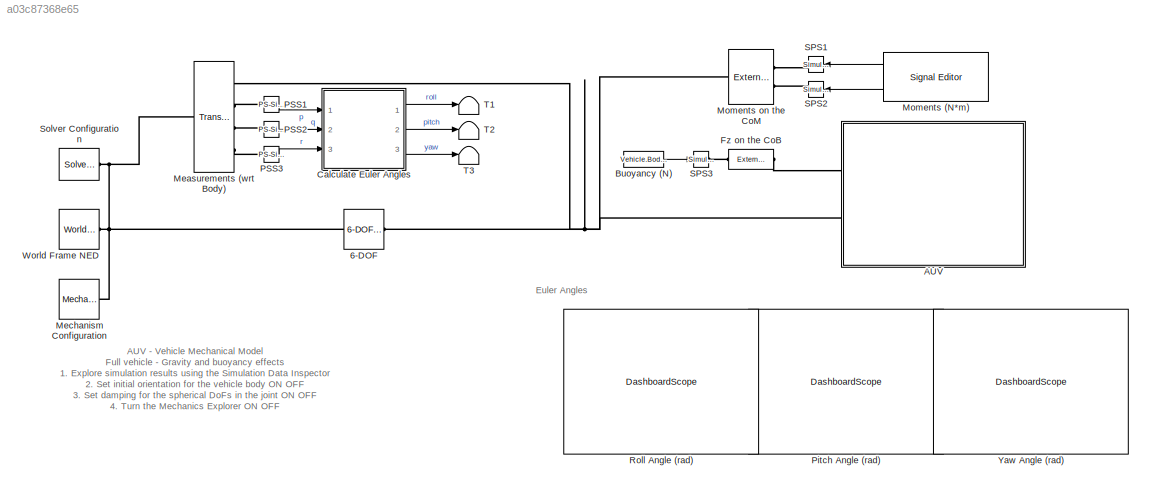
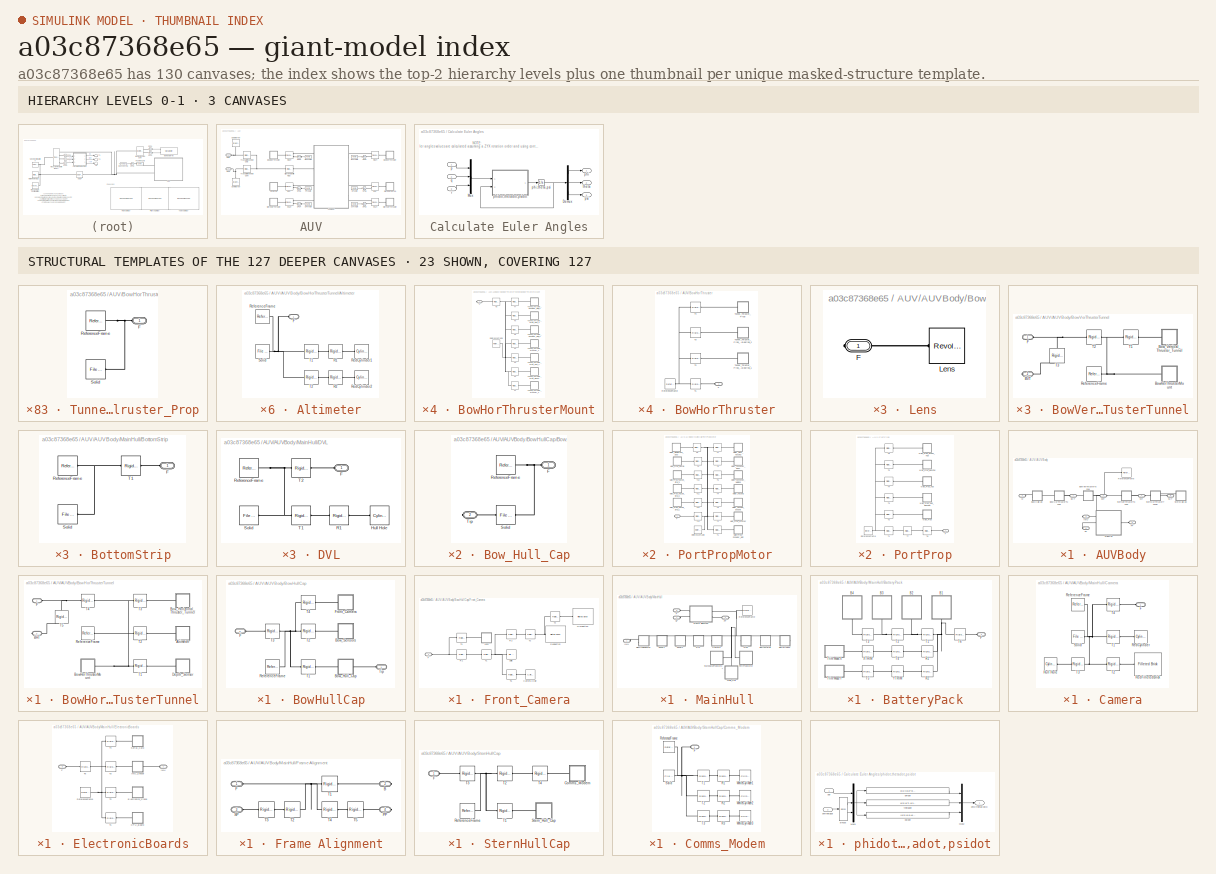
[diagram: thumbnail index - top-2 hierarchy levels (3 canvases) + 23 structural-template representatives of the remaining 127 canvases]
MODEL slx_a03c87368e65
KIND model
CONFIG AbsTol = auto
CONFIG EnableMultiTasking = on
CONFIG FixedStep = auto
CONFIG MaxStep = 0.01
CONFIG MinStep = auto
CONFIG PreLoadFcn = AUV_VehicleParameters;
CONFIG RelTol = 1e-3
CONFIG SampleTimeConstraint = Unconstrained
CONFIG Solver = ode23t
CONFIG SolverName = ode23t
CONFIG StartTime = 0.0
CONFIG StopTime = 30
WORKSPACE source: external: MATLAB File  (data not in archive)
BLOCK [Reference] 6-DOF  REF=sm_lib/Joints/6-DOF Joint
  AttributesFormatString = Damping: %<SphDampingCoefficient> %<SphDampingCoefficientUnits>\nInitial Condition: %<SphPositionTargetSpecify>
  Ports = [0, 0, 0, 0, 0, 1, 1]
  SourceBlock = sm_lib/Joints/6-DOF Joint
  SourceProductBaseCode = MS
  SourceType = 6-DOF Joint
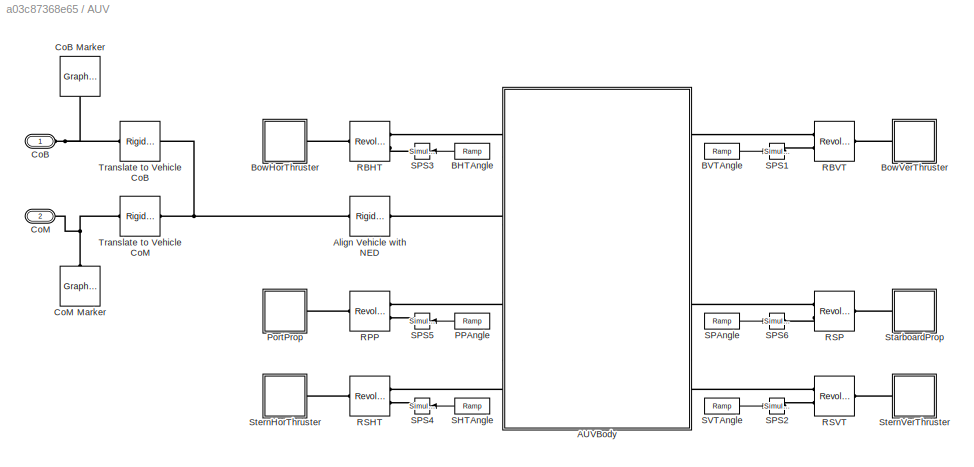
BLOCK [SubSystem] AUV
  Ports = [0, 0, 0, 0, 0, 2]
  RequestExecContextInheritance = off
BLOCK [SubSystem] AUV/AUVBody
  Ports = [0, 0, 0, 0, 0, 4, 4]
  RequestExecContextInheritance = off
BLOCK [PMIOPort] AUV/AUVBody/BHT
  Side = Left
BLOCK [PMIOPort] AUV/AUVBody/BVT
  Port = 2
  Side = Right
BLOCK [SubSystem] AUV/AUVBody/BowHorThrusterTunnel
  PortSchema = {"entries":[{"content":{"sides":[{"content":{"connectorIds":[]},"type":"ConnectorPlacement.EquallySpacedRectSide","uuid":"4ed08382-faad-44b6-b48b-55aec1852bc8"},{"content":{"connectorIds":["RConn1"],"side":"RIGHT"},"type":"ConnectorPlacement.EquallySpacedRectSide","uuid":"f82da02f-1c57-4ab6-ab88-6cf954e3e010"},{"content":{"connectorIds":["LConn1"],"side":"TOP"},"type":"ConnectorPlacement.EquallySp...<+247ch>
  Ports = [0, 0, 0, 0, 0, 1, 1]
  RequestExecContextInheritance = off
BLOCK [SubSystem] AUV/AUVBody/BowHorThrusterTunnel/Altimeter
  Ports = [0, 0, 0, 0, 0, 1]
  RequestExecContextInheritance = off
BLOCK [PMIOPort] AUV/AUVBody/BowHorThrusterTunnel/Altimeter/F
  Side = Left
BLOCK [Reference] AUV/AUVBody/BowHorThrusterTunnel/Altimeter/R1  REF=sm_lib/Frames and
Transforms/Rigid
Transform
  Ports = [0, 0, 0, 0, 0, 1, 1]
  SourceBlock = sm_lib/Frames and\nTransforms/Rigid\nTransform
  SourceProductBaseCode = MS
  SourceType = Rigid\nTransform
BLOCK [Reference] AUV/AUVBody/BowHorThrusterTunnel/Altimeter/R2  REF=sm_lib/Frames and
Transforms/Rigid
Transform
  Ports = [0, 0, 0, 0, 0, 1, 1]
  SourceBlock = sm_lib/Frames and\nTransforms/Rigid\nTransform
  SourceProductBaseCode = MS
  SourceType = Rigid\nTransform
BLOCK [Reference] AUV/AUVBody/BowHorThrusterTunnel/Altimeter/RedCylinder1  REF=sm_lib/Body Elements/Cylindrical Solid
  Ports = [0, 0, 0, 0, 0, 0, 1]
  SourceBlock = sm_lib/Body Elements/Cylindrical Solid
  SourceProductBaseCode = MS
  SourceType = Cylindrical Solid
BLOCK [Reference] AUV/AUVBody/BowHorThrusterTunnel/Altimeter/RedCylinder2  REF=sm_lib/Body Elements/Cylindrical Solid
  Ports = [0, 0, 0, 0, 0, 0, 1]
  SourceBlock = sm_lib/Body Elements/Cylindrical Solid
  SourceProductBaseCode = MS
  SourceType = Cylindrical Solid
BLOCK [Reference] AUV/AUVBody/BowHorThrusterTunnel/Altimeter/ReferenceFrame  REF=sm_lib/Frames and
Transforms/Reference
Frame
  Ports = [0, 0, 0, 0, 0, 0, 1]
  SourceBlock = sm_lib/Frames and\nTransforms/Reference\nFrame
  SourceProductBaseCode = MS
  SourceType = Reference\nFrame
BLOCK [Reference] AUV/AUVBody/BowHorThrusterTunnel/Altimeter/Solid  REF=sm_lib/Body Elements/File Solid
  Ports = [0, 0, 0, 0, 0, 0, 1]
  SourceBlock = sm_lib/Body Elements/File Solid
  SourceProductBaseCode = MS
  SourceType = File Solid
BLOCK [Reference] AUV/AUVBody/BowHorThrusterTunnel/Altimeter/T1  REF=sm_lib/Frames and
Transforms/Rigid
Transform
  Ports = [0, 0, 0, 0, 0, 1, 1]
  SourceBlock = sm_lib/Frames and\nTransforms/Rigid\nTransform
  SourceProductBaseCode = MS
  SourceType = Rigid\nTransform
BLOCK [Reference] AUV/AUVBody/BowHorThrusterTunnel/Altimeter/T2  REF=sm_lib/Frames and
Transforms/Rigid
Transform
  Ports = [0, 0, 0, 0, 0, 1, 1]
  SourceBlock = sm_lib/Frames and\nTransforms/Rigid\nTransform
  SourceProductBaseCode = MS
  SourceType = Rigid\nTransform
BLOCK [PMIOPort] AUV/AUVBody/BowHorThrusterTunnel/BHT
  Port = 2
  Side = Right
BLOCK [SubSystem] AUV/AUVBody/BowHorThrusterTunnel/BowHorThrusterMount
  Ports = [0, 0, 0, 0, 0, 0, 1]
  RequestExecContextInheritance = off
BLOCK [PMIOPort] AUV/AUVBody/BowHorThrusterTunnel/BowHorThrusterMount/F
  Side = Right
BLOCK [Reference] AUV/AUVBody/BowHorThrusterTunnel/BowHorThrusterMount/ReferenceFrame  REF=sm_lib/Frames and
Transforms/Reference
Frame
  Ports = [0, 0, 0, 0, 0, 0, 1]
  SourceBlock = sm_lib/Frames and\nTransforms/Reference\nFrame
  SourceProductBaseCode = MS
  SourceType = Reference\nFrame
BLOCK [Reference] AUV/AUVBody/BowHorThrusterTunnel/BowHorThrusterMount/T1  REF=sm_lib/Frames and
Transforms/Rigid
Transform
  Ports = [0, 0, 0, 0, 0, 1, 1]
  SourceBlock = sm_lib/Frames and\nTransforms/Rigid\nTransform
  SourceProductBaseCode = MS
  SourceType = Rigid\nTransform
BLOCK [Reference] AUV/AUVBody/BowHorThrusterTunnel/BowHorThrusterMount/T2  REF=sm_lib/Frames and
Transforms/Rigid
Transform
  Ports = [0, 0, 0, 0, 0, 1, 1]
  SourceBlock = sm_lib/Frames and\nTransforms/Rigid\nTransform
  SourceProductBaseCode = MS
  SourceType = Rigid\nTransform
BLOCK [Reference] AUV/AUVBody/BowHorThrusterTunnel/BowHorThrusterMount/T3  REF=sm_lib/Frames and
Transforms/Rigid
Transform
  Ports = [0, 0, 0, 0, 0, 1, 1]
  SourceBlock = sm_lib/Frames and\nTransforms/Rigid\nTransform
  SourceProductBaseCode = MS
  SourceType = Rigid\nTransform
BLOCK [Reference] AUV/AUVBody/BowHorThrusterTunnel/BowHorThrusterMount/T4  REF=sm_lib/Frames and
Transforms/Rigid
Transform
  Ports = [0, 0, 0, 0, 0, 1, 1]
  SourceBlock = sm_lib/Frames and\nTransforms/Rigid\nTransform
  SourceProductBaseCode = MS
  SourceType = Rigid\nTransform
BLOCK [Reference] AUV/AUVBody/BowHorThrusterTunnel/BowHorThrusterMount/T5  REF=sm_lib/Frames and
Transforms/Rigid
Transform
  Ports = [0, 0, 0, 0, 0, 1, 1]
  SourceBlock = sm_lib/Frames and\nTransforms/Rigid\nTransform
  SourceProductBaseCode = MS
  SourceType = Rigid\nTransform
BLOCK [Reference] AUV/AUVBody/BowHorThrusterTunnel/BowHorThrusterMount/T6  REF=sm_lib/Frames and
Transforms/Rigid
Transform
  Ports = [0, 0, 0, 0, 0, 1, 1]
  SourceBlock = sm_lib/Frames and\nTransforms/Rigid\nTransform
  SourceProductBaseCode = MS
  SourceType = Rigid\nTransform
BLOCK [Reference] AUV/AUVBody/BowHorThrusterTunnel/BowHorThrusterMount/T7  REF=sm_lib/Frames and
Transforms/Rigid
Transform
  Ports = [0, 0, 0, 0, 0, 1, 1]
  SourceBlock = sm_lib/Frames and\nTransforms/Rigid\nTransform
  SourceProductBaseCode = MS
  SourceType = Rigid\nTransform
BLOCK [Reference] AUV/AUVBody/BowHorThrusterTunnel/BowHorThrusterMount/T8  REF=sm_lib/Frames and
Transforms/Rigid
Transform
  Ports = [0, 0, 0, 0, 0, 1, 1]
  SourceBlock = sm_lib/Frames and\nTransforms/Rigid\nTransform
  SourceProductBaseCode = MS
  SourceType = Rigid\nTransform
BLOCK [SubSystem] AUV/AUVBody/BowHorThrusterTunnel/BowHorThrusterMount/Tunnel_Thruster_Prop_Hub_1
  Ports = [0, 0, 0, 0, 0, 1]
  RequestExecContextInheritance = off
BLOCK [PMIOPort] AUV/AUVBody/BowHorThrusterTunnel/BowHorThrusterMount/Tunnel_Thruster_Prop_Hub_1/F
  Side = Left
BLOCK [Reference] AUV/AUVBody/BowHorThrusterTunnel/BowHorThrusterMount/Tunnel_Thruster_Prop_Hub_1/ReferenceFrame  REF=sm_lib/Frames and
Transforms/Reference
Frame
  Ports = [0, 0, 0, 0, 0, 0, 1]
  SourceBlock = sm_lib/Frames and\nTransforms/Reference\nFrame
  SourceProductBaseCode = MS
  SourceType = Reference\nFrame
BLOCK [Reference] AUV/AUVBody/BowHorThrusterTunnel/BowHorThrusterMount/Tunnel_Thruster_Prop_Hub_1/Solid  REF=sm_lib/Body Elements/File Solid
  Ports = [0, 0, 0, 0, 0, 0, 1]
  SourceBlock = sm_lib/Body Elements/File Solid
  SourceProductBaseCode = MS
  SourceType = File Solid
BLOCK [SubSystem] AUV/AUVBody/BowHorThrusterTunnel/BowHorThrusterMount/Tunnel_Thruster_Prop_Hub_2
  Ports = [0, 0, 0, 0, 0, 1]
  RequestExecContextInheritance = off
BLOCK [PMIOPort] AUV/AUVBody/BowHorThrusterTunnel/BowHorThrusterMount/Tunnel_Thruster_Prop_Hub_2/F
  Side = Left
BLOCK [Reference] AUV/AUVBody/BowHorThrusterTunnel/BowHorThrusterMount/Tunnel_Thruster_Prop_Hub_2/ReferenceFrame  REF=sm_lib/Frames and
Transforms/Reference
Frame
  Ports = [0, 0, 0, 0, 0, 0, 1]
  SourceBlock = sm_lib/Frames and\nTransforms/Reference\nFrame
  SourceProductBaseCode = MS
  SourceType = Reference\nFrame
BLOCK [Reference] AUV/AUVBody/BowHorThrusterTunnel/BowHorThrusterMount/Tunnel_Thruster_Prop_Hub_2/Solid  REF=sm_lib/Body Elements/File Solid
  Ports = [0, 0, 0, 0, 0, 0, 1]
  SourceBlock = sm_lib/Body Elements/File Solid
  SourceProductBaseCode = MS
  SourceType = File Solid
BLOCK [SubSystem] AUV/AUVBody/BowHorThrusterTunnel/BowHorThrusterMount/Tunnel_Thruster_Prop_Mount
  Ports = [0, 0, 0, 0, 0, 1]
  RequestExecContextInheritance = off
BLOCK [PMIOPort] AUV/AUVBody/BowHorThrusterTunnel/BowHorThrusterMount/Tunnel_Thruster_Prop_Mount/F
  Side = Left
BLOCK [Reference] AUV/AUVBody/BowHorThrusterTunnel/BowHorThrusterMount/Tunnel_Thruster_Prop_Mount/ReferenceFrame  REF=sm_lib/Frames and
Transforms/Reference
Frame
  Ports = [0, 0, 0, 0, 0, 0, 1]
  SourceBlock = sm_lib/Frames and\nTransforms/Reference\nFrame
  SourceProductBaseCode = MS
  SourceType = Reference\nFrame
BLOCK [Reference] AUV/AUVBody/BowHorThrusterTunnel/BowHorThrusterMount/Tunnel_Thruster_Prop_Mount/Solid  REF=sm_lib/Body Elements/File Solid
  Ports = [0, 0, 0, 0, 0, 0, 1]
  SourceBlock = sm_lib/Body Elements/File Solid
  SourceProductBaseCode = MS
  SourceType = File Solid
BLOCK [SubSystem] AUV/AUVBody/BowHorThrusterTunnel/BowHorThrusterMount/Tunnel_Thruster_Shoulder_Bolt_1
  Ports = [0, 0, 0, 0, 0, 1]
  RequestExecContextInheritance = off
BLOCK [PMIOPort] AUV/AUVBody/BowHorThrusterTunnel/BowHorThrusterMount/Tunnel_Thruster_Shoulder_Bolt_1/F
  Side = Left
BLOCK [Reference] AUV/AUVBody/BowHorThrusterTunnel/BowHorThrusterMount/Tunnel_Thruster_Shoulder_Bolt_1/ReferenceFrame  REF=sm_lib/Frames and
Transforms/Reference
Frame
  Ports = [0, 0, 0, 0, 0, 0, 1]
  SourceBlock = sm_lib/Frames and\nTransforms/Reference\nFrame
  SourceProductBaseCode = MS
  SourceType = Reference\nFrame
BLOCK [Reference] AUV/AUVBody/BowHorThrusterTunnel/BowHorThrusterMount/Tunnel_Thruster_Shoulder_Bolt_1/Solid  REF=sm_lib/Body Elements/File Solid
  Ports = [0, 0, 0, 0, 0, 0, 1]
  SourceBlock = sm_lib/Body Elements/File Solid
  SourceProductBaseCode = MS
  SourceType = File Solid
BLOCK [SubSystem] AUV/AUVBody/BowHorThrusterTunnel/BowHorThrusterMount/Tunnel_Thruster_Shoulder_Bolt_2
  Ports = [0, 0, 0, 0, 0, 1]
  RequestExecContextInheritance = off
BLOCK [PMIOPort] AUV/AUVBody/BowHorThrusterTunnel/BowHorThrusterMount/Tunnel_Thruster_Shoulder_Bolt_2/F
  Side = Left
BLOCK [Reference] AUV/AUVBody/BowHorThrusterTunnel/BowHorThrusterMount/Tunnel_Thruster_Shoulder_Bolt_2/ReferenceFrame  REF=sm_lib/Frames and
Transforms/Reference
Frame
  Ports = [0, 0, 0, 0, 0, 0, 1]
  SourceBlock = sm_lib/Frames and\nTransforms/Reference\nFrame
  SourceProductBaseCode = MS
  SourceType = Reference\nFrame
BLOCK [Reference] AUV/AUVBody/BowHorThrusterTunnel/BowHorThrusterMount/Tunnel_Thruster_Shoulder_Bolt_2/Solid  REF=sm_lib/Body Elements/File Solid
  Ports = [0, 0, 0, 0, 0, 0, 1]
  SourceBlock = sm_lib/Body Elements/File Solid
  SourceProductBaseCode = MS
  SourceType = File Solid
BLOCK [SubSystem] AUV/AUVBody/BowHorThrusterTunnel/BowHorThrusterMount/Tunnel_Thruster_Washer_1
  Ports = [0, 0, 0, 0, 0, 1]
  RequestExecContextInheritance = off
BLOCK [PMIOPort] AUV/AUVBody/BowHorThrusterTunnel/BowHorThrusterMount/Tunnel_Thruster_Washer_1/F
  Side = Left
BLOCK [Reference] AUV/AUVBody/BowHorThrusterTunnel/BowHorThrusterMount/Tunnel_Thruster_Washer_1/ReferenceFrame  REF=sm_lib/Frames and
Transforms/Reference
Frame
  Ports = [0, 0, 0, 0, 0, 0, 1]
  SourceBlock = sm_lib/Frames and\nTransforms/Reference\nFrame
  SourceProductBaseCode = MS
  SourceType = Reference\nFrame
BLOCK [Reference] AUV/AUVBody/BowHorThrusterTunnel/BowHorThrusterMount/Tunnel_Thruster_Washer_1/Solid  REF=sm_lib/Body Elements/File Solid
  Ports = [0, 0, 0, 0, 0, 0, 1]
  SourceBlock = sm_lib/Body Elements/File Solid
  SourceProductBaseCode = MS
  SourceType = File Solid
BLOCK [SubSystem] AUV/AUVBody/BowHorThrusterTunnel/BowHorThrusterMount/Tunnel_Thruster_Washer_2
  Ports = [0, 0, 0, 0, 0, 1]
  RequestExecContextInheritance = off
BLOCK [PMIOPort] AUV/AUVBody/BowHorThrusterTunnel/BowHorThrusterMount/Tunnel_Thruster_Washer_2/F
  Side = Left
BLOCK [Reference] AUV/AUVBody/BowHorThrusterTunnel/BowHorThrusterMount/Tunnel_Thruster_Washer_2/ReferenceFrame  REF=sm_lib/Frames and
Transforms/Reference
Frame
  Ports = [0, 0, 0, 0, 0, 0, 1]
  SourceBlock = sm_lib/Frames and\nTransforms/Reference\nFrame
  SourceProductBaseCode = MS
  SourceType = Reference\nFrame
BLOCK [Reference] AUV/AUVBody/BowHorThrusterTunnel/BowHorThrusterMount/Tunnel_Thruster_Washer_2/Solid  REF=sm_lib/Body Elements/File Solid
  Ports = [0, 0, 0, 0, 0, 0, 1]
  SourceBlock = sm_lib/Body Elements/File Solid
  SourceProductBaseCode = MS
  SourceType = File Solid
BLOCK [SubSystem] AUV/AUVBody/BowHorThrusterTunnel/Bow_Horizontal_Thruster_Tunnel
  Ports = [0, 0, 0, 0, 0, 1]
  RequestExecContextInheritance = off
BLOCK [PMIOPort] AUV/AUVBody/BowHorThrusterTunnel/Bow_Horizontal_Thruster_Tunnel/F
  Side = Left
BLOCK [Reference] AUV/AUVBody/BowHorThrusterTunnel/Bow_Horizontal_Thruster_Tunnel/ReferenceFrame  REF=sm_lib/Frames and
Transforms/Reference
Frame
  Ports = [0, 0, 0, 0, 0, 0, 1]
  SourceBlock = sm_lib/Frames and\nTransforms/Reference\nFrame
  SourceProductBaseCode = MS
  SourceType = Reference\nFrame
BLOCK [Reference] AUV/AUVBody/BowHorThrusterTunnel/Bow_Horizontal_Thruster_Tunnel/Solid  REF=sm_lib/Body Elements/File Solid
  Ports = [0, 0, 0, 0, 0, 0, 1]
  SourceBlock = sm_lib/Body Elements/File Solid
  SourceProductBaseCode = MS
  SourceType = File Solid
BLOCK [SubSystem] AUV/AUVBody/BowHorThrusterTunnel/Depth_Sensor
  Ports = [0, 0, 0, 0, 0, 1]
  RequestExecContextInheritance = off
BLOCK [PMIOPort] AUV/AUVBody/BowHorThrusterTunnel/Depth_Sensor/F
  Side = Left
BLOCK [Reference] AUV/AUVBody/BowHorThrusterTunnel/Depth_Sensor/R1  REF=sm_lib/Frames and
Transforms/Rigid
Transform
  Ports = [0, 0, 0, 0, 0, 1, 1]
  SourceBlock = sm_lib/Frames and\nTransforms/Rigid\nTransform
  SourceProductBaseCode = MS
  SourceType = Rigid\nTransform
BLOCK [Reference] AUV/AUVBody/BowHorThrusterTunnel/Depth_Sensor/R2  REF=sm_lib/Frames and
Transforms/Rigid
Transform
  Ports = [0, 0, 0, 0, 0, 1, 1]
  SourceBlock = sm_lib/Frames and\nTransforms/Rigid\nTransform
  SourceProductBaseCode = MS
  SourceType = Rigid\nTransform
BLOCK [Reference] AUV/AUVBody/BowHorThrusterTunnel/Depth_Sensor/ReferenceFrame  REF=sm_lib/Frames and
Transforms/Reference
Frame
  Ports = [0, 0, 0, 0, 0, 0, 1]
  SourceBlock = sm_lib/Frames and\nTransforms/Reference\nFrame
  SourceProductBaseCode = MS
  SourceType = Reference\nFrame
BLOCK [Reference] AUV/AUVBody/BowHorThrusterTunnel/Depth_Sensor/Solid  REF=sm_lib/Body Elements/File Solid
  Ports = [0, 0, 0, 0, 0, 0, 1]
  SourceBlock = sm_lib/Body Elements/File Solid
  SourceProductBaseCode = MS
  SourceType = File Solid
BLOCK [Reference] AUV/AUVBody/BowHorThrusterTunnel/Depth_Sensor/T1  REF=sm_lib/Frames and
Transforms/Rigid
Transform
  Ports = [0, 0, 0, 0, 0, 1, 1]
  SourceBlock = sm_lib/Frames and\nTransforms/Rigid\nTransform
  SourceProductBaseCode = MS
  SourceType = Rigid\nTransform
BLOCK [Reference] AUV/AUVBody/BowHorThrusterTunnel/Depth_Sensor/T2  REF=sm_lib/Frames and
Transforms/Rigid
Transform
  Ports = [0, 0, 0, 0, 0, 1, 1]
  SourceBlock = sm_lib/Frames and\nTransforms/Rigid\nTransform
  SourceProductBaseCode = MS
  SourceType = Rigid\nTransform
BLOCK [Reference] AUV/AUVBody/BowHorThrusterTunnel/Depth_Sensor/WhiteCylinder1  REF=sm_lib/Body Elements/Cylindrical Solid
  Ports = [0, 0, 0, 0, 0, 0, 1]
  SourceBlock = sm_lib/Body Elements/Cylindrical Solid
  SourceProductBaseCode = MS
  SourceType = Cylindrical Solid
BLOCK [Reference] AUV/AUVBody/BowHorThrusterTunnel/Depth_Sensor/WhiteCylinder2  REF=sm_lib/Body Elements/Cylindrical Solid
  Ports = [0, 0, 0, 0, 0, 0, 1]
  SourceBlock = sm_lib/Body Elements/Cylindrical Solid
  SourceProductBaseCode = MS
  SourceType = Cylindrical Solid
BLOCK [PMIOPort] AUV/AUVBody/BowHorThrusterTunnel/F
  Side = Left
BLOCK [Reference] AUV/AUVBody/BowHorThrusterTunnel/ReferenceFrame  REF=sm_lib/Frames and
Transforms/Reference
Frame
  Ports = [0, 0, 0, 0, 0, 0, 1]
  SourceBlock = sm_lib/Frames and\nTransforms/Reference\nFrame
  SourceProductBaseCode = MS
  SourceType = Reference\nFrame
BLOCK [Reference] AUV/AUVBody/BowHorThrusterTunnel/T1  REF=sm_lib/Frames and
Transforms/Rigid
Transform
  Ports = [0, 0, 0, 0, 0, 1, 1]
  SourceBlock = sm_lib/Frames and\nTransforms/Rigid\nTransform
  SourceProductBaseCode = MS
  SourceType = Rigid\nTransform
BLOCK [Reference] AUV/AUVBody/BowHorThrusterTunnel/T2  REF=sm_lib/Frames and
Transforms/Rigid
Transform
  Ports = [0, 0, 0, 0, 0, 1, 1]
  SourceBlock = sm_lib/Frames and\nTransforms/Rigid\nTransform
  SourceProductBaseCode = MS
  SourceType = Rigid\nTransform
BLOCK [Reference] AUV/AUVBody/BowHorThrusterTunnel/T3  REF=sm_lib/Frames and
Transforms/Rigid
Transform
  Ports = [0, 0, 0, 0, 0, 1, 1]
  SourceBlock = sm_lib/Frames and\nTransforms/Rigid\nTransform
  SourceProductBaseCode = MS
  SourceType = Rigid\nTransform
BLOCK [Reference] AUV/AUVBody/BowHorThrusterTunnel/T4  REF=sm_lib/Frames and
Transforms/Rigid
Transform
  Ports = [0, 0, 0, 0, 0, 1, 1]
  SourceBlock = sm_lib/Frames and\nTransforms/Rigid\nTransform
  SourceProductBaseCode = MS
  SourceType = Rigid\nTransform
BLOCK [Reference] AUV/AUVBody/BowHorThrusterTunnel/T5  REF=sm_lib/Frames and
Transforms/Rigid
Transform
  NameLocation = left
  Ports = [0, 0, 0, 0, 0, 1, 1]
  SourceBlock = sm_lib/Frames and\nTransforms/Rigid\nTransform
  SourceProductBaseCode = MS
  SourceType = Rigid\nTransform
BLOCK [SubSystem] AUV/AUVBody/BowHullCap
  PortSchema = {"entries":[{"content":{"sides":[{"content":{"connectorIds":["LConn1"]},"type":"ConnectorPlacement.EquallySpacedRectSide","uuid":"ee174d83-7ec9-4f78-977a-5ac618f84910"},{"content":{"connectorIds":[],"side":"RIGHT"},"type":"ConnectorPlacement.EquallySpacedRectSide","uuid":"b1f8772f-a994-4bc2-984b-3dde78400d8f"},{"content":{"connectorIds":["LConn2"],"side":"TOP"},"type":"ConnectorPlacement.EquallySp...<+247ch>
  Ports = [0, 0, 0, 0, 0, 2]
  RequestExecContextInheritance = off
BLOCK [SubSystem] AUV/AUVBody/BowHullCap/Bow_Hull_Cap
  Ports = [0, 0, 0, 0, 0, 1, 1]
  RequestExecContextInheritance = off
BLOCK [PMIOPort] AUV/AUVBody/BowHullCap/Bow_Hull_Cap/F
  Side = Left
BLOCK [Reference] AUV/AUVBody/BowHullCap/Bow_Hull_Cap/ReferenceFrame  REF=sm_lib/Frames and
Transforms/Reference
Frame
  Ports = [0, 0, 0, 0, 0, 0, 1]
  SourceBlock = sm_lib/Frames and\nTransforms/Reference\nFrame
  SourceProductBaseCode = MS
  SourceType = Reference\nFrame
BLOCK [Reference] AUV/AUVBody/BowHullCap/Bow_Hull_Cap/Solid  REF=sm_lib/Body Elements/File Solid
  Ports = [0, 0, 0, 0, 0, 1, 1]
  SourceBlock = sm_lib/Body Elements/File Solid
  SourceProductBaseCode = MS
  SourceType = File Solid
BLOCK [PMIOPort] AUV/AUVBody/BowHullCap/Bow_Hull_Cap/Tip
  Port = 2
  Side = Right
BLOCK [SubSystem] AUV/AUVBody/BowHullCap/Bow_Sensors
  Ports = [0, 0, 0, 0, 0, 1]
  RequestExecContextInheritance = off
BLOCK [PMIOPort] AUV/AUVBody/BowHullCap/Bow_Sensors/F
  Side = Left
BLOCK [Reference] AUV/AUVBody/BowHullCap/Bow_Sensors/ReferenceFrame  REF=sm_lib/Frames and
Transforms/Reference
Frame
  Ports = [0, 0, 0, 0, 0, 0, 1]
  SourceBlock = sm_lib/Frames and\nTransforms/Reference\nFrame
  SourceProductBaseCode = MS
  SourceType = Reference\nFrame
BLOCK [Reference] AUV/AUVBody/BowHullCap/Bow_Sensors/Solid  REF=sm_lib/Body Elements/File Solid
  Ports = [0, 0, 0, 0, 0, 0, 1]
  SourceBlock = sm_lib/Body Elements/File Solid
  SourceProductBaseCode = MS
  SourceType = File Solid
BLOCK [PMIOPort] AUV/AUVBody/BowHullCap/F
  Port = 2
  Side = Left
BLOCK [SubSystem] AUV/AUVBody/BowHullCap/Front_Camera
  Ports = [0, 0, 0, 0, 0, 1]
  RequestExecContextInheritance = off
BLOCK [Reference] AUV/AUVBody/BowHullCap/Front_Camera/Camera Hole  REF=sm_lib/Body Elements/Cylindrical Solid
  Ports = [0, 0, 0, 0, 0, 0, 1]
  SourceBlock = sm_lib/Body Elements/Cylindrical Solid
  SourceProductBaseCode = MS
  SourceType = Cylindrical Solid
BLOCK [PMIOPort] AUV/AUVBody/BowHullCap/Front_Camera/F
  Side = Left
BLOCK [Reference] AUV/AUVBody/BowHullCap/Front_Camera/GrayButton  REF=AUVCustomPrimitives_Lib/Filleted Brick
  Ports = [0, 0, 0, 0, 0, 0, 1]
  SourceBlock = AUVCustomPrimitives_Lib/Filleted Brick
  SourceType = Filleted Brick
BLOCK [SubSystem] AUV/AUVBody/BowHullCap/Front_Camera/Lens
  Ports = [0, 0, 0, 0, 0, 0, 1]
  RequestExecContextInheritance = off
BLOCK [PMIOPort] AUV/AUVBody/BowHullCap/Front_Camera/Lens/F
  Side = Right
BLOCK [Reference] AUV/AUVBody/BowHullCap/Front_Camera/Lens/Lens  REF=sm_lib/Body Elements/Revolved Solid
  Ports = [0, 0, 0, 0, 0, 0, 1]
  SourceBlock = sm_lib/Body Elements/Revolved Solid
  SourceProductBaseCode = MS
  SourceType = Revolved Solid
BLOCK [Reference] AUV/AUVBody/BowHullCap/Front_Camera/R1  REF=sm_lib/Frames and
Transforms/Rigid
Transform
  Ports = [0, 0, 0, 0, 0, 1, 1]
  SourceBlock = sm_lib/Frames and\nTransforms/Rigid\nTransform
  SourceProductBaseCode = MS
  SourceType = Rigid\nTransform
BLOCK [Reference] AUV/AUVBody/BowHullCap/Front_Camera/R2  REF=sm_lib/Frames and
Transforms/Rigid
Transform
  Ports = [0, 0, 0, 0, 0, 1, 1]
  SourceBlock = sm_lib/Frames and\nTransforms/Rigid\nTransform
  SourceProductBaseCode = MS
  SourceType = Rigid\nTransform
BLOCK [Reference] AUV/AUVBody/BowHullCap/Front_Camera/RedButton  REF=AUVCustomPrimitives_Lib/Filleted Brick
  Ports = [0, 0, 0, 0, 0, 0, 1]
  SourceBlock = AUVCustomPrimitives_Lib/Filleted Brick
  SourceType = Filleted Brick
BLOCK [Reference] AUV/AUVBody/BowHullCap/Front_Camera/Solid  REF=sm_lib/Body Elements/File Solid
  Ports = [0, 0, 0, 0, 0, 0, 1]
  SourceBlock = sm_lib/Body Elements/File Solid
  SourceProductBaseCode = MS
  SourceType = File Solid
BLOCK [Reference] AUV/AUVBody/BowHullCap/Front_Camera/T1  REF=sm_lib/Frames and
Transforms/Rigid
Transform
  Ports = [0, 0, 0, 0, 0, 1, 1]
  SourceBlock = sm_lib/Frames and\nTransforms/Rigid\nTransform
  SourceProductBaseCode = MS
  SourceType = Rigid\nTransform
BLOCK [Reference] AUV/AUVBody/BowHullCap/Front_Camera/T2  REF=sm_lib/Frames and
Transforms/Rigid
Transform
  Ports = [0, 0, 0, 0, 0, 1, 1]
  SourceBlock = sm_lib/Frames and\nTransforms/Rigid\nTransform
  SourceProductBaseCode = MS
  SourceType = Rigid\nTransform
BLOCK [Reference] AUV/AUVBody/BowHullCap/Front_Camera/T3  REF=sm_lib/Frames and
Transforms/Rigid
Transform
  Ports = [0, 0, 0, 0, 0, 1, 1]
  SourceBlock = sm_lib/Frames and\nTransforms/Rigid\nTransform
  SourceProductBaseCode = MS
  SourceType = Rigid\nTransform
BLOCK [Reference] AUV/AUVBody/BowHullCap/Front_Camera/T4  REF=sm_lib/Frames and
Transforms/Rigid
Transform
  Ports = [0, 0, 0, 0, 0, 1, 1]
  SourceBlock = sm_lib/Frames and\nTransforms/Rigid\nTransform
  SourceProductBaseCode = MS
  SourceType = Rigid\nTransform
BLOCK [Reference] AUV/AUVBody/BowHullCap/Front_Camera/T5  REF=sm_lib/Frames and
Transforms/Rigid
Transform
  Ports = [0, 0, 0, 0, 0, 1, 1]
  SourceBlock = sm_lib/Frames and\nTransforms/Rigid\nTransform
  SourceProductBaseCode = MS
  SourceType = Rigid\nTransform
BLOCK [Reference] AUV/AUVBody/BowHullCap/ReferenceFrame  REF=sm_lib/Frames and
Transforms/Reference
Frame
  Ports = [0, 0, 0, 0, 0, 0, 1]
  SourceBlock = sm_lib/Frames and\nTransforms/Reference\nFrame
  SourceProductBaseCode = MS
  SourceType = Reference\nFrame
BLOCK [Reference] AUV/AUVBody/BowHullCap/T1  REF=sm_lib/Frames and
Transforms/Rigid
Transform
  Ports = [0, 0, 0, 0, 0, 1, 1]
  SourceBlock = sm_lib/Frames and\nTransforms/Rigid\nTransform
  SourceProductBaseCode = MS
  SourceType = Rigid\nTransform
BLOCK [Reference] AUV/AUVBody/BowHullCap/T2  REF=sm_lib/Frames and
Transforms/Rigid
Transform
  Ports = [0, 0, 0, 0, 0, 1, 1]
  SourceBlock = sm_lib/Frames and\nTransforms/Rigid\nTransform
  SourceProductBaseCode = MS
  SourceType = Rigid\nTransform
BLOCK [Reference] AUV/AUVBody/BowHullCap/T3  REF=sm_lib/Frames and
Transforms/Rigid
Transform
  Ports = [0, 0, 0, 0, 0, 1, 1]
  SourceBlock = sm_lib/Frames and\nTransforms/Rigid\nTransform
  SourceProductBaseCode = MS
  SourceType = Rigid\nTransform
BLOCK [Reference] AUV/AUVBody/BowHullCap/T4  REF=sm_lib/Frames and
Transforms/Rigid
Transform
  Ports = [0, 0, 0, 0, 0, 1, 1]
  SourceBlock = sm_lib/Frames and\nTransforms/Rigid\nTransform
  SourceProductBaseCode = MS
  SourceType = Rigid\nTransform
BLOCK [PMIOPort] AUV/AUVBody/BowHullCap/Tip
  Side = Left
BLOCK [SubSystem] AUV/AUVBody/BowVerThrusterTunnel
  PortSchema = {"entries":[{"content":{"sides":[{"content":{"connectorIds":[]},"type":"ConnectorPlacement.EquallySpacedRectSide","uuid":"1a213aad-fe79-4629-9576-af927b73c724"},{"content":{"connectorIds":["RConn1"],"side":"RIGHT"},"type":"ConnectorPlacement.EquallySpacedRectSide","uuid":"bc8c7819-b1a4-4404-9606-1fc6a621b846"},{"content":{"connectorIds":["LConn1"],"side":"TOP"},"type":"ConnectorPlacement.EquallySp...<+247ch>  <repeated x3 — deduplicated; at blocks: BowVerThrusterTunnel, SternHorThrusterTunnel, SternVerThrusterTunnel>
  Ports = [0, 0, 0, 0, 0, 1, 1]
  RequestExecContextInheritance = off
BLOCK [PMIOPort] AUV/AUVBody/BowVerThrusterTunnel/BVT
  Port = 2
  Side = Right
BLOCK [SubSystem] AUV/AUVBody/BowVerThrusterTunnel/BowVerThrusterMount
  Ports = [0, 0, 0, 0, 0, 1]
  RequestExecContextInheritance = off
BLOCK [PMIOPort] AUV/AUVBody/BowVerThrusterTunnel/BowVerThrusterMount/F
  Side = Left
BLOCK [Reference] AUV/AUVBody/BowVerThrusterTunnel/BowVerThrusterMount/ReferenceFrame  REF=sm_lib/Frames and
Transforms/Reference
Frame
  Ports = [0, 0, 0, 0, 0, 0, 1]
  SourceBlock = sm_lib/Frames and\nTransforms/Reference\nFrame
  SourceProductBaseCode = MS
  SourceType = Reference\nFrame
BLOCK [Reference] AUV/AUVBody/BowVerThrusterTunnel/BowVerThrusterMount/T1  REF=sm_lib/Frames and
Transforms/Rigid
Transform
  Ports = [0, 0, 0, 0, 0, 1, 1]
  SourceBlock = sm_lib/Frames and\nTransforms/Rigid\nTransform
  SourceProductBaseCode = MS
  SourceType = Rigid\nTransform
BLOCK [Reference] AUV/AUVBody/BowVerThrusterTunnel/BowVerThrusterMount/T2  REF=sm_lib/Frames and
Transforms/Rigid
Transform
  Ports = [0, 0, 0, 0, 0, 1, 1]
  SourceBlock = sm_lib/Frames and\nTransforms/Rigid\nTransform
  SourceProductBaseCode = MS
  SourceType = Rigid\nTransform
BLOCK [Reference] AUV/AUVBody/BowVerThrusterTunnel/BowVerThrusterMount/T3  REF=sm_lib/Frames and
Transforms/Rigid
Transform
  Ports = [0, 0, 0, 0, 0, 1, 1]
  SourceBlock = sm_lib/Frames and\nTransforms/Rigid\nTransform
  SourceProductBaseCode = MS
  SourceType = Rigid\nTransform
BLOCK [Reference] AUV/AUVBody/BowVerThrusterTunnel/BowVerThrusterMount/T4  REF=sm_lib/Frames and
Transforms/Rigid
Transform
  Ports = [0, 0, 0, 0, 0, 1, 1]
  SourceBlock = sm_lib/Frames and\nTransforms/Rigid\nTransform
  SourceProductBaseCode = MS
  SourceType = Rigid\nTransform
BLOCK [Reference] AUV/AUVBody/BowVerThrusterTunnel/BowVerThrusterMount/T5  REF=sm_lib/Frames and
Transforms/Rigid
Transform
  Ports = [0, 0, 0, 0, 0, 1, 1]
  SourceBlock = sm_lib/Frames and\nTransforms/Rigid\nTransform
  SourceProductBaseCode = MS
  SourceType = Rigid\nTransform
BLOCK [Reference] AUV/AUVBody/BowVerThrusterTunnel/BowVerThrusterMount/T6  REF=sm_lib/Frames and
Transforms/Rigid
Transform
  Ports = [0, 0, 0, 0, 0, 1, 1]
  SourceBlock = sm_lib/Frames and\nTransforms/Rigid\nTransform
  SourceProductBaseCode = MS
  SourceType = Rigid\nTransform
BLOCK [Reference] AUV/AUVBody/BowVerThrusterTunnel/BowVerThrusterMount/T7  REF=sm_lib/Frames and
Transforms/Rigid
Transform
  Ports = [0, 0, 0, 0, 0, 1, 1]
  SourceBlock = sm_lib/Frames and\nTransforms/Rigid\nTransform
  SourceProductBaseCode = MS
  SourceType = Rigid\nTransform
BLOCK [Reference] AUV/AUVBody/BowVerThrusterTunnel/BowVerThrusterMount/T8  REF=sm_lib/Frames and
Transforms/Rigid
Transform
  Ports = [0, 0, 0, 0, 0, 1, 1]
  SourceBlock = sm_lib/Frames and\nTransforms/Rigid\nTransform
  SourceProductBaseCode = MS
  SourceType = Rigid\nTransform
BLOCK [SubSystem] AUV/AUVBody/BowVerThrusterTunnel/BowVerThrusterMount/Tunnel_Thruster_Prop_Hub_1
  Ports = [0, 0, 0, 0, 0, 1]
  RequestExecContextInheritance = off
BLOCK [PMIOPort] AUV/AUVBody/BowVerThrusterTunnel/BowVerThrusterMount/Tunnel_Thruster_Prop_Hub_1/F
  Side = Left
BLOCK [Reference] AUV/AUVBody/BowVerThrusterTunnel/BowVerThrusterMount/Tunnel_Thruster_Prop_Hub_1/ReferenceFrame  REF=sm_lib/Frames and
Transforms/Reference
Frame
  Ports = [0, 0, 0, 0, 0, 0, 1]
  SourceBlock = sm_lib/Frames and\nTransforms/Reference\nFrame
  SourceProductBaseCode = MS
  SourceType = Reference\nFrame
BLOCK [Reference] AUV/AUVBody/BowVerThrusterTunnel/BowVerThrusterMount/Tunnel_Thruster_Prop_Hub_1/Solid  REF=sm_lib/Body Elements/File Solid
  Ports = [0, 0, 0, 0, 0, 0, 1]
  SourceBlock = sm_lib/Body Elements/File Solid
  SourceProductBaseCode = MS
  SourceType = File Solid
BLOCK [SubSystem] AUV/AUVBody/BowVerThrusterTunnel/BowVerThrusterMount/Tunnel_Thruster_Prop_Hub_2
  Ports = [0, 0, 0, 0, 0, 1]
  RequestExecContextInheritance = off
BLOCK [PMIOPort] AUV/AUVBody/BowVerThrusterTunnel/BowVerThrusterMount/Tunnel_Thruster_Prop_Hub_2/F
  Side = Left
BLOCK [Reference] AUV/AUVBody/BowVerThrusterTunnel/BowVerThrusterMount/Tunnel_Thruster_Prop_Hub_2/ReferenceFrame  REF=sm_lib/Frames and
Transforms/Reference
Frame
  Ports = [0, 0, 0, 0, 0, 0, 1]
  SourceBlock = sm_lib/Frames and\nTransforms/Reference\nFrame
  SourceProductBaseCode = MS
  SourceType = Reference\nFrame
BLOCK [Reference] AUV/AUVBody/BowVerThrusterTunnel/BowVerThrusterMount/Tunnel_Thruster_Prop_Hub_2/Solid  REF=sm_lib/Body Elements/File Solid
  Ports = [0, 0, 0, 0, 0, 0, 1]
  SourceBlock = sm_lib/Body Elements/File Solid
  SourceProductBaseCode = MS
  SourceType = File Solid
BLOCK [SubSystem] AUV/AUVBody/BowVerThrusterTunnel/BowVerThrusterMount/Tunnel_Thruster_Prop_Mount
  Ports = [0, 0, 0, 0, 0, 1]
  RequestExecContextInheritance = off
BLOCK [PMIOPort] AUV/AUVBody/BowVerThrusterTunnel/BowVerThrusterMount/Tunnel_Thruster_Prop_Mount/F
  Side = Left
BLOCK [Reference] AUV/AUVBody/BowVerThrusterTunnel/BowVerThrusterMount/Tunnel_Thruster_Prop_Mount/ReferenceFrame  REF=sm_lib/Frames and
Transforms/Reference
Frame
  Ports = [0, 0, 0, 0, 0, 0, 1]
  SourceBlock = sm_lib/Frames and\nTransforms/Reference\nFrame
  SourceProductBaseCode = MS
  SourceType = Reference\nFrame
BLOCK [Reference] AUV/AUVBody/BowVerThrusterTunnel/BowVerThrusterMount/Tunnel_Thruster_Prop_Mount/Solid  REF=sm_lib/Body Elements/File Solid
  Ports = [0, 0, 0, 0, 0, 0, 1]
  SourceBlock = sm_lib/Body Elements/File Solid
  SourceProductBaseCode = MS
  SourceType = File Solid
BLOCK [SubSystem] AUV/AUVBody/BowVerThrusterTunnel/BowVerThrusterMount/Tunnel_Thruster_Shoulder_Bolt_1
  Ports = [0, 0, 0, 0, 0, 1]
  RequestExecContextInheritance = off
BLOCK [PMIOPort] AUV/AUVBody/BowVerThrusterTunnel/BowVerThrusterMount/Tunnel_Thruster_Shoulder_Bolt_1/F
  Side = Left
BLOCK [Reference] AUV/AUVBody/BowVerThrusterTunnel/BowVerThrusterMount/Tunnel_Thruster_Shoulder_Bolt_1/ReferenceFrame  REF=sm_lib/Frames and
Transforms/Reference
Frame
  Ports = [0, 0, 0, 0, 0, 0, 1]
  SourceBlock = sm_lib/Frames and\nTransforms/Reference\nFrame
  SourceProductBaseCode = MS
  SourceType = Reference\nFrame
BLOCK [Reference] AUV/AUVBody/BowVerThrusterTunnel/BowVerThrusterMount/Tunnel_Thruster_Shoulder_Bolt_1/Solid  REF=sm_lib/Body Elements/File Solid
  Ports = [0, 0, 0, 0, 0, 0, 1]
  SourceBlock = sm_lib/Body Elements/File Solid
  SourceProductBaseCode = MS
  SourceType = File Solid
BLOCK [SubSystem] AUV/AUVBody/BowVerThrusterTunnel/BowVerThrusterMount/Tunnel_Thruster_Shoulder_Bolt_2
  Ports = [0, 0, 0, 0, 0, 1]
  RequestExecContextInheritance = off
BLOCK [PMIOPort] AUV/AUVBody/BowVerThrusterTunnel/BowVerThrusterMount/Tunnel_Thruster_Shoulder_Bolt_2/F
  Side = Left
BLOCK [Reference] AUV/AUVBody/BowVerThrusterTunnel/BowVerThrusterMount/Tunnel_Thruster_Shoulder_Bolt_2/ReferenceFrame  REF=sm_lib/Frames and
Transforms/Reference
Frame
  Ports = [0, 0, 0, 0, 0, 0, 1]
  SourceBlock = sm_lib/Frames and\nTransforms/Reference\nFrame
  SourceProductBaseCode = MS
  SourceType = Reference\nFrame
BLOCK [Reference] AUV/AUVBody/BowVerThrusterTunnel/BowVerThrusterMount/Tunnel_Thruster_Shoulder_Bolt_2/Solid  REF=sm_lib/Body Elements/File Solid
  Ports = [0, 0, 0, 0, 0, 0, 1]
  SourceBlock = sm_lib/Body Elements/File Solid
  SourceProductBaseCode = MS
  SourceType = File Solid
BLOCK [SubSystem] AUV/AUVBody/BowVerThrusterTunnel/BowVerThrusterMount/Tunnel_Thruster_Washer_1
  Ports = [0, 0, 0, 0, 0, 1]
  RequestExecContextInheritance = off
BLOCK [PMIOPort] AUV/AUVBody/BowVerThrusterTunnel/BowVerThrusterMount/Tunnel_Thruster_Washer_1/F
  Side = Left
BLOCK [Reference] AUV/AUVBody/BowVerThrusterTunnel/BowVerThrusterMount/Tunnel_Thruster_Washer_1/ReferenceFrame  REF=sm_lib/Frames and
Transforms/Reference
Frame
  Ports = [0, 0, 0, 0, 0, 0, 1]
  SourceBlock = sm_lib/Frames and\nTransforms/Reference\nFrame
  SourceProductBaseCode = MS
  SourceType = Reference\nFrame
BLOCK [Reference] AUV/AUVBody/BowVerThrusterTunnel/BowVerThrusterMount/Tunnel_Thruster_Washer_1/Solid  REF=sm_lib/Body Elements/File Solid
  Ports = [0, 0, 0, 0, 0, 0, 1]
  SourceBlock = sm_lib/Body Elements/File Solid
  SourceProductBaseCode = MS
  SourceType = File Solid
BLOCK [SubSystem] AUV/AUVBody/BowVerThrusterTunnel/BowVerThrusterMount/Tunnel_Thruster_Washer_2
  Ports = [0, 0, 0, 0, 0, 1]
  RequestExecContextInheritance = off
BLOCK [PMIOPort] AUV/AUVBody/BowVerThrusterTunnel/BowVerThrusterMount/Tunnel_Thruster_Washer_2/F
  Side = Left
BLOCK [Reference] AUV/AUVBody/BowVerThrusterTunnel/BowVerThrusterMount/Tunnel_Thruster_Washer_2/ReferenceFrame  REF=sm_lib/Frames and
Transforms/Reference
Frame
  Ports = [0, 0, 0, 0, 0, 0, 1]
  SourceBlock = sm_lib/Frames and\nTransforms/Reference\nFrame
  SourceProductBaseCode = MS
  SourceType = Reference\nFrame
BLOCK [Reference] AUV/AUVBody/BowVerThrusterTunnel/BowVerThrusterMount/Tunnel_Thruster_Washer_2/Solid  REF=sm_lib/Body Elements/File Solid
  Ports = [0, 0, 0, 0, 0, 0, 1]
  SourceBlock = sm_lib/Body Elements/File Solid
  SourceProductBaseCode = MS
  SourceType = File Solid
BLOCK [SubSystem] AUV/AUVBody/BowVerThrusterTunnel/Bow_Vertical_Thruster_Tunnel
  Ports = [0, 0, 0, 0, 0, 1]
  RequestExecContextInheritance = off
BLOCK [PMIOPort] AUV/AUVBody/BowVerThrusterTunnel/Bow_Vertical_Thruster_Tunnel/F
  Side = Left
BLOCK [Reference] AUV/AUVBody/BowVerThrusterTunnel/Bow_Vertical_Thruster_Tunnel/ReferenceFrame  REF=sm_lib/Frames and
Transforms/Reference
Frame
  Ports = [0, 0, 0, 0, 0, 0, 1]
  SourceBlock = sm_lib/Frames and\nTransforms/Reference\nFrame
  SourceProductBaseCode = MS
  SourceType = Reference\nFrame
BLOCK [Reference] AUV/AUVBody/BowVerThrusterTunnel/Bow_Vertical_Thruster_Tunnel/Solid  REF=sm_lib/Body Elements/File Solid
  Ports = [0, 0, 0, 0, 0, 0, 1]
  SourceBlock = sm_lib/Body Elements/File Solid
  SourceProductBaseCode = MS
  SourceType = File Solid
BLOCK [PMIOPort] AUV/AUVBody/BowVerThrusterTunnel/F
  Side = Left
BLOCK [Reference] AUV/AUVBody/BowVerThrusterTunnel/ReferenceFrame  REF=sm_lib/Frames and
Transforms/Reference
Frame
  Ports = [0, 0, 0, 0, 0, 0, 1]
  SourceBlock = sm_lib/Frames and\nTransforms/Reference\nFrame
  SourceProductBaseCode = MS
  SourceType = Reference\nFrame
BLOCK [Reference] AUV/AUVBody/BowVerThrusterTunnel/T1  REF=sm_lib/Frames and
Transforms/Rigid
Transform
  Ports = [0, 0, 0, 0, 0, 1, 1]
  SourceBlock = sm_lib/Frames and\nTransforms/Rigid\nTransform
  SourceProductBaseCode = MS
  SourceType = Rigid\nTransform
BLOCK [Reference] AUV/AUVBody/BowVerThrusterTunnel/T2  REF=sm_lib/Frames and
Transforms/Rigid
Transform
  Ports = [0, 0, 0, 0, 0, 1, 1]
  SourceBlock = sm_lib/Frames and\nTransforms/Rigid\nTransform
  SourceProductBaseCode = MS
  SourceType = Rigid\nTransform
BLOCK [Reference] AUV/AUVBody/BowVerThrusterTunnel/T3  REF=sm_lib/Frames and
Transforms/Rigid
Transform
  NameLocation = left
  Ports = [0, 0, 0, 0, 0, 1, 1]
  SourceBlock = sm_lib/Frames and\nTransforms/Rigid\nTransform
  SourceProductBaseCode = MS
  SourceType = Rigid\nTransform
BLOCK [PMIOPort] AUV/AUVBody/IMU
  Port = 4
  Side = Right
BLOCK [SubSystem] AUV/AUVBody/MainHull
  PortSchema = {"entries":[{"content":{"sides":[{"content":{"connectorIds":["LConn1","LConn2"]},"type":"ConnectorPlacement.EquallySpacedRectSide","uuid":"76cfb896-16da-4ec2-9221-4dfc6f13d712"},{"content":{"connectorIds":["RConn1"],"side":"RIGHT"},"type":"ConnectorPlacement.EquallySpacedRectSide","uuid":"9107ed06-22d1-41c2-9864-d0faf2c3be22"},{"content":{"connectorIds":["LConn3"],"side":"TOP"},"type":"ConnectorPl...<+264ch>
  Ports = [0, 0, 0, 0, 0, 3, 1]
  RequestExecContextInheritance = off
BLOCK [SubSystem] AUV/AUVBody/MainHull/BatteryPack
  PortSchema = {"entries":[{"content":{"sides":[{"content":{"connectorIds":[]},"type":"ConnectorPlacement.EquallySpacedRectSide","uuid":"9b8fdd88-1c7e-48be-9cfb-0481a6997d70"},{"content":{"connectorIds":[],"side":"RIGHT"},"type":"ConnectorPlacement.EquallySpacedRectSide","uuid":"09133262-ae09-4a08-942a-feb1f9e4bf66"},{"content":{"connectorIds":["LConn1"],"side":"TOP"},"type":"ConnectorPlacement.EquallySpacedRect...<+239ch>  <repeated x8 — deduplicated; at blocks: BatteryPack, BottomStrip, Camera, DVL, GPS, Main_Hull, Sonar1, Sonar2>
  Ports = [0, 0, 0, 0, 0, 1]
  RequestExecContextInheritance = off
BLOCK [SubSystem] AUV/AUVBody/MainHull/BatteryPack/B1
  NameLocation = right
  Ports = [0, 0, 0, 0, 0, 0, 1]
  RequestExecContextInheritance = off
BLOCK [PMIOPort] AUV/AUVBody/MainHull/BatteryPack/B1/CM
  Side = Right
BLOCK [Reference] AUV/AUVBody/MainHull/BatteryPack/B1/Green Connector  REF=sm_lib/Body Elements/Brick Solid
  Ports = [0, 0, 0, 0, 0, 0, 1]
  SourceBlock = sm_lib/Body Elements/Brick Solid
  SourceProductBaseCode = MS
  SourceType = Brick Solid
BLOCK [Reference] AUV/AUVBody/MainHull/BatteryPack/B1/Main Body  REF=sm_lib/Body Elements/Brick Solid
  Ports = [0, 0, 0, 0, 0, 0, 1]
  SourceBlock = sm_lib/Body Elements/Brick Solid
  SourceProductBaseCode = MS
  SourceType = Brick Solid
BLOCK [Reference] AUV/AUVBody/MainHull/BatteryPack/B1/R1  REF=sm_lib/Frames and
Transforms/Rigid
Transform
  NameLocation = right
  Ports = [0, 0, 0, 0, 0, 1, 1]
  SourceBlock = sm_lib/Frames and\nTransforms/Rigid\nTransform
  SourceProductBaseCode = MS
  SourceType = Rigid\nTransform
BLOCK [Reference] AUV/AUVBody/MainHull/BatteryPack/B1/Red Connector  REF=sm_lib/Body Elements/Brick Solid
  Ports = [0, 0, 0, 0, 0, 0, 1]
  SourceBlock = sm_lib/Body Elements/Brick Solid
  SourceProductBaseCode = MS
  SourceType = Brick Solid
BLOCK [Reference] AUV/AUVBody/MainHull/BatteryPack/B1/T1  REF=sm_lib/Frames and
Transforms/Rigid
Transform
  NameLocation = right
  Ports = [0, 0, 0, 0, 0, 1, 1]
  SourceBlock = sm_lib/Frames and\nTransforms/Rigid\nTransform
  SourceProductBaseCode = MS
  SourceType = Rigid\nTransform
BLOCK [Reference] AUV/AUVBody/MainHull/BatteryPack/B1/T2  REF=sm_lib/Frames and
Transforms/Rigid
Transform
  NameLocation = right
  Ports = [0, 0, 0, 0, 0, 1, 1]
  SourceBlock = sm_lib/Frames and\nTransforms/Rigid\nTransform
  SourceProductBaseCode = MS
  SourceType = Rigid\nTransform
BLOCK [Reference] AUV/AUVBody/MainHull/BatteryPack/B1/T3  REF=sm_lib/Frames and
Transforms/Rigid
Transform
  Ports = [0, 0, 0, 0, 0, 1, 1]
  SourceBlock = sm_lib/Frames and\nTransforms/Rigid\nTransform
  SourceProductBaseCode = MS
  SourceType = Rigid\nTransform
BLOCK [Reference] AUV/AUVBody/MainHull/BatteryPack/B1/Top Cap  REF=sm_lib/Body Elements/Brick Solid
  Ports = [0, 0, 0, 0, 0, 0, 1]
  SourceBlock = sm_lib/Body Elements/Brick Solid
  SourceProductBaseCode = MS
  SourceType = Brick Solid
BLOCK [SubSystem] AUV/AUVBody/MainHull/BatteryPack/B2
  NameLocation = right
  Ports = [0, 0, 0, 0, 0, 0, 1]
  RequestExecContextInheritance = off
BLOCK [PMIOPort] AUV/AUVBody/MainHull/BatteryPack/B2/CM
  Side = Right
BLOCK [Reference] AUV/AUVBody/MainHull/BatteryPack/B2/Green Connector  REF=sm_lib/Body Elements/Brick Solid
  Ports = [0, 0, 0, 0, 0, 0, 1]
  SourceBlock = sm_lib/Body Elements/Brick Solid
  SourceProductBaseCode = MS
  SourceType = Brick Solid
BLOCK [Reference] AUV/AUVBody/MainHull/BatteryPack/B2/Main Body  REF=sm_lib/Body Elements/Brick Solid
  Ports = [0, 0, 0, 0, 0, 0, 1]
  SourceBlock = sm_lib/Body Elements/Brick Solid
  SourceProductBaseCode = MS
  SourceType = Brick Solid
BLOCK [Reference] AUV/AUVBody/MainHull/BatteryPack/B2/R1  REF=sm_lib/Frames and
Transforms/Rigid
Transform
  NameLocation = right
  Ports = [0, 0, 0, 0, 0, 1, 1]
  SourceBlock = sm_lib/Frames and\nTransforms/Rigid\nTransform
  SourceProductBaseCode = MS
  SourceType = Rigid\nTransform
BLOCK [Reference] AUV/AUVBody/MainHull/BatteryPack/B2/Red Connector  REF=sm_lib/Body Elements/Brick Solid
  Ports = [0, 0, 0, 0, 0, 0, 1]
  SourceBlock = sm_lib/Body Elements/Brick Solid
  SourceProductBaseCode = MS
  SourceType = Brick Solid
BLOCK [Reference] AUV/AUVBody/MainHull/BatteryPack/B2/T1  REF=sm_lib/Frames and
Transforms/Rigid
Transform
  NameLocation = right
  Ports = [0, 0, 0, 0, 0, 1, 1]
  SourceBlock = sm_lib/Frames and\nTransforms/Rigid\nTransform
  SourceProductBaseCode = MS
  SourceType = Rigid\nTransform
BLOCK [Reference] AUV/AUVBody/MainHull/BatteryPack/B2/T2  REF=sm_lib/Frames and
Transforms/Rigid
Transform
  NameLocation = right
  Ports = [0, 0, 0, 0, 0, 1, 1]
  SourceBlock = sm_lib/Frames and\nTransforms/Rigid\nTransform
  SourceProductBaseCode = MS
  SourceType = Rigid\nTransform
BLOCK [Reference] AUV/AUVBody/MainHull/BatteryPack/B2/T3  REF=sm_lib/Frames and
Transforms/Rigid
Transform
  Ports = [0, 0, 0, 0, 0, 1, 1]
  SourceBlock = sm_lib/Frames and\nTransforms/Rigid\nTransform
  SourceProductBaseCode = MS
  SourceType = Rigid\nTransform
BLOCK [Reference] AUV/AUVBody/MainHull/BatteryPack/B2/Top Cap  REF=sm_lib/Body Elements/Brick Solid
  Ports = [0, 0, 0, 0, 0, 0, 1]
  SourceBlock = sm_lib/Body Elements/Brick Solid
  SourceProductBaseCode = MS
  SourceType = Brick Solid
BLOCK [SubSystem] AUV/AUVBody/MainHull/BatteryPack/B3
  NameLocation = right
  Ports = [0, 0, 0, 0, 0, 0, 1]
  RequestExecContextInheritance = off
BLOCK [PMIOPort] AUV/AUVBody/MainHull/BatteryPack/B3/CM
  Side = Right
BLOCK [Reference] AUV/AUVBody/MainHull/BatteryPack/B3/Green Connector  REF=sm_lib/Body Elements/Brick Solid
  Ports = [0, 0, 0, 0, 0, 0, 1]
  SourceBlock = sm_lib/Body Elements/Brick Solid
  SourceProductBaseCode = MS
  SourceType = Brick Solid
BLOCK [Reference] AUV/AUVBody/MainHull/BatteryPack/B3/Main Body  REF=sm_lib/Body Elements/Brick Solid
  Ports = [0, 0, 0, 0, 0, 0, 1]
  SourceBlock = sm_lib/Body Elements/Brick Solid
  SourceProductBaseCode = MS
  SourceType = Brick Solid
BLOCK [Reference] AUV/AUVBody/MainHull/BatteryPack/B3/R1  REF=sm_lib/Frames and
Transforms/Rigid
Transform
  NameLocation = right
  Ports = [0, 0, 0, 0, 0, 1, 1]
  SourceBlock = sm_lib/Frames and\nTransforms/Rigid\nTransform
  SourceProductBaseCode = MS
  SourceType = Rigid\nTransform
BLOCK [Reference] AUV/AUVBody/MainHull/BatteryPack/B3/Red Connector  REF=sm_lib/Body Elements/Brick Solid
  Ports = [0, 0, 0, 0, 0, 0, 1]
  SourceBlock = sm_lib/Body Elements/Brick Solid
  SourceProductBaseCode = MS
  SourceType = Brick Solid
BLOCK [Reference] AUV/AUVBody/MainHull/BatteryPack/B3/T1  REF=sm_lib/Frames and
Transforms/Rigid
Transform
  NameLocation = right
  Ports = [0, 0, 0, 0, 0, 1, 1]
  SourceBlock = sm_lib/Frames and\nTransforms/Rigid\nTransform
  SourceProductBaseCode = MS
  SourceType = Rigid\nTransform
BLOCK [Reference] AUV/AUVBody/MainHull/BatteryPack/B3/T2  REF=sm_lib/Frames and
Transforms/Rigid
Transform
  NameLocation = right
  Ports = [0, 0, 0, 0, 0, 1, 1]
  SourceBlock = sm_lib/Frames and\nTransforms/Rigid\nTransform
  SourceProductBaseCode = MS
  SourceType = Rigid\nTransform
BLOCK [Reference] AUV/AUVBody/MainHull/BatteryPack/B3/T3  REF=sm_lib/Frames and
Transforms/Rigid
Transform
  Ports = [0, 0, 0, 0, 0, 1, 1]
  SourceBlock = sm_lib/Frames and\nTransforms/Rigid\nTransform
  SourceProductBaseCode = MS
  SourceType = Rigid\nTransform
BLOCK [Reference] AUV/AUVBody/MainHull/BatteryPack/B3/Top Cap  REF=sm_lib/Body Elements/Brick Solid
  Ports = [0, 0, 0, 0, 0, 0, 1]
  SourceBlock = sm_lib/Body Elements/Brick Solid
  SourceProductBaseCode = MS
  SourceType = Brick Solid
BLOCK [SubSystem] AUV/AUVBody/MainHull/BatteryPack/B4
  NameLocation = right
  Ports = [0, 0, 0, 0, 0, 0, 1]
  RequestExecContextInheritance = off
BLOCK [PMIOPort] AUV/AUVBody/MainHull/BatteryPack/B4/CM
  Side = Right
BLOCK [Reference] AUV/AUVBody/MainHull/BatteryPack/B4/Green Connector  REF=sm_lib/Body Elements/Brick Solid
  Ports = [0, 0, 0, 0, 0, 0, 1]
  SourceBlock = sm_lib/Body Elements/Brick Solid
  SourceProductBaseCode = MS
  SourceType = Brick Solid
BLOCK [Reference] AUV/AUVBody/MainHull/BatteryPack/B4/Main Body  REF=sm_lib/Body Elements/Brick Solid
  Ports = [0, 0, 0, 0, 0, 0, 1]
  SourceBlock = sm_lib/Body Elements/Brick Solid
  SourceProductBaseCode = MS
  SourceType = Brick Solid
BLOCK [Reference] AUV/AUVBody/MainHull/BatteryPack/B4/R1  REF=sm_lib/Frames and
Transforms/Rigid
Transform
  NameLocation = right
  Ports = [0, 0, 0, 0, 0, 1, 1]
  SourceBlock = sm_lib/Frames and\nTransforms/Rigid\nTransform
  SourceProductBaseCode = MS
  SourceType = Rigid\nTransform
BLOCK [Reference] AUV/AUVBody/MainHull/BatteryPack/B4/Red Connector  REF=sm_lib/Body Elements/Brick Solid
  Ports = [0, 0, 0, 0, 0, 0, 1]
  SourceBlock = sm_lib/Body Elements/Brick Solid
  SourceProductBaseCode = MS
  SourceType = Brick Solid
BLOCK [Reference] AUV/AUVBody/MainHull/BatteryPack/B4/T1  REF=sm_lib/Frames and
Transforms/Rigid
Transform
  NameLocation = right
  Ports = [0, 0, 0, 0, 0, 1, 1]
  SourceBlock = sm_lib/Frames and\nTransforms/Rigid\nTransform
  SourceProductBaseCode = MS
  SourceType = Rigid\nTransform
BLOCK [Reference] AUV/AUVBody/MainHull/BatteryPack/B4/T2  REF=sm_lib/Frames and
Transforms/Rigid
Transform
  NameLocation = right
  Ports = [0, 0, 0, 0, 0, 1, 1]
  SourceBlock = sm_lib/Frames and\nTransforms/Rigid\nTransform
  SourceProductBaseCode = MS
  SourceType = Rigid\nTransform
BLOCK [Reference] AUV/AUVBody/MainHull/BatteryPack/B4/T3  REF=sm_lib/Frames and
Transforms/Rigid
Transform
  Ports = [0, 0, 0, 0, 0, 1, 1]
  SourceBlock = sm_lib/Frames and\nTransforms/Rigid\nTransform
  SourceProductBaseCode = MS
  SourceType = Rigid\nTransform
BLOCK [Reference] AUV/AUVBody/MainHull/BatteryPack/B4/Top Cap  REF=sm_lib/Body Elements/Brick Solid
  Ports = [0, 0, 0, 0, 0, 0, 1]
  SourceBlock = sm_lib/Body Elements/Brick Solid
  SourceProductBaseCode = MS
  SourceType = Brick Solid
BLOCK [PMIOPort] AUV/AUVBody/MainHull/BatteryPack/F
  Side = Left
BLOCK [Reference] AUV/AUVBody/MainHull/BatteryPack/R1  REF=sm_lib/Frames and
Transforms/Rigid
Transform
  Ports = [0, 0, 0, 0, 0, 1, 1]
  SourceBlock = sm_lib/Frames and\nTransforms/Rigid\nTransform
  SourceProductBaseCode = MS
  SourceType = Rigid\nTransform
BLOCK [Reference] AUV/AUVBody/MainHull/BatteryPack/R2  REF=sm_lib/Frames and
Transforms/Rigid
Transform
  Ports = [0, 0, 0, 0, 0, 1, 1]
  SourceBlock = sm_lib/Frames and\nTransforms/Rigid\nTransform
  SourceProductBaseCode = MS
  SourceType = Rigid\nTransform
BLOCK [Reference] AUV/AUVBody/MainHull/BatteryPack/T1  REF=sm_lib/Frames and
Transforms/Rigid
Transform
  Ports = [0, 0, 0, 0, 0, 1, 1]
  SourceBlock = sm_lib/Frames and\nTransforms/Rigid\nTransform
  SourceProductBaseCode = MS
  SourceType = Rigid\nTransform
BLOCK [Reference] AUV/AUVBody/MainHull/BatteryPack/T2  REF=sm_lib/Frames and
Transforms/Rigid
Transform
  Ports = [0, 0, 0, 0, 0, 1, 1]
  SourceBlock = sm_lib/Frames and\nTransforms/Rigid\nTransform
  SourceProductBaseCode = MS
  SourceType = Rigid\nTransform
BLOCK [Reference] AUV/AUVBody/MainHull/BatteryPack/T3  REF=sm_lib/Frames and
Transforms/Rigid
Transform
  Ports = [0, 0, 0, 0, 0, 1, 1]
  SourceBlock = sm_lib/Frames and\nTransforms/Rigid\nTransform
  SourceProductBaseCode = MS
  SourceType = Rigid\nTransform
BLOCK [Reference] AUV/AUVBody/MainHull/BatteryPack/T4  REF=sm_lib/Frames and
Transforms/Rigid
Transform
  Ports = [0, 0, 0, 0, 0, 1, 1]
  SourceBlock = sm_lib/Frames and\nTransforms/Rigid\nTransform
  SourceProductBaseCode = MS
  SourceType = Rigid\nTransform
BLOCK [Reference] AUV/AUVBody/MainHull/BatteryPack/T5  REF=sm_lib/Frames and
Transforms/Rigid
Transform
  Ports = [0, 0, 0, 0, 0, 1, 1]
  SourceBlock = sm_lib/Frames and\nTransforms/Rigid\nTransform
  SourceProductBaseCode = MS
  SourceType = Rigid\nTransform
BLOCK [Reference] AUV/AUVBody/MainHull/BatteryPack/T6  REF=sm_lib/Frames and
Transforms/Rigid
Transform
  Ports = [0, 0, 0, 0, 0, 1, 1]
  SourceBlock = sm_lib/Frames and\nTransforms/Rigid\nTransform
  SourceProductBaseCode = MS
  SourceType = Rigid\nTransform
BLOCK [SubSystem] AUV/AUVBody/MainHull/BatteryPack/Trim Mass X
  Ports = [0, 0, 0, 0, 0, 0, 1]
  RequestExecContextInheritance = off
BLOCK [Reference] AUV/AUVBody/MainHull/BatteryPack/Trim Mass X/Extrusion  REF=sm_lib/Body Elements/Extruded Solid
  Ports = [0, 0, 0, 0, 0, 0, 1]
  SourceBlock = sm_lib/Body Elements/Extruded Solid
  SourceProductBaseCode = MS
  SourceType = Extruded Solid
BLOCK [PMIOPort] AUV/AUVBody/MainHull/BatteryPack/Trim Mass X/F
  Side = Right
BLOCK [SubSystem] AUV/AUVBody/MainHull/BatteryPack/Trim Mass Y
  Ports = [0, 0, 0, 0, 0, 0, 1]
  RequestExecContextInheritance = off
BLOCK [Reference] AUV/AUVBody/MainHull/BatteryPack/Trim Mass Y/Extrusion  REF=sm_lib/Body Elements/Extruded Solid
  Ports = [0, 0, 0, 0, 0, 0, 1]
  SourceBlock = sm_lib/Body Elements/Extruded Solid
  SourceProductBaseCode = MS
  SourceType = Extruded Solid
BLOCK [PMIOPort] AUV/AUVBody/MainHull/BatteryPack/Trim Mass Y/F
  Side = Right
BLOCK [Reference] AUV/AUVBody/MainHull/BatteryPack/XTRIM  REF=sm_lib/Frames and
Transforms/Rigid
Transform
  Ports = [0, 0, 0, 0, 0, 1, 1]
  SourceBlock = sm_lib/Frames and\nTransforms/Rigid\nTransform
  SourceProductBaseCode = MS
  SourceType = Rigid\nTransform
BLOCK [Reference] AUV/AUVBody/MainHull/BatteryPack/YTRIM  REF=sm_lib/Frames and
Transforms/Rigid
Transform
  Ports = [0, 0, 0, 0, 0, 1, 1]
  SourceBlock = sm_lib/Frames and\nTransforms/Rigid\nTransform
  SourceProductBaseCode = MS
  SourceType = Rigid\nTransform
BLOCK [SubSystem] AUV/AUVBody/MainHull/BottomStrip
  Ports = [0, 0, 0, 0, 0, 1]
  RequestExecContextInheritance = off
BLOCK [PMIOPort] AUV/AUVBody/MainHull/BottomStrip/F
  Side = Left
BLOCK [Reference] AUV/AUVBody/MainHull/BottomStrip/ReferenceFrame  REF=sm_lib/Frames and
Transforms/Reference
Frame
  Ports = [0, 0, 0, 0, 0, 0, 1]
  SourceBlock = sm_lib/Frames and\nTransforms/Reference\nFrame
  SourceProductBaseCode = MS
  SourceType = Reference\nFrame
BLOCK [Reference] AUV/AUVBody/MainHull/BottomStrip/Solid  REF=sm_lib/Body Elements/File Solid
  Ports = [0, 0, 0, 0, 0, 0, 1]
  SourceBlock = sm_lib/Body Elements/File Solid
  SourceProductBaseCode = MS
  SourceType = File Solid
BLOCK [Reference] AUV/AUVBody/MainHull/BottomStrip/T1  REF=sm_lib/Frames and
Transforms/Rigid
Transform
  Ports = [0, 0, 0, 0, 0, 1, 1]
  SourceBlock = sm_lib/Frames and\nTransforms/Rigid\nTransform
  SourceProductBaseCode = MS
  SourceType = Rigid\nTransform
BLOCK [SubSystem] AUV/AUVBody/MainHull/Camera
  Ports = [0, 0, 0, 0, 0, 1]
  RequestExecContextInheritance = off
BLOCK [Reference] AUV/AUVBody/MainHull/Camera/ RedCylinder  REF=sm_lib/Body Elements/Cylindrical Solid
  Ports = [0, 0, 0, 0, 0, 0, 1]
  SourceBlock = sm_lib/Body Elements/Cylindrical Solid
  SourceProductBaseCode = MS
  SourceType = Cylindrical Solid
BLOCK [PMIOPort] AUV/AUVBody/MainHull/Camera/F
  Side = Left
BLOCK [Reference] AUV/AUVBody/MainHull/Camera/Hull Hole  REF=sm_lib/Body Elements/Cylindrical Solid
  Ports = [0, 0, 0, 0, 0, 0, 1]
  SourceBlock = sm_lib/Body Elements/Cylindrical Solid
  SourceProductBaseCode = MS
  SourceType = Cylindrical Solid
BLOCK [Reference] AUV/AUVBody/MainHull/Camera/RedFilletedBrick  REF=AUVCustomPrimitives_Lib/Filleted Brick
  Ports = [0, 0, 0, 0, 0, 0, 1]
  SourceBlock = AUVCustomPrimitives_Lib/Filleted Brick
  SourceType = Filleted Brick
BLOCK [Reference] AUV/AUVBody/MainHull/Camera/ReferenceFrame  REF=sm_lib/Frames and
Transforms/Reference
Frame
  Ports = [0, 0, 0, 0, 0, 0, 1]
  SourceBlock = sm_lib/Frames and\nTransforms/Reference\nFrame
  SourceProductBaseCode = MS
  SourceType = Reference\nFrame
BLOCK [Reference] AUV/AUVBody/MainHull/Camera/Solid  REF=sm_lib/Body Elements/File Solid
  Ports = [0, 0, 0, 0, 0, 0, 1]
  SourceBlock = sm_lib/Body Elements/File Solid
  SourceProductBaseCode = MS
  SourceType = File Solid
BLOCK [Reference] AUV/AUVBody/MainHull/Camera/T1  REF=sm_lib/Frames and
Transforms/Rigid
Transform
  Ports = [0, 0, 0, 0, 0, 1, 1]
  SourceBlock = sm_lib/Frames and\nTransforms/Rigid\nTransform
  SourceProductBaseCode = MS
  SourceType = Rigid\nTransform
BLOCK [Reference] AUV/AUVBody/MainHull/Camera/T2  REF=sm_lib/Frames and
Transforms/Rigid
Transform
  Ports = [0, 0, 0, 0, 0, 1, 1]
  SourceBlock = sm_lib/Frames and\nTransforms/Rigid\nTransform
  SourceProductBaseCode = MS
  SourceType = Rigid\nTransform
BLOCK [Reference] AUV/AUVBody/MainHull/Camera/T3  REF=sm_lib/Frames and
Transforms/Rigid
Transform
  Ports = [0, 0, 0, 0, 0, 1, 1]
  SourceBlock = sm_lib/Frames and\nTransforms/Rigid\nTransform
  SourceProductBaseCode = MS
  SourceType = Rigid\nTransform
BLOCK [Reference] AUV/AUVBody/MainHull/Camera/T4  REF=sm_lib/Frames and
Transforms/Rigid
Transform
  Ports = [0, 0, 0, 0, 0, 1, 1]
  SourceBlock = sm_lib/Frames and\nTransforms/Rigid\nTransform
  SourceProductBaseCode = MS
  SourceType = Rigid\nTransform
BLOCK [SubSystem] AUV/AUVBody/MainHull/DVL
  Ports = [0, 0, 0, 0, 0, 1]
  RequestExecContextInheritance = off
BLOCK [PMIOPort] AUV/AUVBody/MainHull/DVL/F
  Side = Left
BLOCK [Reference] AUV/AUVBody/MainHull/DVL/Hull Hole  REF=sm_lib/Body Elements/Cylindrical Solid
  Ports = [0, 0, 0, 0, 0, 0, 1]
  SourceBlock = sm_lib/Body Elements/Cylindrical Solid
  SourceProductBaseCode = MS
  SourceType = Cylindrical Solid
BLOCK [Reference] AUV/AUVBody/MainHull/DVL/R1  REF=sm_lib/Frames and
Transforms/Rigid
Transform
  Ports = [0, 0, 0, 0, 0, 1, 1]
  SourceBlock = sm_lib/Frames and\nTransforms/Rigid\nTransform
  SourceProductBaseCode = MS
  SourceType = Rigid\nTransform
BLOCK [Reference] AUV/AUVBody/MainHull/DVL/ReferenceFrame  REF=sm_lib/Frames and
Transforms/Reference
Frame
  Ports = [0, 0, 0, 0, 0, 0, 1]
  SourceBlock = sm_lib/Frames and\nTransforms/Reference\nFrame
  SourceProductBaseCode = MS
  SourceType = Reference\nFrame
BLOCK [Reference] AUV/AUVBody/MainHull/DVL/Solid  REF=sm_lib/Body Elements/File Solid
  Ports = [0, 0, 0, 0, 0, 0, 1]
  SourceBlock = sm_lib/Body Elements/File Solid
  SourceProductBaseCode = MS
  SourceType = File Solid
BLOCK [Reference] AUV/AUVBody/MainHull/DVL/T1  REF=sm_lib/Frames and
Transforms/Rigid
Transform
  Ports = [0, 0, 0, 0, 0, 1, 1]
  SourceBlock = sm_lib/Frames and\nTransforms/Rigid\nTransform
  SourceProductBaseCode = MS
  SourceType = Rigid\nTransform
BLOCK [Reference] AUV/AUVBody/MainHull/DVL/T2  REF=sm_lib/Frames and
Transforms/Rigid
Transform
  Ports = [0, 0, 0, 0, 0, 1, 1]
  SourceBlock = sm_lib/Frames and\nTransforms/Rigid\nTransform
  SourceProductBaseCode = MS
  SourceType = Rigid\nTransform
BLOCK [SubSystem] AUV/AUVBody/MainHull/ElectronicBoards
  PortSchema = {"entries":[{"content":{"sides":[{"content":{"connectorIds":["LConn1"]},"type":"ConnectorPlacement.EquallySpacedRectSide","uuid":"ee174d83-7ec9-4f78-977a-5ac618f84910"},{"content":{"connectorIds":[],"side":"RIGHT"},"type":"ConnectorPlacement.EquallySpacedRectSide","uuid":"b1f8772f-a994-4bc2-984b-3dde78400d8f"},{"content":{"connectorIds":["LConn2"],"side":"TOP"},"type":"ConnectorPlacement.EquallySp...<+247ch>
  Ports = [0, 0, 0, 0, 0, 2]
  RequestExecContextInheritance = off
BLOCK [SubSystem] AUV/AUVBody/MainHull/ElectronicBoards/CPU_Board
  Ports = [0, 0, 0, 0, 0, 1]
  RequestExecContextInheritance = off
BLOCK [PMIOPort] AUV/AUVBody/MainHull/ElectronicBoards/CPU_Board/F
  Side = Left
BLOCK [Reference] AUV/AUVBody/MainHull/ElectronicBoards/CPU_Board/ReferenceFrame  REF=sm_lib/Frames and
Transforms/Reference
Frame
  Ports = [0, 0, 0, 0, 0, 0, 1]
  SourceBlock = sm_lib/Frames and\nTransforms/Reference\nFrame
  SourceProductBaseCode = MS
  SourceType = Reference\nFrame
BLOCK [Reference] AUV/AUVBody/MainHull/ElectronicBoards/CPU_Board/Solid  REF=sm_lib/Body Elements/File Solid
  Ports = [0, 0, 0, 0, 0, 0, 1]
  SourceBlock = sm_lib/Body Elements/File Solid
  SourceProductBaseCode = MS
  SourceType = File Solid
BLOCK [SubSystem] AUV/AUVBody/MainHull/ElectronicBoards/Electronics_Stand
  Ports = [0, 0, 0, 0, 0, 1]
  RequestExecContextInheritance = off
BLOCK [PMIOPort] AUV/AUVBody/MainHull/ElectronicBoards/Electronics_Stand/F
  Side = Left
BLOCK [Reference] AUV/AUVBody/MainHull/ElectronicBoards/Electronics_Stand/ReferenceFrame  REF=sm_lib/Frames and
Transforms/Reference
Frame
  Ports = [0, 0, 0, 0, 0, 0, 1]
  SourceBlock = sm_lib/Frames and\nTransforms/Reference\nFrame
  SourceProductBaseCode = MS
  SourceType = Reference\nFrame
BLOCK [Reference] AUV/AUVBody/MainHull/ElectronicBoards/Electronics_Stand/Solid  REF=sm_lib/Body Elements/File Solid
  Ports = [0, 0, 0, 0, 0, 0, 1]
  SourceBlock = sm_lib/Body Elements/File Solid
  SourceProductBaseCode = MS
  SourceType = File Solid
BLOCK [PMIOPort] AUV/AUVBody/MainHull/ElectronicBoards/F
  Port = 2
  Side = Left
BLOCK [PMIOPort] AUV/AUVBody/MainHull/ElectronicBoards/IMU
  Side = Left
BLOCK [SubSystem] AUV/AUVBody/MainHull/ElectronicBoards/IMU_Sensor
  Ports = [0, 0, 0, 0, 0, 1, 1]
  RequestExecContextInheritance = off
BLOCK [PMIOPort] AUV/AUVBody/MainHull/ElectronicBoards/IMU_Sensor/F
  Side = Left
BLOCK [PMIOPort] AUV/AUVBody/MainHull/ElectronicBoards/IMU_Sensor/IMU
  Port = 2
  Side = Right
BLOCK [Reference] AUV/AUVBody/MainHull/ElectronicBoards/IMU_Sensor/ReferenceFrame  REF=sm_lib/Frames and
Transforms/Reference
Frame
  Ports = [0, 0, 0, 0, 0, 0, 1]
  SourceBlock = sm_lib/Frames and\nTransforms/Reference\nFrame
  SourceProductBaseCode = MS
  SourceType = Reference\nFrame
BLOCK [Reference] AUV/AUVBody/MainHull/ElectronicBoards/IMU_Sensor/Solid  REF=sm_lib/Body Elements/File Solid
  Ports = [0, 0, 0, 0, 0, 1, 1]
  SourceBlock = sm_lib/Body Elements/File Solid
  SourceProductBaseCode = MS
  SourceType = File Solid
BLOCK [Reference] AUV/AUVBody/MainHull/ElectronicBoards/ReferenceFrame  REF=sm_lib/Frames and
Transforms/Reference
Frame
  Ports = [0, 0, 0, 0, 0, 0, 1]
  SourceBlock = sm_lib/Frames and\nTransforms/Reference\nFrame
  SourceProductBaseCode = MS
  SourceType = Reference\nFrame
BLOCK [SubSystem] AUV/AUVBody/MainHull/ElectronicBoards/Serial_Card
  Ports = [0, 0, 0, 0, 0, 1]
  RequestExecContextInheritance = off
BLOCK [PMIOPort] AUV/AUVBody/MainHull/ElectronicBoards/Serial_Card/F
  Side = Left
BLOCK [Reference] AUV/AUVBody/MainHull/ElectronicBoards/Serial_Card/ReferenceFrame  REF=sm_lib/Frames and
Transforms/Reference
Frame
  Ports = [0, 0, 0, 0, 0, 0, 1]
  SourceBlock = sm_lib/Frames and\nTransforms/Reference\nFrame
  SourceProductBaseCode = MS
  SourceType = Reference\nFrame
BLOCK [Reference] AUV/AUVBody/MainHull/ElectronicBoards/Serial_Card/Solid  REF=sm_lib/Body Elements/File Solid
  Ports = [0, 0, 0, 0, 0, 0, 1]
  SourceBlock = sm_lib/Body Elements/File Solid
  SourceProductBaseCode = MS
  SourceType = File Solid
BLOCK [Reference] AUV/AUVBody/MainHull/ElectronicBoards/T1  REF=sm_lib/Frames and
Transforms/Rigid
Transform
  Ports = [0, 0, 0, 0, 0, 1, 1]
  SourceBlock = sm_lib/Frames and\nTransforms/Rigid\nTransform
  SourceProductBaseCode = MS
  SourceType = Rigid\nTransform
BLOCK [Reference] AUV/AUVBody/MainHull/ElectronicBoards/T2  REF=sm_lib/Frames and
Transforms/Rigid
Transform
  Ports = [0, 0, 0, 0, 0, 1, 1]
  SourceBlock = sm_lib/Frames and\nTransforms/Rigid\nTransform
  SourceProductBaseCode = MS
  SourceType = Rigid\nTransform
BLOCK [Reference] AUV/AUVBody/MainHull/ElectronicBoards/T3  REF=sm_lib/Frames and
Transforms/Rigid
Transform
  Ports = [0, 0, 0, 0, 0, 1, 1]
  SourceBlock = sm_lib/Frames and\nTransforms/Rigid\nTransform
  SourceProductBaseCode = MS
  SourceType = Rigid\nTransform
BLOCK [Reference] AUV/AUVBody/MainHull/ElectronicBoards/T4  REF=sm_lib/Frames and
Transforms/Rigid
Transform
  Ports = [0, 0, 0, 0, 0, 1, 1]
  SourceBlock = sm_lib/Frames and\nTransforms/Rigid\nTransform
  SourceProductBaseCode = MS
  SourceType = Rigid\nTransform
BLOCK [Reference] AUV/AUVBody/MainHull/ElectronicBoards/T5  REF=sm_lib/Frames and
Transforms/Rigid
Transform
  Ports = [0, 0, 0, 0, 0, 1, 1]
  SourceBlock = sm_lib/Frames and\nTransforms/Rigid\nTransform
  SourceProductBaseCode = MS
  SourceType = Rigid\nTransform
BLOCK [PMIOPort] AUV/AUVBody/MainHull/F
  Port = 3
  Side = Left
BLOCK [SubSystem] AUV/AUVBody/MainHull/Frame Alignment
  Ports = [0, 0, 0, 0, 0, 2, 2]
  RequestExecContextInheritance = off
BLOCK [PMIOPort] AUV/AUVBody/MainHull/Frame Alignment/B
  Port = 2
  Side = Right
BLOCK [PMIOPort] AUV/AUVBody/MainHull/Frame Alignment/F
  Side = Left
BLOCK [PMIOPort] AUV/AUVBody/MainHull/Frame Alignment/PP
  Port = 4
  Side = Right
BLOCK [PMIOPort] AUV/AUVBody/MainHull/Frame Alignment/SP
  Port = 3
  Side = Left
BLOCK [Reference] AUV/AUVBody/MainHull/Frame Alignment/T1  REF=sm_lib/Frames and
Transforms/Rigid
Transform
  Ports = [0, 0, 0, 0, 0, 1, 1]
  SourceBlock = sm_lib/Frames and\nTransforms/Rigid\nTransform
  SourceProductBaseCode = MS
  SourceType = Rigid\nTransform
BLOCK [Reference] AUV/AUVBody/MainHull/Frame Alignment/T2  REF=sm_lib/Frames and
Transforms/Rigid
Transform
  Ports = [0, 0, 0, 0, 0, 1, 1]
  SourceBlock = sm_lib/Frames and\nTransforms/Rigid\nTransform
  SourceProductBaseCode = MS
  SourceType = Rigid\nTransform
BLOCK [Reference] AUV/AUVBody/MainHull/Frame Alignment/T3  REF=sm_lib/Frames and
Transforms/Rigid
Transform
  Ports = [0, 0, 0, 0, 0, 1, 1]
  SourceBlock = sm_lib/Frames and\nTransforms/Rigid\nTransform
  SourceProductBaseCode = MS
  SourceType = Rigid\nTransform
BLOCK [Reference] AUV/AUVBody/MainHull/Frame Alignment/T4  REF=sm_lib/Frames and
Transforms/Rigid
Transform
  Ports = [0, 0, 0, 0, 0, 1, 1]
  SourceBlock = sm_lib/Frames and\nTransforms/Rigid\nTransform
  SourceProductBaseCode = MS
  SourceType = Rigid\nTransform
BLOCK [Reference] AUV/AUVBody/MainHull/Frame Alignment/T5  REF=sm_lib/Frames and
Transforms/Rigid
Transform
  Ports = [0, 0, 0, 0, 0, 1, 1]
  SourceBlock = sm_lib/Frames and\nTransforms/Rigid\nTransform
  SourceProductBaseCode = MS
  SourceType = Rigid\nTransform
BLOCK [SubSystem] AUV/AUVBody/MainHull/GPS
  Ports = [0, 0, 0, 0, 0, 1]
  RequestExecContextInheritance = off
BLOCK [Reference] AUV/AUVBody/MainHull/GPS/ BlueCylinder  REF=sm_lib/Body Elements/Cylindrical Solid
  Ports = [0, 0, 0, 0, 0, 0, 1]
  SourceBlock = sm_lib/Body Elements/Cylindrical Solid
  SourceProductBaseCode = MS
  SourceType = Cylindrical Solid
BLOCK [PMIOPort] AUV/AUVBody/MainHull/GPS/F
  Side = Left
BLOCK [Reference] AUV/AUVBody/MainHull/GPS/R1  REF=sm_lib/Frames and
Transforms/Rigid
Transform
  Ports = [0, 0, 0, 0, 0, 1, 1]
  SourceBlock = sm_lib/Frames and\nTransforms/Rigid\nTransform
  SourceProductBaseCode = MS
  SourceType = Rigid\nTransform
BLOCK [Reference] AUV/AUVBody/MainHull/GPS/ReferenceFrame  REF=sm_lib/Frames and
Transforms/Reference
Frame
  Ports = [0, 0, 0, 0, 0, 0, 1]
  SourceBlock = sm_lib/Frames and\nTransforms/Reference\nFrame
  SourceProductBaseCode = MS
  SourceType = Reference\nFrame
BLOCK [Reference] AUV/AUVBody/MainHull/GPS/Solid  REF=sm_lib/Body Elements/File Solid
  Ports = [0, 0, 0, 0, 0, 0, 1]
  SourceBlock = sm_lib/Body Elements/File Solid
  SourceProductBaseCode = MS
  SourceType = File Solid
BLOCK [Reference] AUV/AUVBody/MainHull/GPS/T1  REF=sm_lib/Frames and
Transforms/Rigid
Transform
  Ports = [0, 0, 0, 0, 0, 1, 1]
  SourceBlock = sm_lib/Frames and\nTransforms/Rigid\nTransform
  SourceProductBaseCode = MS
  SourceType = Rigid\nTransform
BLOCK [Reference] AUV/AUVBody/MainHull/GPS/T2  REF=sm_lib/Frames and
Transforms/Rigid
Transform
  Ports = [0, 0, 0, 0, 0, 1, 1]
  SourceBlock = sm_lib/Frames and\nTransforms/Rigid\nTransform
  SourceProductBaseCode = MS
  SourceType = Rigid\nTransform
BLOCK [PMIOPort] AUV/AUVBody/MainHull/IMU
  Side = Left
BLOCK [SubSystem] AUV/AUVBody/MainHull/Main_Hull
  Ports = [0, 0, 0, 0, 0, 1]
  RequestExecContextInheritance = off
BLOCK [PMIOPort] AUV/AUVBody/MainHull/Main_Hull/F
  Side = Left
BLOCK [Reference] AUV/AUVBody/MainHull/Main_Hull/GraySleeve  REF=AUVCustomPrimitives_Lib/Tube
  Ports = [0, 0, 0, 0, 0, 1, 1]
  SourceBlock = AUVCustomPrimitives_Lib/Tube
  SourceType = Tube
BLOCK [Reference] AUV/AUVBody/MainHull/Main_Hull/R1  REF=sm_lib/Frames and
Transforms/Rigid
Transform
  Ports = [0, 0, 0, 0, 0, 1, 1]
  SourceBlock = sm_lib/Frames and\nTransforms/Rigid\nTransform
  SourceProductBaseCode = MS
  SourceType = Rigid\nTransform
BLOCK [Reference] AUV/AUVBody/MainHull/Main_Hull/ReferenceFrame  REF=sm_lib/Frames and
Transforms/Reference
Frame
  Ports = [0, 0, 0, 0, 0, 0, 1]
  SourceBlock = sm_lib/Frames and\nTransforms/Reference\nFrame
  SourceProductBaseCode = MS
  SourceType = Reference\nFrame
BLOCK [Reference] AUV/AUVBody/MainHull/Main_Hull/Solid  REF=sm_lib/Body Elements/File Solid
  Ports = [0, 0, 0, 0, 0, 0, 1]
  SourceBlock = sm_lib/Body Elements/File Solid
  SourceProductBaseCode = MS
  SourceType = File Solid
BLOCK [Reference] AUV/AUVBody/MainHull/Main_Hull/T1  REF=sm_lib/Frames and
Transforms/Rigid
Transform
  Ports = [0, 0, 0, 0, 0, 1, 1]
  SourceBlock = sm_lib/Frames and\nTransforms/Rigid\nTransform
  SourceProductBaseCode = MS
  SourceType = Rigid\nTransform
BLOCK [Reference] AUV/AUVBody/MainHull/Main_Hull/T2  REF=sm_lib/Frames and
Transforms/Rigid
Transform
  Ports = [0, 0, 0, 0, 0, 1, 1]
  SourceBlock = sm_lib/Frames and\nTransforms/Rigid\nTransform
  SourceProductBaseCode = MS
  SourceType = Rigid\nTransform
BLOCK [PMIOPort] AUV/AUVBody/MainHull/PP
  Port = 4
  Side = Right
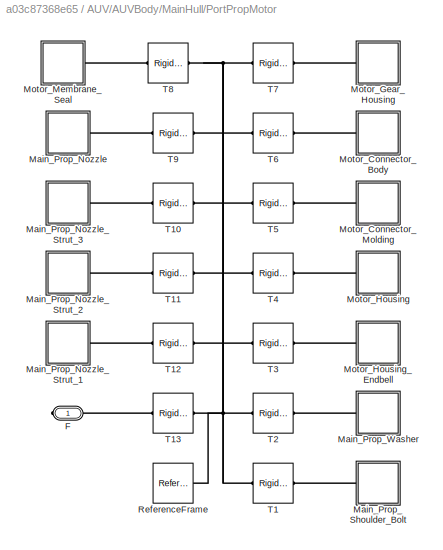
BLOCK [SubSystem] AUV/AUVBody/MainHull/PortPropMotor
  Ports = [0, 0, 0, 0, 0, 0, 1]
  RequestExecContextInheritance = off
BLOCK [PMIOPort] AUV/AUVBody/MainHull/PortPropMotor/F
  Side = Right
BLOCK [SubSystem] AUV/AUVBody/MainHull/PortPropMotor/Main_Prop_Nozzle
  Ports = [0, 0, 0, 0, 0, 1]
  RequestExecContextInheritance = off
BLOCK [PMIOPort] AUV/AUVBody/MainHull/PortPropMotor/Main_Prop_Nozzle/F
  Side = Left
BLOCK [Reference] AUV/AUVBody/MainHull/PortPropMotor/Main_Prop_Nozzle/ReferenceFrame  REF=sm_lib/Frames and
Transforms/Reference
Frame
  Ports = [0, 0, 0, 0, 0, 0, 1]
  SourceBlock = sm_lib/Frames and\nTransforms/Reference\nFrame
  SourceProductBaseCode = MS
  SourceType = Reference\nFrame
BLOCK [Reference] AUV/AUVBody/MainHull/PortPropMotor/Main_Prop_Nozzle/Solid  REF=sm_lib/Body Elements/File Solid
  Ports = [0, 0, 0, 0, 0, 0, 1]
  SourceBlock = sm_lib/Body Elements/File Solid
  SourceProductBaseCode = MS
  SourceType = File Solid
BLOCK [SubSystem] AUV/AUVBody/MainHull/PortPropMotor/Main_Prop_Nozzle_Strut_1
  Ports = [0, 0, 0, 0, 0, 1]
  RequestExecContextInheritance = off
BLOCK [PMIOPort] AUV/AUVBody/MainHull/PortPropMotor/Main_Prop_Nozzle_Strut_1/F
  Side = Left
BLOCK [Reference] AUV/AUVBody/MainHull/PortPropMotor/Main_Prop_Nozzle_Strut_1/ReferenceFrame  REF=sm_lib/Frames and
Transforms/Reference
Frame
  Ports = [0, 0, 0, 0, 0, 0, 1]
  SourceBlock = sm_lib/Frames and\nTransforms/Reference\nFrame
  SourceProductBaseCode = MS
  SourceType = Reference\nFrame
BLOCK [Reference] AUV/AUVBody/MainHull/PortPropMotor/Main_Prop_Nozzle_Strut_1/Solid  REF=sm_lib/Body Elements/File Solid
  Ports = [0, 0, 0, 0, 0, 0, 1]
  SourceBlock = sm_lib/Body Elements/File Solid
  SourceProductBaseCode = MS
  SourceType = File Solid
BLOCK [SubSystem] AUV/AUVBody/MainHull/PortPropMotor/Main_Prop_Nozzle_Strut_2
  Ports = [0, 0, 0, 0, 0, 1]
  RequestExecContextInheritance = off
BLOCK [PMIOPort] AUV/AUVBody/MainHull/PortPropMotor/Main_Prop_Nozzle_Strut_2/F
  Side = Left
BLOCK [Reference] AUV/AUVBody/MainHull/PortPropMotor/Main_Prop_Nozzle_Strut_2/ReferenceFrame  REF=sm_lib/Frames and
Transforms/Reference
Frame
  Ports = [0, 0, 0, 0, 0, 0, 1]
  SourceBlock = sm_lib/Frames and\nTransforms/Reference\nFrame
  SourceProductBaseCode = MS
  SourceType = Reference\nFrame
BLOCK [Reference] AUV/AUVBody/MainHull/PortPropMotor/Main_Prop_Nozzle_Strut_2/Solid  REF=sm_lib/Body Elements/File Solid
  Ports = [0, 0, 0, 0, 0, 0, 1]
  SourceBlock = sm_lib/Body Elements/File Solid
  SourceProductBaseCode = MS
  SourceType = File Solid
BLOCK [SubSystem] AUV/AUVBody/MainHull/PortPropMotor/Main_Prop_Nozzle_Strut_3
  Ports = [0, 0, 0, 0, 0, 1]
  RequestExecContextInheritance = off
BLOCK [PMIOPort] AUV/AUVBody/MainHull/PortPropMotor/Main_Prop_Nozzle_Strut_3/F
  Side = Left
BLOCK [Reference] AUV/AUVBody/MainHull/PortPropMotor/Main_Prop_Nozzle_Strut_3/ReferenceFrame  REF=sm_lib/Frames and
Transforms/Reference
Frame
  Ports = [0, 0, 0, 0, 0, 0, 1]
  SourceBlock = sm_lib/Frames and\nTransforms/Reference\nFrame
  SourceProductBaseCode = MS
  SourceType = Reference\nFrame
BLOCK [Reference] AUV/AUVBody/MainHull/PortPropMotor/Main_Prop_Nozzle_Strut_3/Solid  REF=sm_lib/Body Elements/File Solid
  Ports = [0, 0, 0, 0, 0, 0, 1]
  SourceBlock = sm_lib/Body Elements/File Solid
  SourceProductBaseCode = MS
  SourceType = File Solid
BLOCK [SubSystem] AUV/AUVBody/MainHull/PortPropMotor/Main_Prop_Shoulder_Bolt
  Ports = [0, 0, 0, 0, 0, 1]
  RequestExecContextInheritance = off
BLOCK [PMIOPort] AUV/AUVBody/MainHull/PortPropMotor/Main_Prop_Shoulder_Bolt/F
  Side = Left
BLOCK [Reference] AUV/AUVBody/MainHull/PortPropMotor/Main_Prop_Shoulder_Bolt/ReferenceFrame  REF=sm_lib/Frames and
Transforms/Reference
Frame
  Ports = [0, 0, 0, 0, 0, 0, 1]
  SourceBlock = sm_lib/Frames and\nTransforms/Reference\nFrame
  SourceProductBaseCode = MS
  SourceType = Reference\nFrame
BLOCK [Reference] AUV/AUVBody/MainHull/PortPropMotor/Main_Prop_Shoulder_Bolt/Solid  REF=sm_lib/Body Elements/File Solid
  Ports = [0, 0, 0, 0, 0, 0, 1]
  SourceBlock = sm_lib/Body Elements/File Solid
  SourceProductBaseCode = MS
  SourceType = File Solid
BLOCK [SubSystem] AUV/AUVBody/MainHull/PortPropMotor/Main_Prop_Washer
  Ports = [0, 0, 0, 0, 0, 1]
  RequestExecContextInheritance = off
BLOCK [PMIOPort] AUV/AUVBody/MainHull/PortPropMotor/Main_Prop_Washer/F
  Side = Left
BLOCK [Reference] AUV/AUVBody/MainHull/PortPropMotor/Main_Prop_Washer/ReferenceFrame  REF=sm_lib/Frames and
Transforms/Reference
Frame
  Ports = [0, 0, 0, 0, 0, 0, 1]
  SourceBlock = sm_lib/Frames and\nTransforms/Reference\nFrame
  SourceProductBaseCode = MS
  SourceType = Reference\nFrame
BLOCK [Reference] AUV/AUVBody/MainHull/PortPropMotor/Main_Prop_Washer/Solid  REF=sm_lib/Body Elements/File Solid
  Ports = [0, 0, 0, 0, 0, 0, 1]
  SourceBlock = sm_lib/Body Elements/File Solid
  SourceProductBaseCode = MS
  SourceType = File Solid
BLOCK [SubSystem] AUV/AUVBody/MainHull/PortPropMotor/Motor_Connector_Body
  Ports = [0, 0, 0, 0, 0, 1]
  RequestExecContextInheritance = off
BLOCK [PMIOPort] AUV/AUVBody/MainHull/PortPropMotor/Motor_Connector_Body/F
  Side = Left
BLOCK [Reference] AUV/AUVBody/MainHull/PortPropMotor/Motor_Connector_Body/ReferenceFrame  REF=sm_lib/Frames and
Transforms/Reference
Frame
  Ports = [0, 0, 0, 0, 0, 0, 1]
  SourceBlock = sm_lib/Frames and\nTransforms/Reference\nFrame
  SourceProductBaseCode = MS
  SourceType = Reference\nFrame
BLOCK [Reference] AUV/AUVBody/MainHull/PortPropMotor/Motor_Connector_Body/Solid  REF=sm_lib/Body Elements/File Solid
  Ports = [0, 0, 0, 0, 0, 0, 1]
  SourceBlock = sm_lib/Body Elements/File Solid
  SourceProductBaseCode = MS
  SourceType = File Solid
BLOCK [SubSystem] AUV/AUVBody/MainHull/PortPropMotor/Motor_Connector_Molding
  Ports = [0, 0, 0, 0, 0, 1]
  RequestExecContextInheritance = off
BLOCK [PMIOPort] AUV/AUVBody/MainHull/PortPropMotor/Motor_Connector_Molding/F
  Side = Left
BLOCK [Reference] AUV/AUVBody/MainHull/PortPropMotor/Motor_Connector_Molding/ReferenceFrame  REF=sm_lib/Frames and
Transforms/Reference
Frame
  Ports = [0, 0, 0, 0, 0, 0, 1]
  SourceBlock = sm_lib/Frames and\nTransforms/Reference\nFrame
  SourceProductBaseCode = MS
  SourceType = Reference\nFrame
BLOCK [Reference] AUV/AUVBody/MainHull/PortPropMotor/Motor_Connector_Molding/Solid  REF=sm_lib/Body Elements/File Solid
  Ports = [0, 0, 0, 0, 0, 0, 1]
  SourceBlock = sm_lib/Body Elements/File Solid
  SourceProductBaseCode = MS
  SourceType = File Solid
BLOCK [SubSystem] AUV/AUVBody/MainHull/PortPropMotor/Motor_Gear_Housing
  Ports = [0, 0, 0, 0, 0, 1]
  RequestExecContextInheritance = off
BLOCK [PMIOPort] AUV/AUVBody/MainHull/PortPropMotor/Motor_Gear_Housing/F
  Side = Left
BLOCK [Reference] AUV/AUVBody/MainHull/PortPropMotor/Motor_Gear_Housing/ReferenceFrame  REF=sm_lib/Frames and
Transforms/Reference
Frame
  Ports = [0, 0, 0, 0, 0, 0, 1]
  SourceBlock = sm_lib/Frames and\nTransforms/Reference\nFrame
  SourceProductBaseCode = MS
  SourceType = Reference\nFrame
BLOCK [Reference] AUV/AUVBody/MainHull/PortPropMotor/Motor_Gear_Housing/Solid  REF=sm_lib/Body Elements/File Solid
  Ports = [0, 0, 0, 0, 0, 0, 1]
  SourceBlock = sm_lib/Body Elements/File Solid
  SourceProductBaseCode = MS
  SourceType = File Solid
BLOCK [SubSystem] AUV/AUVBody/MainHull/PortPropMotor/Motor_Housing
  Ports = [0, 0, 0, 0, 0, 1]
  RequestExecContextInheritance = off
BLOCK [PMIOPort] AUV/AUVBody/MainHull/PortPropMotor/Motor_Housing/F
  Side = Left
BLOCK [Reference] AUV/AUVBody/MainHull/PortPropMotor/Motor_Housing/ReferenceFrame  REF=sm_lib/Frames and
Transforms/Reference
Frame
  Ports = [0, 0, 0, 0, 0, 0, 1]
  SourceBlock = sm_lib/Frames and\nTransforms/Reference\nFrame
  SourceProductBaseCode = MS
  SourceType = Reference\nFrame
BLOCK [Reference] AUV/AUVBody/MainHull/PortPropMotor/Motor_Housing/Solid  REF=sm_lib/Body Elements/File Solid
  Ports = [0, 0, 0, 0, 0, 0, 1]
  SourceBlock = sm_lib/Body Elements/File Solid
  SourceProductBaseCode = MS
  SourceType = File Solid
BLOCK [SubSystem] AUV/AUVBody/MainHull/PortPropMotor/Motor_Housing_Endbell
  Ports = [0, 0, 0, 0, 0, 1]
  RequestExecContextInheritance = off
BLOCK [PMIOPort] AUV/AUVBody/MainHull/PortPropMotor/Motor_Housing_Endbell/F
  Side = Left
BLOCK [Reference] AUV/AUVBody/MainHull/PortPropMotor/Motor_Housing_Endbell/ReferenceFrame  REF=sm_lib/Frames and
Transforms/Reference
Frame
  Ports = [0, 0, 0, 0, 0, 0, 1]
  SourceBlock = sm_lib/Frames and\nTransforms/Reference\nFrame
  SourceProductBaseCode = MS
  SourceType = Reference\nFrame
BLOCK [Reference] AUV/AUVBody/MainHull/PortPropMotor/Motor_Housing_Endbell/Solid  REF=sm_lib/Body Elements/File Solid
  Ports = [0, 0, 0, 0, 0, 0, 1]
  SourceBlock = sm_lib/Body Elements/File Solid
  SourceProductBaseCode = MS
  SourceType = File Solid
BLOCK [SubSystem] AUV/AUVBody/MainHull/PortPropMotor/Motor_Membrane_Seal
  Ports = [0, 0, 0, 0, 0, 1]
  RequestExecContextInheritance = off
BLOCK [PMIOPort] AUV/AUVBody/MainHull/PortPropMotor/Motor_Membrane_Seal/F
  Side = Left
BLOCK [Reference] AUV/AUVBody/MainHull/PortPropMotor/Motor_Membrane_Seal/ReferenceFrame  REF=sm_lib/Frames and
Transforms/Reference
Frame
  Ports = [0, 0, 0, 0, 0, 0, 1]
  SourceBlock = sm_lib/Frames and\nTransforms/Reference\nFrame
  SourceProductBaseCode = MS
  SourceType = Reference\nFrame
BLOCK [Reference] AUV/AUVBody/MainHull/PortPropMotor/Motor_Membrane_Seal/Solid  REF=sm_lib/Body Elements/File Solid
  Ports = [0, 0, 0, 0, 0, 0, 1]
  SourceBlock = sm_lib/Body Elements/File Solid
  SourceProductBaseCode = MS
  SourceType = File Solid
BLOCK [Reference] AUV/AUVBody/MainHull/PortPropMotor/ReferenceFrame  REF=sm_lib/Frames and
Transforms/Reference
Frame
  Ports = [0, 0, 0, 0, 0, 0, 1]
  SourceBlock = sm_lib/Frames and\nTransforms/Reference\nFrame
  SourceProductBaseCode = MS
  SourceType = Reference\nFrame
BLOCK [Reference] AUV/AUVBody/MainHull/PortPropMotor/T1  REF=sm_lib/Frames and
Transforms/Rigid
Transform
  Ports = [0, 0, 0, 0, 0, 1, 1]
  SourceBlock = sm_lib/Frames and\nTransforms/Rigid\nTransform
  SourceProductBaseCode = MS
  SourceType = Rigid\nTransform
BLOCK [Reference] AUV/AUVBody/MainHull/PortPropMotor/T10  REF=sm_lib/Frames and
Transforms/Rigid
Transform
  Ports = [0, 0, 0, 0, 0, 1, 1]
  SourceBlock = sm_lib/Frames and\nTransforms/Rigid\nTransform
  SourceProductBaseCode = MS
  SourceType = Rigid\nTransform
BLOCK [Reference] AUV/AUVBody/MainHull/PortPropMotor/T11  REF=sm_lib/Frames and
Transforms/Rigid
Transform
  Ports = [0, 0, 0, 0, 0, 1, 1]
  SourceBlock = sm_lib/Frames and\nTransforms/Rigid\nTransform
  SourceProductBaseCode = MS
  SourceType = Rigid\nTransform
BLOCK [Reference] AUV/AUVBody/MainHull/PortPropMotor/T12  REF=sm_lib/Frames and
Transforms/Rigid
Transform
  Ports = [0, 0, 0, 0, 0, 1, 1]
  SourceBlock = sm_lib/Frames and\nTransforms/Rigid\nTransform
  SourceProductBaseCode = MS
  SourceType = Rigid\nTransform
BLOCK [Reference] AUV/AUVBody/MainHull/PortPropMotor/T13  REF=sm_lib/Frames and
Transforms/Rigid
Transform
  Ports = [0, 0, 0, 0, 0, 1, 1]
  SourceBlock = sm_lib/Frames and\nTransforms/Rigid\nTransform
  SourceProductBaseCode = MS
  SourceType = Rigid\nTransform
BLOCK [Reference] AUV/AUVBody/MainHull/PortPropMotor/T2  REF=sm_lib/Frames and
Transforms/Rigid
Transform
  Ports = [0, 0, 0, 0, 0, 1, 1]
  SourceBlock = sm_lib/Frames and\nTransforms/Rigid\nTransform
  SourceProductBaseCode = MS
  SourceType = Rigid\nTransform
BLOCK [Reference] AUV/AUVBody/MainHull/PortPropMotor/T3  REF=sm_lib/Frames and
Transforms/Rigid
Transform
  Ports = [0, 0, 0, 0, 0, 1, 1]
  SourceBlock = sm_lib/Frames and\nTransforms/Rigid\nTransform
  SourceProductBaseCode = MS
  SourceType = Rigid\nTransform
BLOCK [Reference] AUV/AUVBody/MainHull/PortPropMotor/T4  REF=sm_lib/Frames and
Transforms/Rigid
Transform
  Ports = [0, 0, 0, 0, 0, 1, 1]
  SourceBlock = sm_lib/Frames and\nTransforms/Rigid\nTransform
  SourceProductBaseCode = MS
  SourceType = Rigid\nTransform
BLOCK [Reference] AUV/AUVBody/MainHull/PortPropMotor/T5  REF=sm_lib/Frames and
Transforms/Rigid
Transform
  Ports = [0, 0, 0, 0, 0, 1, 1]
  SourceBlock = sm_lib/Frames and\nTransforms/Rigid\nTransform
  SourceProductBaseCode = MS
  SourceType = Rigid\nTransform
BLOCK [Reference] AUV/AUVBody/MainHull/PortPropMotor/T6  REF=sm_lib/Frames and
Transforms/Rigid
Transform
  Ports = [0, 0, 0, 0, 0, 1, 1]
  SourceBlock = sm_lib/Frames and\nTransforms/Rigid\nTransform
  SourceProductBaseCode = MS
  SourceType = Rigid\nTransform
BLOCK [Reference] AUV/AUVBody/MainHull/PortPropMotor/T7  REF=sm_lib/Frames and
Transforms/Rigid
Transform
  Ports = [0, 0, 0, 0, 0, 1, 1]
  SourceBlock = sm_lib/Frames and\nTransforms/Rigid\nTransform
  SourceProductBaseCode = MS
  SourceType = Rigid\nTransform
BLOCK [Reference] AUV/AUVBody/MainHull/PortPropMotor/T8  REF=sm_lib/Frames and
Transforms/Rigid
Transform
  Ports = [0, 0, 0, 0, 0, 1, 1]
  SourceBlock = sm_lib/Frames and\nTransforms/Rigid\nTransform
  SourceProductBaseCode = MS
  SourceType = Rigid\nTransform
BLOCK [Reference] AUV/AUVBody/MainHull/PortPropMotor/T9  REF=sm_lib/Frames and
Transforms/Rigid
Transform
  Ports = [0, 0, 0, 0, 0, 1, 1]
  SourceBlock = sm_lib/Frames and\nTransforms/Rigid\nTransform
  SourceProductBaseCode = MS
  SourceType = Rigid\nTransform
BLOCK [Reference] AUV/AUVBody/MainHull/ReferenceFrame  REF=sm_lib/Frames and
Transforms/Reference
Frame
  Ports = [0, 0, 0, 0, 0, 0, 1]
  SourceBlock = sm_lib/Frames and\nTransforms/Reference\nFrame
  SourceProductBaseCode = MS
  SourceType = Reference\nFrame
BLOCK [PMIOPort] AUV/AUVBody/MainHull/SP
  Port = 2
  Side = Left
BLOCK [SubSystem] AUV/AUVBody/MainHull/Sonar1
  Ports = [0, 0, 0, 0, 0, 1]
  RequestExecContextInheritance = off
BLOCK [PMIOPort] AUV/AUVBody/MainHull/Sonar1/F
  Side = Left
BLOCK [Reference] AUV/AUVBody/MainHull/Sonar1/ReferenceFrame  REF=sm_lib/Frames and
Transforms/Reference
Frame
  Ports = [0, 0, 0, 0, 0, 0, 1]
  SourceBlock = sm_lib/Frames and\nTransforms/Reference\nFrame
  SourceProductBaseCode = MS
  SourceType = Reference\nFrame
BLOCK [Reference] AUV/AUVBody/MainHull/Sonar1/Solid  REF=sm_lib/Body Elements/File Solid
  Ports = [0, 0, 0, 0, 0, 0, 1]
  SourceBlock = sm_lib/Body Elements/File Solid
  SourceProductBaseCode = MS
  SourceType = File Solid
BLOCK [Reference] AUV/AUVBody/MainHull/Sonar1/T1  REF=sm_lib/Frames and
Transforms/Rigid
Transform
  Ports = [0, 0, 0, 0, 0, 1, 1]
  SourceBlock = sm_lib/Frames and\nTransforms/Rigid\nTransform
  SourceProductBaseCode = MS
  SourceType = Rigid\nTransform
BLOCK [SubSystem] AUV/AUVBody/MainHull/Sonar2
  Ports = [0, 0, 0, 0, 0, 1]
  RequestExecContextInheritance = off
BLOCK [PMIOPort] AUV/AUVBody/MainHull/Sonar2/F
  Side = Left
BLOCK [Reference] AUV/AUVBody/MainHull/Sonar2/ReferenceFrame  REF=sm_lib/Frames and
Transforms/Reference
Frame
  Ports = [0, 0, 0, 0, 0, 0, 1]
  SourceBlock = sm_lib/Frames and\nTransforms/Reference\nFrame
  SourceProductBaseCode = MS
  SourceType = Reference\nFrame
BLOCK [Reference] AUV/AUVBody/MainHull/Sonar2/Solid  REF=sm_lib/Body Elements/File Solid
  Ports = [0, 0, 0, 0, 0, 0, 1]
  SourceBlock = sm_lib/Body Elements/File Solid
  SourceProductBaseCode = MS
  SourceType = File Solid
BLOCK [Reference] AUV/AUVBody/MainHull/Sonar2/T1  REF=sm_lib/Frames and
Transforms/Rigid
Transform
  Ports = [0, 0, 0, 0, 0, 1, 1]
  SourceBlock = sm_lib/Frames and\nTransforms/Rigid\nTransform
  SourceProductBaseCode = MS
  SourceType = Rigid\nTransform
BLOCK [SubSystem] AUV/AUVBody/MainHull/StarboardPropMotor
  Ports = [0, 0, 0, 0, 0, 0, 1]
  RequestExecContextInheritance = off
BLOCK [PMIOPort] AUV/AUVBody/MainHull/StarboardPropMotor/F
  Side = Right
BLOCK [SubSystem] AUV/AUVBody/MainHull/StarboardPropMotor/Main_Prop_Nozzle
  Ports = [0, 0, 0, 0, 0, 1]
  RequestExecContextInheritance = off
BLOCK [PMIOPort] AUV/AUVBody/MainHull/StarboardPropMotor/Main_Prop_Nozzle/F
  Side = Left
BLOCK [Reference] AUV/AUVBody/MainHull/StarboardPropMotor/Main_Prop_Nozzle/ReferenceFrame  REF=sm_lib/Frames and
Transforms/Reference
Frame
  Ports = [0, 0, 0, 0, 0, 0, 1]
  SourceBlock = sm_lib/Frames and\nTransforms/Reference\nFrame
  SourceProductBaseCode = MS
  SourceType = Reference\nFrame
BLOCK [Reference] AUV/AUVBody/MainHull/StarboardPropMotor/Main_Prop_Nozzle/Solid  REF=sm_lib/Body Elements/File Solid
  Ports = [0, 0, 0, 0, 0, 0, 1]
  SourceBlock = sm_lib/Body Elements/File Solid
  SourceProductBaseCode = MS
  SourceType = File Solid
BLOCK [SubSystem] AUV/AUVBody/MainHull/StarboardPropMotor/Main_Prop_Nozzle_Strut_1
  Ports = [0, 0, 0, 0, 0, 1]
  RequestExecContextInheritance = off
BLOCK [PMIOPort] AUV/AUVBody/MainHull/StarboardPropMotor/Main_Prop_Nozzle_Strut_1/F
  Side = Left
BLOCK [Reference] AUV/AUVBody/MainHull/StarboardPropMotor/Main_Prop_Nozzle_Strut_1/ReferenceFrame  REF=sm_lib/Frames and
Transforms/Reference
Frame
  Ports = [0, 0, 0, 0, 0, 0, 1]
  SourceBlock = sm_lib/Frames and\nTransforms/Reference\nFrame
  SourceProductBaseCode = MS
  SourceType = Reference\nFrame
BLOCK [Reference] AUV/AUVBody/MainHull/StarboardPropMotor/Main_Prop_Nozzle_Strut_1/Solid  REF=sm_lib/Body Elements/File Solid
  Ports = [0, 0, 0, 0, 0, 0, 1]
  SourceBlock = sm_lib/Body Elements/File Solid
  SourceProductBaseCode = MS
  SourceType = File Solid
BLOCK [SubSystem] AUV/AUVBody/MainHull/StarboardPropMotor/Main_Prop_Nozzle_Strut_2
  Ports = [0, 0, 0, 0, 0, 1]
  RequestExecContextInheritance = off
BLOCK [PMIOPort] AUV/AUVBody/MainHull/StarboardPropMotor/Main_Prop_Nozzle_Strut_2/F
  Side = Left
BLOCK [Reference] AUV/AUVBody/MainHull/StarboardPropMotor/Main_Prop_Nozzle_Strut_2/ReferenceFrame  REF=sm_lib/Frames and
Transforms/Reference
Frame
  Ports = [0, 0, 0, 0, 0, 0, 1]
  SourceBlock = sm_lib/Frames and\nTransforms/Reference\nFrame
  SourceProductBaseCode = MS
  SourceType = Reference\nFrame
BLOCK [Reference] AUV/AUVBody/MainHull/StarboardPropMotor/Main_Prop_Nozzle_Strut_2/Solid  REF=sm_lib/Body Elements/File Solid
  Ports = [0, 0, 0, 0, 0, 0, 1]
  SourceBlock = sm_lib/Body Elements/File Solid
  SourceProductBaseCode = MS
  SourceType = File Solid
BLOCK [SubSystem] AUV/AUVBody/MainHull/StarboardPropMotor/Main_Prop_Nozzle_Strut_3
  Ports = [0, 0, 0, 0, 0, 1]
  RequestExecContextInheritance = off
BLOCK [PMIOPort] AUV/AUVBody/MainHull/StarboardPropMotor/Main_Prop_Nozzle_Strut_3/F
  Side = Left
BLOCK [Reference] AUV/AUVBody/MainHull/StarboardPropMotor/Main_Prop_Nozzle_Strut_3/ReferenceFrame  REF=sm_lib/Frames and
Transforms/Reference
Frame
  Ports = [0, 0, 0, 0, 0, 0, 1]
  SourceBlock = sm_lib/Frames and\nTransforms/Reference\nFrame
  SourceProductBaseCode = MS
  SourceType = Reference\nFrame
BLOCK [Reference] AUV/AUVBody/MainHull/StarboardPropMotor/Main_Prop_Nozzle_Strut_3/Solid  REF=sm_lib/Body Elements/File Solid
  Ports = [0, 0, 0, 0, 0, 0, 1]
  SourceBlock = sm_lib/Body Elements/File Solid
  SourceProductBaseCode = MS
  SourceType = File Solid
BLOCK [SubSystem] AUV/AUVBody/MainHull/StarboardPropMotor/Main_Prop_Shoulder_Bolt
  Ports = [0, 0, 0, 0, 0, 1]
  RequestExecContextInheritance = off
BLOCK [PMIOPort] AUV/AUVBody/MainHull/StarboardPropMotor/Main_Prop_Shoulder_Bolt/F
  Side = Left
BLOCK [Reference] AUV/AUVBody/MainHull/StarboardPropMotor/Main_Prop_Shoulder_Bolt/ReferenceFrame  REF=sm_lib/Frames and
Transforms/Reference
Frame
  Ports = [0, 0, 0, 0, 0, 0, 1]
  SourceBlock = sm_lib/Frames and\nTransforms/Reference\nFrame
  SourceProductBaseCode = MS
  SourceType = Reference\nFrame
BLOCK [Reference] AUV/AUVBody/MainHull/StarboardPropMotor/Main_Prop_Shoulder_Bolt/Solid  REF=sm_lib/Body Elements/File Solid
  Ports = [0, 0, 0, 0, 0, 0, 1]
  SourceBlock = sm_lib/Body Elements/File Solid
  SourceProductBaseCode = MS
  SourceType = File Solid
BLOCK [SubSystem] AUV/AUVBody/MainHull/StarboardPropMotor/Main_Prop_Washer
  Ports = [0, 0, 0, 0, 0, 1]
  RequestExecContextInheritance = off
BLOCK [PMIOPort] AUV/AUVBody/MainHull/StarboardPropMotor/Main_Prop_Washer/F
  Side = Left
BLOCK [Reference] AUV/AUVBody/MainHull/StarboardPropMotor/Main_Prop_Washer/ReferenceFrame  REF=sm_lib/Frames and
Transforms/Reference
Frame
  Ports = [0, 0, 0, 0, 0, 0, 1]
  SourceBlock = sm_lib/Frames and\nTransforms/Reference\nFrame
  SourceProductBaseCode = MS
  SourceType = Reference\nFrame
BLOCK [Reference] AUV/AUVBody/MainHull/StarboardPropMotor/Main_Prop_Washer/Solid  REF=sm_lib/Body Elements/File Solid
  Ports = [0, 0, 0, 0, 0, 0, 1]
  SourceBlock = sm_lib/Body Elements/File Solid
  SourceProductBaseCode = MS
  SourceType = File Solid
BLOCK [SubSystem] AUV/AUVBody/MainHull/StarboardPropMotor/Motor_Connector_Body
  Ports = [0, 0, 0, 0, 0, 1]
  RequestExecContextInheritance = off
BLOCK [PMIOPort] AUV/AUVBody/MainHull/StarboardPropMotor/Motor_Connector_Body/F
  Side = Left
BLOCK [Reference] AUV/AUVBody/MainHull/StarboardPropMotor/Motor_Connector_Body/ReferenceFrame  REF=sm_lib/Frames and
Transforms/Reference
Frame
  Ports = [0, 0, 0, 0, 0, 0, 1]
  SourceBlock = sm_lib/Frames and\nTransforms/Reference\nFrame
  SourceProductBaseCode = MS
  SourceType = Reference\nFrame
BLOCK [Reference] AUV/AUVBody/MainHull/StarboardPropMotor/Motor_Connector_Body/Solid  REF=sm_lib/Body Elements/File Solid
  Ports = [0, 0, 0, 0, 0, 0, 1]
  SourceBlock = sm_lib/Body Elements/File Solid
  SourceProductBaseCode = MS
  SourceType = File Solid
BLOCK [SubSystem] AUV/AUVBody/MainHull/StarboardPropMotor/Motor_Connector_Molding
  Ports = [0, 0, 0, 0, 0, 1]
  RequestExecContextInheritance = off
BLOCK [PMIOPort] AUV/AUVBody/MainHull/StarboardPropMotor/Motor_Connector_Molding/F
  Side = Left
BLOCK [Reference] AUV/AUVBody/MainHull/StarboardPropMotor/Motor_Connector_Molding/ReferenceFrame  REF=sm_lib/Frames and
Transforms/Reference
Frame
  Ports = [0, 0, 0, 0, 0, 0, 1]
  SourceBlock = sm_lib/Frames and\nTransforms/Reference\nFrame
  SourceProductBaseCode = MS
  SourceType = Reference\nFrame
BLOCK [Reference] AUV/AUVBody/MainHull/StarboardPropMotor/Motor_Connector_Molding/Solid  REF=sm_lib/Body Elements/File Solid
  Ports = [0, 0, 0, 0, 0, 0, 1]
  SourceBlock = sm_lib/Body Elements/File Solid
  SourceProductBaseCode = MS
  SourceType = File Solid
BLOCK [SubSystem] AUV/AUVBody/MainHull/StarboardPropMotor/Motor_Gear_Housing
  Ports = [0, 0, 0, 0, 0, 1]
  RequestExecContextInheritance = off
BLOCK [PMIOPort] AUV/AUVBody/MainHull/StarboardPropMotor/Motor_Gear_Housing/F
  Side = Left
BLOCK [Reference] AUV/AUVBody/MainHull/StarboardPropMotor/Motor_Gear_Housing/ReferenceFrame  REF=sm_lib/Frames and
Transforms/Reference
Frame
  Ports = [0, 0, 0, 0, 0, 0, 1]
  SourceBlock = sm_lib/Frames and\nTransforms/Reference\nFrame
  SourceProductBaseCode = MS
  SourceType = Reference\nFrame
BLOCK [Reference] AUV/AUVBody/MainHull/StarboardPropMotor/Motor_Gear_Housing/Solid  REF=sm_lib/Body Elements/File Solid
  Ports = [0, 0, 0, 0, 0, 0, 1]
  SourceBlock = sm_lib/Body Elements/File Solid
  SourceProductBaseCode = MS
  SourceType = File Solid
BLOCK [SubSystem] AUV/AUVBody/MainHull/StarboardPropMotor/Motor_Housing
  Ports = [0, 0, 0, 0, 0, 1]
  RequestExecContextInheritance = off
BLOCK [PMIOPort] AUV/AUVBody/MainHull/StarboardPropMotor/Motor_Housing/F
  Side = Left
BLOCK [Reference] AUV/AUVBody/MainHull/StarboardPropMotor/Motor_Housing/ReferenceFrame  REF=sm_lib/Frames and
Transforms/Reference
Frame
  Ports = [0, 0, 0, 0, 0, 0, 1]
  SourceBlock = sm_lib/Frames and\nTransforms/Reference\nFrame
  SourceProductBaseCode = MS
  SourceType = Reference\nFrame
BLOCK [Reference] AUV/AUVBody/MainHull/StarboardPropMotor/Motor_Housing/Solid  REF=sm_lib/Body Elements/File Solid
  Ports = [0, 0, 0, 0, 0, 0, 1]
  SourceBlock = sm_lib/Body Elements/File Solid
  SourceProductBaseCode = MS
  SourceType = File Solid
BLOCK [SubSystem] AUV/AUVBody/MainHull/StarboardPropMotor/Motor_Housing_Endbell
  Ports = [0, 0, 0, 0, 0, 1]
  RequestExecContextInheritance = off
BLOCK [PMIOPort] AUV/AUVBody/MainHull/StarboardPropMotor/Motor_Housing_Endbell/F
  Side = Left
BLOCK [Reference] AUV/AUVBody/MainHull/StarboardPropMotor/Motor_Housing_Endbell/ReferenceFrame  REF=sm_lib/Frames and
Transforms/Reference
Frame
  Ports = [0, 0, 0, 0, 0, 0, 1]
  SourceBlock = sm_lib/Frames and\nTransforms/Reference\nFrame
  SourceProductBaseCode = MS
  SourceType = Reference\nFrame
BLOCK [Reference] AUV/AUVBody/MainHull/StarboardPropMotor/Motor_Housing_Endbell/Solid  REF=sm_lib/Body Elements/File Solid
  Ports = [0, 0, 0, 0, 0, 0, 1]
  SourceBlock = sm_lib/Body Elements/File Solid
  SourceProductBaseCode = MS
  SourceType = File Solid
BLOCK [SubSystem] AUV/AUVBody/MainHull/StarboardPropMotor/Motor_Membrane_Seal
  Ports = [0, 0, 0, 0, 0, 1]
  RequestExecContextInheritance = off
BLOCK [PMIOPort] AUV/AUVBody/MainHull/StarboardPropMotor/Motor_Membrane_Seal/F
  Side = Left
BLOCK [Reference] AUV/AUVBody/MainHull/StarboardPropMotor/Motor_Membrane_Seal/ReferenceFrame  REF=sm_lib/Frames and
Transforms/Reference
Frame
  Ports = [0, 0, 0, 0, 0, 0, 1]
  SourceBlock = sm_lib/Frames and\nTransforms/Reference\nFrame
  SourceProductBaseCode = MS
  SourceType = Reference\nFrame
BLOCK [Reference] AUV/AUVBody/MainHull/StarboardPropMotor/Motor_Membrane_Seal/Solid  REF=sm_lib/Body Elements/File Solid
  Ports = [0, 0, 0, 0, 0, 0, 1]
  SourceBlock = sm_lib/Body Elements/File Solid
  SourceProductBaseCode = MS
  SourceType = File Solid
BLOCK [Reference] AUV/AUVBody/MainHull/StarboardPropMotor/ReferenceFrame  REF=sm_lib/Frames and
Transforms/Reference
Frame
  Ports = [0, 0, 0, 0, 0, 0, 1]
  SourceBlock = sm_lib/Frames and\nTransforms/Reference\nFrame
  SourceProductBaseCode = MS
  SourceType = Reference\nFrame
BLOCK [Reference] AUV/AUVBody/MainHull/StarboardPropMotor/T1  REF=sm_lib/Frames and
Transforms/Rigid
Transform
  Ports = [0, 0, 0, 0, 0, 1, 1]
  SourceBlock = sm_lib/Frames and\nTransforms/Rigid\nTransform
  SourceProductBaseCode = MS
  SourceType = Rigid\nTransform
BLOCK [Reference] AUV/AUVBody/MainHull/StarboardPropMotor/T10  REF=sm_lib/Frames and
Transforms/Rigid
Transform
  Ports = [0, 0, 0, 0, 0, 1, 1]
  SourceBlock = sm_lib/Frames and\nTransforms/Rigid\nTransform
  SourceProductBaseCode = MS
  SourceType = Rigid\nTransform
BLOCK [Reference] AUV/AUVBody/MainHull/StarboardPropMotor/T11  REF=sm_lib/Frames and
Transforms/Rigid
Transform
  Ports = [0, 0, 0, 0, 0, 1, 1]
  SourceBlock = sm_lib/Frames and\nTransforms/Rigid\nTransform
  SourceProductBaseCode = MS
  SourceType = Rigid\nTransform
BLOCK [Reference] AUV/AUVBody/MainHull/StarboardPropMotor/T12  REF=sm_lib/Frames and
Transforms/Rigid
Transform
  Ports = [0, 0, 0, 0, 0, 1, 1]
  SourceBlock = sm_lib/Frames and\nTransforms/Rigid\nTransform
  SourceProductBaseCode = MS
  SourceType = Rigid\nTransform
BLOCK [Reference] AUV/AUVBody/MainHull/StarboardPropMotor/T13  REF=sm_lib/Frames and
Transforms/Rigid
Transform
  Ports = [0, 0, 0, 0, 0, 1, 1]
  SourceBlock = sm_lib/Frames and\nTransforms/Rigid\nTransform
  SourceProductBaseCode = MS
  SourceType = Rigid\nTransform
BLOCK [Reference] AUV/AUVBody/MainHull/StarboardPropMotor/T2  REF=sm_lib/Frames and
Transforms/Rigid
Transform
  Ports = [0, 0, 0, 0, 0, 1, 1]
  SourceBlock = sm_lib/Frames and\nTransforms/Rigid\nTransform
  SourceProductBaseCode = MS
  SourceType = Rigid\nTransform
BLOCK [Reference] AUV/AUVBody/MainHull/StarboardPropMotor/T3  REF=sm_lib/Frames and
Transforms/Rigid
Transform
  Ports = [0, 0, 0, 0, 0, 1, 1]
  SourceBlock = sm_lib/Frames and\nTransforms/Rigid\nTransform
  SourceProductBaseCode = MS
  SourceType = Rigid\nTransform
BLOCK [Reference] AUV/AUVBody/MainHull/StarboardPropMotor/T4  REF=sm_lib/Frames and
Transforms/Rigid
Transform
  Ports = [0, 0, 0, 0, 0, 1, 1]
  SourceBlock = sm_lib/Frames and\nTransforms/Rigid\nTransform
  SourceProductBaseCode = MS
  SourceType = Rigid\nTransform
BLOCK [Reference] AUV/AUVBody/MainHull/StarboardPropMotor/T5  REF=sm_lib/Frames and
Transforms/Rigid
Transform
  Ports = [0, 0, 0, 0, 0, 1, 1]
  SourceBlock = sm_lib/Frames and\nTransforms/Rigid\nTransform
  SourceProductBaseCode = MS
  SourceType = Rigid\nTransform
BLOCK [Reference] AUV/AUVBody/MainHull/StarboardPropMotor/T6  REF=sm_lib/Frames and
Transforms/Rigid
Transform
  Ports = [0, 0, 0, 0, 0, 1, 1]
  SourceBlock = sm_lib/Frames and\nTransforms/Rigid\nTransform
  SourceProductBaseCode = MS
  SourceType = Rigid\nTransform
BLOCK [Reference] AUV/AUVBody/MainHull/StarboardPropMotor/T7  REF=sm_lib/Frames and
Transforms/Rigid
Transform
  Ports = [0, 0, 0, 0, 0, 1, 1]
  SourceBlock = sm_lib/Frames and\nTransforms/Rigid\nTransform
  SourceProductBaseCode = MS
  SourceType = Rigid\nTransform
BLOCK [Reference] AUV/AUVBody/MainHull/StarboardPropMotor/T8  REF=sm_lib/Frames and
Transforms/Rigid
Transform
  Ports = [0, 0, 0, 0, 0, 1, 1]
  SourceBlock = sm_lib/Frames and\nTransforms/Rigid\nTransform
  SourceProductBaseCode = MS
  SourceType = Rigid\nTransform
BLOCK [Reference] AUV/AUVBody/MainHull/StarboardPropMotor/T9  REF=sm_lib/Frames and
Transforms/Rigid
Transform
  Ports = [0, 0, 0, 0, 0, 1, 1]
  SourceBlock = sm_lib/Frames and\nTransforms/Rigid\nTransform
  SourceProductBaseCode = MS
  SourceType = Rigid\nTransform
BLOCK [PMIOPort] AUV/AUVBody/PP
  Port = 6
  Side = Left
BLOCK [Reference] AUV/AUVBody/ReferenceFrame  REF=sm_lib/Frames and
Transforms/Reference
Frame
  Ports = [0, 0, 0, 0, 0, 0, 1]
  SourceBlock = sm_lib/Frames and\nTransforms/Reference\nFrame
  SourceProductBaseCode = MS
  SourceType = Reference\nFrame
BLOCK [PMIOPort] AUV/AUVBody/SHT
  Port = 8
  Side = Left
BLOCK [PMIOPort] AUV/AUVBody/SP
  Port = 5
  Side = Right
BLOCK [PMIOPort] AUV/AUVBody/SVT
  Port = 7
  Side = Right
BLOCK [SubSystem] AUV/AUVBody/SternHorThrusterTunnel
  Ports = [0, 0, 0, 0, 0, 1, 1]
  RequestExecContextInheritance = off
BLOCK [PMIOPort] AUV/AUVBody/SternHorThrusterTunnel/F
  Side = Left
BLOCK [Reference] AUV/AUVBody/SternHorThrusterTunnel/ReferenceFrame  REF=sm_lib/Frames and
Transforms/Reference
Frame
  Ports = [0, 0, 0, 0, 0, 0, 1]
  SourceBlock = sm_lib/Frames and\nTransforms/Reference\nFrame
  SourceProductBaseCode = MS
  SourceType = Reference\nFrame
BLOCK [PMIOPort] AUV/AUVBody/SternHorThrusterTunnel/SHT
  Port = 2
  Side = Right
BLOCK [SubSystem] AUV/AUVBody/SternHorThrusterTunnel/SternHorThrusterMount
  Ports = [0, 0, 0, 0, 0, 1]
  RequestExecContextInheritance = off
BLOCK [PMIOPort] AUV/AUVBody/SternHorThrusterTunnel/SternHorThrusterMount/F
  Side = Left
BLOCK [Reference] AUV/AUVBody/SternHorThrusterTunnel/SternHorThrusterMount/ReferenceFrame  REF=sm_lib/Frames and
Transforms/Reference
Frame
  Ports = [0, 0, 0, 0, 0, 0, 1]
  SourceBlock = sm_lib/Frames and\nTransforms/Reference\nFrame
  SourceProductBaseCode = MS
  SourceType = Reference\nFrame
BLOCK [Reference] AUV/AUVBody/SternHorThrusterTunnel/SternHorThrusterMount/T1  REF=sm_lib/Frames and
Transforms/Rigid
Transform
  Ports = [0, 0, 0, 0, 0, 1, 1]
  SourceBlock = sm_lib/Frames and\nTransforms/Rigid\nTransform
  SourceProductBaseCode = MS
  SourceType = Rigid\nTransform
BLOCK [Reference] AUV/AUVBody/SternHorThrusterTunnel/SternHorThrusterMount/T2  REF=sm_lib/Frames and
Transforms/Rigid
Transform
  Ports = [0, 0, 0, 0, 0, 1, 1]
  SourceBlock = sm_lib/Frames and\nTransforms/Rigid\nTransform
  SourceProductBaseCode = MS
  SourceType = Rigid\nTransform
BLOCK [Reference] AUV/AUVBody/SternHorThrusterTunnel/SternHorThrusterMount/T3  REF=sm_lib/Frames and
Transforms/Rigid
Transform
  Ports = [0, 0, 0, 0, 0, 1, 1]
  SourceBlock = sm_lib/Frames and\nTransforms/Rigid\nTransform
  SourceProductBaseCode = MS
  SourceType = Rigid\nTransform
BLOCK [Reference] AUV/AUVBody/SternHorThrusterTunnel/SternHorThrusterMount/T4  REF=sm_lib/Frames and
Transforms/Rigid
Transform
  Ports = [0, 0, 0, 0, 0, 1, 1]
  SourceBlock = sm_lib/Frames and\nTransforms/Rigid\nTransform
  SourceProductBaseCode = MS
  SourceType = Rigid\nTransform
BLOCK [Reference] AUV/AUVBody/SternHorThrusterTunnel/SternHorThrusterMount/T5  REF=sm_lib/Frames and
Transforms/Rigid
Transform
  Ports = [0, 0, 0, 0, 0, 1, 1]
  SourceBlock = sm_lib/Frames and\nTransforms/Rigid\nTransform
  SourceProductBaseCode = MS
  SourceType = Rigid\nTransform
BLOCK [Reference] AUV/AUVBody/SternHorThrusterTunnel/SternHorThrusterMount/T6  REF=sm_lib/Frames and
Transforms/Rigid
Transform
  Ports = [0, 0, 0, 0, 0, 1, 1]
  SourceBlock = sm_lib/Frames and\nTransforms/Rigid\nTransform
  SourceProductBaseCode = MS
  SourceType = Rigid\nTransform
BLOCK [Reference] AUV/AUVBody/SternHorThrusterTunnel/SternHorThrusterMount/T7  REF=sm_lib/Frames and
Transforms/Rigid
Transform
  Ports = [0, 0, 0, 0, 0, 1, 1]
  SourceBlock = sm_lib/Frames and\nTransforms/Rigid\nTransform
  SourceProductBaseCode = MS
  SourceType = Rigid\nTransform
BLOCK [Reference] AUV/AUVBody/SternHorThrusterTunnel/SternHorThrusterMount/T8  REF=sm_lib/Frames and
Transforms/Rigid
Transform
  Ports = [0, 0, 0, 0, 0, 1, 1]
  SourceBlock = sm_lib/Frames and\nTransforms/Rigid\nTransform
  SourceProductBaseCode = MS
  SourceType = Rigid\nTransform
BLOCK [SubSystem] AUV/AUVBody/SternHorThrusterTunnel/SternHorThrusterMount/Tunnel_Thruster_Prop_Hub_1
  Ports = [0, 0, 0, 0, 0, 1]
  RequestExecContextInheritance = off
BLOCK [PMIOPort] AUV/AUVBody/SternHorThrusterTunnel/SternHorThrusterMount/Tunnel_Thruster_Prop_Hub_1/F
  Side = Left
BLOCK [Reference] AUV/AUVBody/SternHorThrusterTunnel/SternHorThrusterMount/Tunnel_Thruster_Prop_Hub_1/ReferenceFrame  REF=sm_lib/Frames and
Transforms/Reference
Frame
  Ports = [0, 0, 0, 0, 0, 0, 1]
  SourceBlock = sm_lib/Frames and\nTransforms/Reference\nFrame
  SourceProductBaseCode = MS
  SourceType = Reference\nFrame
BLOCK [Reference] AUV/AUVBody/SternHorThrusterTunnel/SternHorThrusterMount/Tunnel_Thruster_Prop_Hub_1/Solid  REF=sm_lib/Body Elements/File Solid
  Ports = [0, 0, 0, 0, 0, 0, 1]
  SourceBlock = sm_lib/Body Elements/File Solid
  SourceProductBaseCode = MS
  SourceType = File Solid
BLOCK [SubSystem] AUV/AUVBody/SternHorThrusterTunnel/SternHorThrusterMount/Tunnel_Thruster_Prop_Hub_2
  Ports = [0, 0, 0, 0, 0, 1]
  RequestExecContextInheritance = off
BLOCK [PMIOPort] AUV/AUVBody/SternHorThrusterTunnel/SternHorThrusterMount/Tunnel_Thruster_Prop_Hub_2/F
  Side = Left
BLOCK [Reference] AUV/AUVBody/SternHorThrusterTunnel/SternHorThrusterMount/Tunnel_Thruster_Prop_Hub_2/ReferenceFrame  REF=sm_lib/Frames and
Transforms/Reference
Frame
  Ports = [0, 0, 0, 0, 0, 0, 1]
  SourceBlock = sm_lib/Frames and\nTransforms/Reference\nFrame
  SourceProductBaseCode = MS
  SourceType = Reference\nFrame
BLOCK [Reference] AUV/AUVBody/SternHorThrusterTunnel/SternHorThrusterMount/Tunnel_Thruster_Prop_Hub_2/Solid  REF=sm_lib/Body Elements/File Solid
  Ports = [0, 0, 0, 0, 0, 0, 1]
  SourceBlock = sm_lib/Body Elements/File Solid
  SourceProductBaseCode = MS
  SourceType = File Solid
BLOCK [SubSystem] AUV/AUVBody/SternHorThrusterTunnel/SternHorThrusterMount/Tunnel_Thruster_Prop_Mount
  Ports = [0, 0, 0, 0, 0, 1]
  RequestExecContextInheritance = off
BLOCK [PMIOPort] AUV/AUVBody/SternHorThrusterTunnel/SternHorThrusterMount/Tunnel_Thruster_Prop_Mount/F
  Side = Left
BLOCK [Reference] AUV/AUVBody/SternHorThrusterTunnel/SternHorThrusterMount/Tunnel_Thruster_Prop_Mount/ReferenceFrame  REF=sm_lib/Frames and
Transforms/Reference
Frame
  Ports = [0, 0, 0, 0, 0, 0, 1]
  SourceBlock = sm_lib/Frames and\nTransforms/Reference\nFrame
  SourceProductBaseCode = MS
  SourceType = Reference\nFrame
BLOCK [Reference] AUV/AUVBody/SternHorThrusterTunnel/SternHorThrusterMount/Tunnel_Thruster_Prop_Mount/Solid  REF=sm_lib/Body Elements/File Solid
  Ports = [0, 0, 0, 0, 0, 0, 1]
  SourceBlock = sm_lib/Body Elements/File Solid
  SourceProductBaseCode = MS
  SourceType = File Solid
BLOCK [SubSystem] AUV/AUVBody/SternHorThrusterTunnel/SternHorThrusterMount/Tunnel_Thruster_Shoulder_Bolt_1
  Ports = [0, 0, 0, 0, 0, 1]
  RequestExecContextInheritance = off
BLOCK [PMIOPort] AUV/AUVBody/SternHorThrusterTunnel/SternHorThrusterMount/Tunnel_Thruster_Shoulder_Bolt_1/F
  Side = Left
BLOCK [Reference] AUV/AUVBody/SternHorThrusterTunnel/SternHorThrusterMount/Tunnel_Thruster_Shoulder_Bolt_1/ReferenceFrame  REF=sm_lib/Frames and
Transforms/Reference
Frame
  Ports = [0, 0, 0, 0, 0, 0, 1]
  SourceBlock = sm_lib/Frames and\nTransforms/Reference\nFrame
  SourceProductBaseCode = MS
  SourceType = Reference\nFrame
BLOCK [Reference] AUV/AUVBody/SternHorThrusterTunnel/SternHorThrusterMount/Tunnel_Thruster_Shoulder_Bolt_1/Solid  REF=sm_lib/Body Elements/File Solid
  Ports = [0, 0, 0, 0, 0, 0, 1]
  SourceBlock = sm_lib/Body Elements/File Solid
  SourceProductBaseCode = MS
  SourceType = File Solid
BLOCK [SubSystem] AUV/AUVBody/SternHorThrusterTunnel/SternHorThrusterMount/Tunnel_Thruster_Shoulder_Bolt_2
  Ports = [0, 0, 0, 0, 0, 1]
  RequestExecContextInheritance = off
BLOCK [PMIOPort] AUV/AUVBody/SternHorThrusterTunnel/SternHorThrusterMount/Tunnel_Thruster_Shoulder_Bolt_2/F
  Side = Left
BLOCK [Reference] AUV/AUVBody/SternHorThrusterTunnel/SternHorThrusterMount/Tunnel_Thruster_Shoulder_Bolt_2/ReferenceFrame  REF=sm_lib/Frames and
Transforms/Reference
Frame
  Ports = [0, 0, 0, 0, 0, 0, 1]
  SourceBlock = sm_lib/Frames and\nTransforms/Reference\nFrame
  SourceProductBaseCode = MS
  SourceType = Reference\nFrame
BLOCK [Reference] AUV/AUVBody/SternHorThrusterTunnel/SternHorThrusterMount/Tunnel_Thruster_Shoulder_Bolt_2/Solid  REF=sm_lib/Body Elements/File Solid
  Ports = [0, 0, 0, 0, 0, 0, 1]
  SourceBlock = sm_lib/Body Elements/File Solid
  SourceProductBaseCode = MS
  SourceType = File Solid
BLOCK [SubSystem] AUV/AUVBody/SternHorThrusterTunnel/SternHorThrusterMount/Tunnel_Thruster_Washer_1
  Ports = [0, 0, 0, 0, 0, 1]
  RequestExecContextInheritance = off
BLOCK [PMIOPort] AUV/AUVBody/SternHorThrusterTunnel/SternHorThrusterMount/Tunnel_Thruster_Washer_1/F
  Side = Left
BLOCK [Reference] AUV/AUVBody/SternHorThrusterTunnel/SternHorThrusterMount/Tunnel_Thruster_Washer_1/ReferenceFrame  REF=sm_lib/Frames and
Transforms/Reference
Frame
  Ports = [0, 0, 0, 0, 0, 0, 1]
  SourceBlock = sm_lib/Frames and\nTransforms/Reference\nFrame
  SourceProductBaseCode = MS
  SourceType = Reference\nFrame
BLOCK [Reference] AUV/AUVBody/SternHorThrusterTunnel/SternHorThrusterMount/Tunnel_Thruster_Washer_1/Solid  REF=sm_lib/Body Elements/File Solid
  Ports = [0, 0, 0, 0, 0, 0, 1]
  SourceBlock = sm_lib/Body Elements/File Solid
  SourceProductBaseCode = MS
  SourceType = File Solid
BLOCK [SubSystem] AUV/AUVBody/SternHorThrusterTunnel/SternHorThrusterMount/Tunnel_Thruster_Washer_2
  Ports = [0, 0, 0, 0, 0, 1]
  RequestExecContextInheritance = off
BLOCK [PMIOPort] AUV/AUVBody/SternHorThrusterTunnel/SternHorThrusterMount/Tunnel_Thruster_Washer_2/F
  Side = Left
BLOCK [Reference] AUV/AUVBody/SternHorThrusterTunnel/SternHorThrusterMount/Tunnel_Thruster_Washer_2/ReferenceFrame  REF=sm_lib/Frames and
Transforms/Reference
Frame
  Ports = [0, 0, 0, 0, 0, 0, 1]
  SourceBlock = sm_lib/Frames and\nTransforms/Reference\nFrame
  SourceProductBaseCode = MS
  SourceType = Reference\nFrame
BLOCK [Reference] AUV/AUVBody/SternHorThrusterTunnel/SternHorThrusterMount/Tunnel_Thruster_Washer_2/Solid  REF=sm_lib/Body Elements/File Solid
  Ports = [0, 0, 0, 0, 0, 0, 1]
  SourceBlock = sm_lib/Body Elements/File Solid
  SourceProductBaseCode = MS
  SourceType = File Solid
BLOCK [SubSystem] AUV/AUVBody/SternHorThrusterTunnel/Stern_Horizontal_Thruster_Tunnel
  Ports = [0, 0, 0, 0, 0, 1]
  RequestExecContextInheritance = off
BLOCK [PMIOPort] AUV/AUVBody/SternHorThrusterTunnel/Stern_Horizontal_Thruster_Tunnel/F
  Side = Left
BLOCK [Reference] AUV/AUVBody/SternHorThrusterTunnel/Stern_Horizontal_Thruster_Tunnel/ReferenceFrame  REF=sm_lib/Frames and
Transforms/Reference
Frame
  Ports = [0, 0, 0, 0, 0, 0, 1]
  SourceBlock = sm_lib/Frames and\nTransforms/Reference\nFrame
  SourceProductBaseCode = MS
  SourceType = Reference\nFrame
BLOCK [Reference] AUV/AUVBody/SternHorThrusterTunnel/Stern_Horizontal_Thruster_Tunnel/Solid  REF=sm_lib/Body Elements/File Solid
  Ports = [0, 0, 0, 0, 0, 0, 1]
  SourceBlock = sm_lib/Body Elements/File Solid
  SourceProductBaseCode = MS
  SourceType = File Solid
BLOCK [Reference] AUV/AUVBody/SternHorThrusterTunnel/T1  REF=sm_lib/Frames and
Transforms/Rigid
Transform
  Ports = [0, 0, 0, 0, 0, 1, 1]
  SourceBlock = sm_lib/Frames and\nTransforms/Rigid\nTransform
  SourceProductBaseCode = MS
  SourceType = Rigid\nTransform
BLOCK [Reference] AUV/AUVBody/SternHorThrusterTunnel/T2  REF=sm_lib/Frames and
Transforms/Rigid
Transform
  Ports = [0, 0, 0, 0, 0, 1, 1]
  SourceBlock = sm_lib/Frames and\nTransforms/Rigid\nTransform
  SourceProductBaseCode = MS
  SourceType = Rigid\nTransform
BLOCK [Reference] AUV/AUVBody/SternHorThrusterTunnel/T3  REF=sm_lib/Frames and
Transforms/Rigid
Transform
  NameLocation = left
  Ports = [0, 0, 0, 0, 0, 1, 1]
  SourceBlock = sm_lib/Frames and\nTransforms/Rigid\nTransform
  SourceProductBaseCode = MS
  SourceType = Rigid\nTransform
BLOCK [SubSystem] AUV/AUVBody/SternHullCap
  PortSchema = {"entries":[{"content":{"sides":[{"content":{"connectorIds":[]},"type":"ConnectorPlacement.EquallySpacedRectSide","uuid":"4ed08382-faad-44b6-b48b-55aec1852bc8"},{"content":{"connectorIds":[],"side":"RIGHT"},"type":"ConnectorPlacement.EquallySpacedRectSide","uuid":"f82da02f-1c57-4ab6-ab88-6cf954e3e010"},{"content":{"connectorIds":["LConn1"],"side":"TOP"},"type":"ConnectorPlacement.EquallySpacedRect...<+239ch>
  Ports = [0, 0, 0, 0, 0, 1]
  RequestExecContextInheritance = off
BLOCK [SubSystem] AUV/AUVBody/SternHullCap/Comms_Modem
  Ports = [0, 0, 0, 0, 0, 1]
  RequestExecContextInheritance = off
BLOCK [PMIOPort] AUV/AUVBody/SternHullCap/Comms_Modem/F
  Side = Left
BLOCK [Reference] AUV/AUVBody/SternHullCap/Comms_Modem/R1  REF=sm_lib/Frames and
Transforms/Rigid
Transform
  Ports = [0, 0, 0, 0, 0, 1, 1]
  SourceBlock = sm_lib/Frames and\nTransforms/Rigid\nTransform
  SourceProductBaseCode = MS
  SourceType = Rigid\nTransform
BLOCK [Reference] AUV/AUVBody/SternHullCap/Comms_Modem/R2  REF=sm_lib/Frames and
Transforms/Rigid
Transform
  Ports = [0, 0, 0, 0, 0, 1, 1]
  SourceBlock = sm_lib/Frames and\nTransforms/Rigid\nTransform
  SourceProductBaseCode = MS
  SourceType = Rigid\nTransform
BLOCK [Reference] AUV/AUVBody/SternHullCap/Comms_Modem/R3  REF=sm_lib/Frames and
Transforms/Rigid
Transform
  Ports = [0, 0, 0, 0, 0, 1, 1]
  SourceBlock = sm_lib/Frames and\nTransforms/Rigid\nTransform
  SourceProductBaseCode = MS
  SourceType = Rigid\nTransform
BLOCK [Reference] AUV/AUVBody/SternHullCap/Comms_Modem/ReferenceFrame  REF=sm_lib/Frames and
Transforms/Reference
Frame
  Ports = [0, 0, 0, 0, 0, 0, 1]
  SourceBlock = sm_lib/Frames and\nTransforms/Reference\nFrame
  SourceProductBaseCode = MS
  SourceType = Reference\nFrame
BLOCK [Reference] AUV/AUVBody/SternHullCap/Comms_Modem/Solid  REF=sm_lib/Body Elements/File Solid
  Ports = [0, 0, 0, 0, 0, 0, 1]
  SourceBlock = sm_lib/Body Elements/File Solid
  SourceProductBaseCode = MS
  SourceType = File Solid
BLOCK [Reference] AUV/AUVBody/SternHullCap/Comms_Modem/T1  REF=sm_lib/Frames and
Transforms/Rigid
Transform
  Ports = [0, 0, 0, 0, 0, 1, 1]
  SourceBlock = sm_lib/Frames and\nTransforms/Rigid\nTransform
  SourceProductBaseCode = MS
  SourceType = Rigid\nTransform
BLOCK [Reference] AUV/AUVBody/SternHullCap/Comms_Modem/T2  REF=sm_lib/Frames and
Transforms/Rigid
Transform
  Ports = [0, 0, 0, 0, 0, 1, 1]
  SourceBlock = sm_lib/Frames and\nTransforms/Rigid\nTransform
  SourceProductBaseCode = MS
  SourceType = Rigid\nTransform
BLOCK [Reference] AUV/AUVBody/SternHullCap/Comms_Modem/T3  REF=sm_lib/Frames and
Transforms/Rigid
Transform
  Ports = [0, 0, 0, 0, 0, 1, 1]
  SourceBlock = sm_lib/Frames and\nTransforms/Rigid\nTransform
  SourceProductBaseCode = MS
  SourceType = Rigid\nTransform
BLOCK [Reference] AUV/AUVBody/SternHullCap/Comms_Modem/WhiteCylinder1  REF=sm_lib/Body Elements/Cylindrical Solid
  Ports = [0, 0, 0, 0, 0, 0, 1]
  SourceBlock = sm_lib/Body Elements/Cylindrical Solid
  SourceProductBaseCode = MS
  SourceType = Cylindrical Solid
BLOCK [Reference] AUV/AUVBody/SternHullCap/Comms_Modem/WhiteCylinder2  REF=sm_lib/Body Elements/Cylindrical Solid
  Ports = [0, 0, 0, 0, 0, 0, 1]
  SourceBlock = sm_lib/Body Elements/Cylindrical Solid
  SourceProductBaseCode = MS
  SourceType = Cylindrical Solid
BLOCK [Reference] AUV/AUVBody/SternHullCap/Comms_Modem/WhiteCylinder3  REF=sm_lib/Body Elements/Cylindrical Solid
  Ports = [0, 0, 0, 0, 0, 0, 1]
  SourceBlock = sm_lib/Body Elements/Cylindrical Solid
  SourceProductBaseCode = MS
  SourceType = Cylindrical Solid
BLOCK [PMIOPort] AUV/AUVBody/SternHullCap/F
  Side = Left
BLOCK [Reference] AUV/AUVBody/SternHullCap/ReferenceFrame  REF=sm_lib/Frames and
Transforms/Reference
Frame
  Ports = [0, 0, 0, 0, 0, 0, 1]
  SourceBlock = sm_lib/Frames and\nTransforms/Reference\nFrame
  SourceProductBaseCode = MS
  SourceType = Reference\nFrame
BLOCK [SubSystem] AUV/AUVBody/SternHullCap/Stern_Hull_Cap
  Ports = [0, 0, 0, 0, 0, 1]
  RequestExecContextInheritance = off
BLOCK [PMIOPort] AUV/AUVBody/SternHullCap/Stern_Hull_Cap/F
  Side = Left
BLOCK [Reference] AUV/AUVBody/SternHullCap/Stern_Hull_Cap/ReferenceFrame  REF=sm_lib/Frames and
Transforms/Reference
Frame
  Ports = [0, 0, 0, 0, 0, 0, 1]
  SourceBlock = sm_lib/Frames and\nTransforms/Reference\nFrame
  SourceProductBaseCode = MS
  SourceType = Reference\nFrame
BLOCK [Reference] AUV/AUVBody/SternHullCap/Stern_Hull_Cap/Solid  REF=sm_lib/Body Elements/File Solid
  Ports = [0, 0, 0, 0, 0, 0, 1]
  SourceBlock = sm_lib/Body Elements/File Solid
  SourceProductBaseCode = MS
  SourceType = File Solid
BLOCK [Reference] AUV/AUVBody/SternHullCap/T1  REF=sm_lib/Frames and
Transforms/Rigid
Transform
  Ports = [0, 0, 0, 0, 0, 1, 1]
  SourceBlock = sm_lib/Frames and\nTransforms/Rigid\nTransform
  SourceProductBaseCode = MS
  SourceType = Rigid\nTransform
BLOCK [Reference] AUV/AUVBody/SternHullCap/T2  REF=sm_lib/Frames and
Transforms/Rigid
Transform
  Ports = [0, 0, 0, 0, 0, 1, 1]
  SourceBlock = sm_lib/Frames and\nTransforms/Rigid\nTransform
  SourceProductBaseCode = MS
  SourceType = Rigid\nTransform
BLOCK [Reference] AUV/AUVBody/SternHullCap/T3  REF=sm_lib/Frames and
Transforms/Rigid
Transform
  Ports = [0, 0, 0, 0, 0, 1, 1]
  SourceBlock = sm_lib/Frames and\nTransforms/Rigid\nTransform
  SourceProductBaseCode = MS
  SourceType = Rigid\nTransform
BLOCK [Reference] AUV/AUVBody/SternHullCap/T4  REF=sm_lib/Frames and
Transforms/Rigid
Transform
  Ports = [0, 0, 0, 0, 0, 1, 1]
  SourceBlock = sm_lib/Frames and\nTransforms/Rigid\nTransform
  SourceProductBaseCode = MS
  SourceType = Rigid\nTransform
BLOCK [SubSystem] AUV/AUVBody/SternVerThrusterTunnel
  Ports = [0, 0, 0, 0, 0, 1, 1]
  RequestExecContextInheritance = off
BLOCK [PMIOPort] AUV/AUVBody/SternVerThrusterTunnel/F
  Side = Left
BLOCK [Reference] AUV/AUVBody/SternVerThrusterTunnel/ReferenceFrame  REF=sm_lib/Frames and
Transforms/Reference
Frame
  Ports = [0, 0, 0, 0, 0, 0, 1]
  SourceBlock = sm_lib/Frames and\nTransforms/Reference\nFrame
  SourceProductBaseCode = MS
  SourceType = Reference\nFrame
BLOCK [PMIOPort] AUV/AUVBody/SternVerThrusterTunnel/SVT
  Port = 2
  Side = Right
BLOCK [SubSystem] AUV/AUVBody/SternVerThrusterTunnel/SternVerThrusterMount
  Ports = [0, 0, 0, 0, 0, 1]
  RequestExecContextInheritance = off
BLOCK [PMIOPort] AUV/AUVBody/SternVerThrusterTunnel/SternVerThrusterMount/F
  Side = Left
BLOCK [Reference] AUV/AUVBody/SternVerThrusterTunnel/SternVerThrusterMount/ReferenceFrame  REF=sm_lib/Frames and
Transforms/Reference
Frame
  Ports = [0, 0, 0, 0, 0, 0, 1]
  SourceBlock = sm_lib/Frames and\nTransforms/Reference\nFrame
  SourceProductBaseCode = MS
  SourceType = Reference\nFrame
BLOCK [Reference] AUV/AUVBody/SternVerThrusterTunnel/SternVerThrusterMount/T1  REF=sm_lib/Frames and
Transforms/Rigid
Transform
  Ports = [0, 0, 0, 0, 0, 1, 1]
  SourceBlock = sm_lib/Frames and\nTransforms/Rigid\nTransform
  SourceProductBaseCode = MS
  SourceType = Rigid\nTransform
BLOCK [Reference] AUV/AUVBody/SternVerThrusterTunnel/SternVerThrusterMount/T2  REF=sm_lib/Frames and
Transforms/Rigid
Transform
  Ports = [0, 0, 0, 0, 0, 1, 1]
  SourceBlock = sm_lib/Frames and\nTransforms/Rigid\nTransform
  SourceProductBaseCode = MS
  SourceType = Rigid\nTransform
BLOCK [Reference] AUV/AUVBody/SternVerThrusterTunnel/SternVerThrusterMount/T3  REF=sm_lib/Frames and
Transforms/Rigid
Transform
  Ports = [0, 0, 0, 0, 0, 1, 1]
  SourceBlock = sm_lib/Frames and\nTransforms/Rigid\nTransform
  SourceProductBaseCode = MS
  SourceType = Rigid\nTransform
BLOCK [Reference] AUV/AUVBody/SternVerThrusterTunnel/SternVerThrusterMount/T4  REF=sm_lib/Frames and
Transforms/Rigid
Transform
  Ports = [0, 0, 0, 0, 0, 1, 1]
  SourceBlock = sm_lib/Frames and\nTransforms/Rigid\nTransform
  SourceProductBaseCode = MS
  SourceType = Rigid\nTransform
BLOCK [Reference] AUV/AUVBody/SternVerThrusterTunnel/SternVerThrusterMount/T5  REF=sm_lib/Frames and
Transforms/Rigid
Transform
  Ports = [0, 0, 0, 0, 0, 1, 1]
  SourceBlock = sm_lib/Frames and\nTransforms/Rigid\nTransform
  SourceProductBaseCode = MS
  SourceType = Rigid\nTransform
BLOCK [Reference] AUV/AUVBody/SternVerThrusterTunnel/SternVerThrusterMount/T6  REF=sm_lib/Frames and
Transforms/Rigid
Transform
  Ports = [0, 0, 0, 0, 0, 1, 1]
  SourceBlock = sm_lib/Frames and\nTransforms/Rigid\nTransform
  SourceProductBaseCode = MS
  SourceType = Rigid\nTransform
BLOCK [Reference] AUV/AUVBody/SternVerThrusterTunnel/SternVerThrusterMount/T7  REF=sm_lib/Frames and
Transforms/Rigid
Transform
  Ports = [0, 0, 0, 0, 0, 1, 1]
  SourceBlock = sm_lib/Frames and\nTransforms/Rigid\nTransform
  SourceProductBaseCode = MS
  SourceType = Rigid\nTransform
BLOCK [Reference] AUV/AUVBody/SternVerThrusterTunnel/SternVerThrusterMount/T8  REF=sm_lib/Frames and
Transforms/Rigid
Transform
  Ports = [0, 0, 0, 0, 0, 1, 1]
  SourceBlock = sm_lib/Frames and\nTransforms/Rigid\nTransform
  SourceProductBaseCode = MS
  SourceType = Rigid\nTransform
BLOCK [SubSystem] AUV/AUVBody/SternVerThrusterTunnel/SternVerThrusterMount/Tunnel_Thruster_Prop_Hub_1
  Ports = [0, 0, 0, 0, 0, 1]
  RequestExecContextInheritance = off
BLOCK [PMIOPort] AUV/AUVBody/SternVerThrusterTunnel/SternVerThrusterMount/Tunnel_Thruster_Prop_Hub_1/F
  Side = Left
BLOCK [Reference] AUV/AUVBody/SternVerThrusterTunnel/SternVerThrusterMount/Tunnel_Thruster_Prop_Hub_1/ReferenceFrame  REF=sm_lib/Frames and
Transforms/Reference
Frame
  Ports = [0, 0, 0, 0, 0, 0, 1]
  SourceBlock = sm_lib/Frames and\nTransforms/Reference\nFrame
  SourceProductBaseCode = MS
  SourceType = Reference\nFrame
BLOCK [Reference] AUV/AUVBody/SternVerThrusterTunnel/SternVerThrusterMount/Tunnel_Thruster_Prop_Hub_1/Solid  REF=sm_lib/Body Elements/File Solid
  Ports = [0, 0, 0, 0, 0, 0, 1]
  SourceBlock = sm_lib/Body Elements/File Solid
  SourceProductBaseCode = MS
  SourceType = File Solid
BLOCK [SubSystem] AUV/AUVBody/SternVerThrusterTunnel/SternVerThrusterMount/Tunnel_Thruster_Prop_Hub_2
  Ports = [0, 0, 0, 0, 0, 1]
  RequestExecContextInheritance = off
BLOCK [PMIOPort] AUV/AUVBody/SternVerThrusterTunnel/SternVerThrusterMount/Tunnel_Thruster_Prop_Hub_2/F
  Side = Left
BLOCK [Reference] AUV/AUVBody/SternVerThrusterTunnel/SternVerThrusterMount/Tunnel_Thruster_Prop_Hub_2/ReferenceFrame  REF=sm_lib/Frames and
Transforms/Reference
Frame
  Ports = [0, 0, 0, 0, 0, 0, 1]
  SourceBlock = sm_lib/Frames and\nTransforms/Reference\nFrame
  SourceProductBaseCode = MS
  SourceType = Reference\nFrame
BLOCK [Reference] AUV/AUVBody/SternVerThrusterTunnel/SternVerThrusterMount/Tunnel_Thruster_Prop_Hub_2/Solid  REF=sm_lib/Body Elements/File Solid
  Ports = [0, 0, 0, 0, 0, 0, 1]
  SourceBlock = sm_lib/Body Elements/File Solid
  SourceProductBaseCode = MS
  SourceType = File Solid
BLOCK [SubSystem] AUV/AUVBody/SternVerThrusterTunnel/SternVerThrusterMount/Tunnel_Thruster_Prop_Mount
  Ports = [0, 0, 0, 0, 0, 1]
  RequestExecContextInheritance = off
BLOCK [PMIOPort] AUV/AUVBody/SternVerThrusterTunnel/SternVerThrusterMount/Tunnel_Thruster_Prop_Mount/F
  Side = Left
BLOCK [Reference] AUV/AUVBody/SternVerThrusterTunnel/SternVerThrusterMount/Tunnel_Thruster_Prop_Mount/ReferenceFrame  REF=sm_lib/Frames and
Transforms/Reference
Frame
  Ports = [0, 0, 0, 0, 0, 0, 1]
  SourceBlock = sm_lib/Frames and\nTransforms/Reference\nFrame
  SourceProductBaseCode = MS
  SourceType = Reference\nFrame
BLOCK [Reference] AUV/AUVBody/SternVerThrusterTunnel/SternVerThrusterMount/Tunnel_Thruster_Prop_Mount/Solid  REF=sm_lib/Body Elements/File Solid
  Ports = [0, 0, 0, 0, 0, 0, 1]
  SourceBlock = sm_lib/Body Elements/File Solid
  SourceProductBaseCode = MS
  SourceType = File Solid
BLOCK [SubSystem] AUV/AUVBody/SternVerThrusterTunnel/SternVerThrusterMount/Tunnel_Thruster_Shoulder_Bolt_1
  Ports = [0, 0, 0, 0, 0, 1]
  RequestExecContextInheritance = off
BLOCK [PMIOPort] AUV/AUVBody/SternVerThrusterTunnel/SternVerThrusterMount/Tunnel_Thruster_Shoulder_Bolt_1/F
  Side = Left
BLOCK [Reference] AUV/AUVBody/SternVerThrusterTunnel/SternVerThrusterMount/Tunnel_Thruster_Shoulder_Bolt_1/ReferenceFrame  REF=sm_lib/Frames and
Transforms/Reference
Frame
  Ports = [0, 0, 0, 0, 0, 0, 1]
  SourceBlock = sm_lib/Frames and\nTransforms/Reference\nFrame
  SourceProductBaseCode = MS
  SourceType = Reference\nFrame
BLOCK [Reference] AUV/AUVBody/SternVerThrusterTunnel/SternVerThrusterMount/Tunnel_Thruster_Shoulder_Bolt_1/Solid  REF=sm_lib/Body Elements/File Solid
  Ports = [0, 0, 0, 0, 0, 0, 1]
  SourceBlock = sm_lib/Body Elements/File Solid
  SourceProductBaseCode = MS
  SourceType = File Solid
BLOCK [SubSystem] AUV/AUVBody/SternVerThrusterTunnel/SternVerThrusterMount/Tunnel_Thruster_Shoulder_Bolt_2
  Ports = [0, 0, 0, 0, 0, 1]
  RequestExecContextInheritance = off
BLOCK [PMIOPort] AUV/AUVBody/SternVerThrusterTunnel/SternVerThrusterMount/Tunnel_Thruster_Shoulder_Bolt_2/F
  Side = Left
BLOCK [Reference] AUV/AUVBody/SternVerThrusterTunnel/SternVerThrusterMount/Tunnel_Thruster_Shoulder_Bolt_2/ReferenceFrame  REF=sm_lib/Frames and
Transforms/Reference
Frame
  Ports = [0, 0, 0, 0, 0, 0, 1]
  SourceBlock = sm_lib/Frames and\nTransforms/Reference\nFrame
  SourceProductBaseCode = MS
  SourceType = Reference\nFrame
BLOCK [Reference] AUV/AUVBody/SternVerThrusterTunnel/SternVerThrusterMount/Tunnel_Thruster_Shoulder_Bolt_2/Solid  REF=sm_lib/Body Elements/File Solid
  Ports = [0, 0, 0, 0, 0, 0, 1]
  SourceBlock = sm_lib/Body Elements/File Solid
  SourceProductBaseCode = MS
  SourceType = File Solid
BLOCK [SubSystem] AUV/AUVBody/SternVerThrusterTunnel/SternVerThrusterMount/Tunnel_Thruster_Washer_1
  Ports = [0, 0, 0, 0, 0, 1]
  RequestExecContextInheritance = off
BLOCK [PMIOPort] AUV/AUVBody/SternVerThrusterTunnel/SternVerThrusterMount/Tunnel_Thruster_Washer_1/F
  Side = Left
BLOCK [Reference] AUV/AUVBody/SternVerThrusterTunnel/SternVerThrusterMount/Tunnel_Thruster_Washer_1/ReferenceFrame  REF=sm_lib/Frames and
Transforms/Reference
Frame
  Ports = [0, 0, 0, 0, 0, 0, 1]
  SourceBlock = sm_lib/Frames and\nTransforms/Reference\nFrame
  SourceProductBaseCode = MS
  SourceType = Reference\nFrame
BLOCK [Reference] AUV/AUVBody/SternVerThrusterTunnel/SternVerThrusterMount/Tunnel_Thruster_Washer_1/Solid  REF=sm_lib/Body Elements/File Solid
  Ports = [0, 0, 0, 0, 0, 0, 1]
  SourceBlock = sm_lib/Body Elements/File Solid
  SourceProductBaseCode = MS
  SourceType = File Solid
BLOCK [SubSystem] AUV/AUVBody/SternVerThrusterTunnel/SternVerThrusterMount/Tunnel_Thruster_Washer_2
  Ports = [0, 0, 0, 0, 0, 1]
  RequestExecContextInheritance = off
BLOCK [PMIOPort] AUV/AUVBody/SternVerThrusterTunnel/SternVerThrusterMount/Tunnel_Thruster_Washer_2/F
  Side = Left
BLOCK [Reference] AUV/AUVBody/SternVerThrusterTunnel/SternVerThrusterMount/Tunnel_Thruster_Washer_2/ReferenceFrame  REF=sm_lib/Frames and
Transforms/Reference
Frame
  Ports = [0, 0, 0, 0, 0, 0, 1]
  SourceBlock = sm_lib/Frames and\nTransforms/Reference\nFrame
  SourceProductBaseCode = MS
  SourceType = Reference\nFrame
BLOCK [Reference] AUV/AUVBody/SternVerThrusterTunnel/SternVerThrusterMount/Tunnel_Thruster_Washer_2/Solid  REF=sm_lib/Body Elements/File Solid
  Ports = [0, 0, 0, 0, 0, 0, 1]
  SourceBlock = sm_lib/Body Elements/File Solid
  SourceProductBaseCode = MS
  SourceType = File Solid
BLOCK [SubSystem] AUV/AUVBody/SternVerThrusterTunnel/Stern_Vertical_Thruster_Tunnel
  Ports = [0, 0, 0, 0, 0, 1]
  RequestExecContextInheritance = off
BLOCK [PMIOPort] AUV/AUVBody/SternVerThrusterTunnel/Stern_Vertical_Thruster_Tunnel/F
  Side = Left
BLOCK [Reference] AUV/AUVBody/SternVerThrusterTunnel/Stern_Vertical_Thruster_Tunnel/ReferenceFrame  REF=sm_lib/Frames and
Transforms/Reference
Frame
  Ports = [0, 0, 0, 0, 0, 0, 1]
  SourceBlock = sm_lib/Frames and\nTransforms/Reference\nFrame
  SourceProductBaseCode = MS
  SourceType = Reference\nFrame
BLOCK [Reference] AUV/AUVBody/SternVerThrusterTunnel/Stern_Vertical_Thruster_Tunnel/Solid  REF=sm_lib/Body Elements/File Solid
  Ports = [0, 0, 0, 0, 0, 0, 1]
  SourceBlock = sm_lib/Body Elements/File Solid
  SourceProductBaseCode = MS
  SourceType = File Solid
BLOCK [Reference] AUV/AUVBody/SternVerThrusterTunnel/T1  REF=sm_lib/Frames and
Transforms/Rigid
Transform
  Ports = [0, 0, 0, 0, 0, 1, 1]
  SourceBlock = sm_lib/Frames and\nTransforms/Rigid\nTransform
  SourceProductBaseCode = MS
  SourceType = Rigid\nTransform
BLOCK [Reference] AUV/AUVBody/SternVerThrusterTunnel/T2  REF=sm_lib/Frames and
Transforms/Rigid
Transform
  Ports = [0, 0, 0, 0, 0, 1, 1]
  SourceBlock = sm_lib/Frames and\nTransforms/Rigid\nTransform
  SourceProductBaseCode = MS
  SourceType = Rigid\nTransform
BLOCK [Reference] AUV/AUVBody/SternVerThrusterTunnel/T3  REF=sm_lib/Frames and
Transforms/Rigid
Transform
  NameLocation = left
  Ports = [0, 0, 0, 0, 0, 1, 1]
  SourceBlock = sm_lib/Frames and\nTransforms/Rigid\nTransform
  SourceProductBaseCode = MS
  SourceType = Rigid\nTransform
BLOCK [PMIOPort] AUV/AUVBody/W
  Port = 3
  Side = Left
BLOCK [Reference] AUV/Align Vehicle with NED  REF=sm_lib/Frames and
Transforms/Rigid
Transform
  Ports = [0, 0, 0, 0, 0, 1, 1]
  SourceBlock = sm_lib/Frames and\nTransforms/Rigid\nTransform
  SourceProductBaseCode = MS
  SourceType = Rigid\nTransform
BLOCK [Reference] AUV/BHTAngle  REF=simulink/Sources/Ramp
  Ports = [0, 1]
  SourceBlock = simulink/Sources/Ramp
  SourceProductBaseCode = SL
  SourceType = Ramp
BLOCK [Reference] AUV/BVTAngle  REF=simulink/Sources/Ramp
  Ports = [0, 1]
  SourceBlock = simulink/Sources/Ramp
  SourceProductBaseCode = SL
  SourceType = Ramp
BLOCK [SubSystem] AUV/BowHorThruster
  Ports = [0, 0, 0, 0, 0, 1]
  RequestExecContextInheritance = off
BLOCK [PMIOPort] AUV/BowHorThruster/F
  Side = Left
BLOCK [Reference] AUV/BowHorThruster/ReferenceFrame  REF=sm_lib/Frames and
Transforms/Reference
Frame
  Ports = [0, 0, 0, 0, 0, 0, 1]
  SourceBlock = sm_lib/Frames and\nTransforms/Reference\nFrame
  SourceProductBaseCode = MS
  SourceType = Reference\nFrame
BLOCK [Reference] AUV/BowHorThruster/T1  REF=sm_lib/Frames and
Transforms/Rigid
Transform
  Ports = [0, 0, 0, 0, 0, 1, 1]
  SourceBlock = sm_lib/Frames and\nTransforms/Rigid\nTransform
  SourceProductBaseCode = MS
  SourceType = Rigid\nTransform
BLOCK [Reference] AUV/BowHorThruster/T2  REF=sm_lib/Frames and
Transforms/Rigid
Transform
  Ports = [0, 0, 0, 0, 0, 1, 1]
  SourceBlock = sm_lib/Frames and\nTransforms/Rigid\nTransform
  SourceProductBaseCode = MS
  SourceType = Rigid\nTransform
BLOCK [Reference] AUV/BowHorThruster/T3  REF=sm_lib/Frames and
Transforms/Rigid
Transform
  Ports = [0, 0, 0, 0, 0, 1, 1]
  SourceBlock = sm_lib/Frames and\nTransforms/Rigid\nTransform
  SourceProductBaseCode = MS
  SourceType = Rigid\nTransform
BLOCK [Reference] AUV/BowHorThruster/T4  REF=sm_lib/Frames and
Transforms/Rigid
Transform
  Ports = [0, 0, 0, 0, 0, 1, 1]
  SourceBlock = sm_lib/Frames and\nTransforms/Rigid\nTransform
  SourceProductBaseCode = MS
  SourceType = Rigid\nTransform
BLOCK [SubSystem] AUV/BowHorThruster/Tunnel_Thruster_Prop
  Ports = [0, 0, 0, 0, 0, 1]
  RequestExecContextInheritance = off
BLOCK [PMIOPort] AUV/BowHorThruster/Tunnel_Thruster_Prop/F
  Side = Left
BLOCK [Reference] AUV/BowHorThruster/Tunnel_Thruster_Prop/ReferenceFrame  REF=sm_lib/Frames and
Transforms/Reference
Frame
  Ports = [0, 0, 0, 0, 0, 0, 1]
  SourceBlock = sm_lib/Frames and\nTransforms/Reference\nFrame
  SourceProductBaseCode = MS
  SourceType = Reference\nFrame
BLOCK [Reference] AUV/BowHorThruster/Tunnel_Thruster_Prop/Solid  REF=sm_lib/Body Elements/File Solid
  Ports = [0, 0, 0, 0, 0, 0, 1]
  SourceBlock = sm_lib/Body Elements/File Solid
  SourceProductBaseCode = MS
  SourceType = File Solid
BLOCK [SubSystem] AUV/BowHorThruster/Tunnel_Thruster_Prop_Hub_Bearing_1
  Ports = [0, 0, 0, 0, 0, 1]
  RequestExecContextInheritance = off
BLOCK [PMIOPort] AUV/BowHorThruster/Tunnel_Thruster_Prop_Hub_Bearing_1/F
  Side = Left
BLOCK [Reference] AUV/BowHorThruster/Tunnel_Thruster_Prop_Hub_Bearing_1/ReferenceFrame  REF=sm_lib/Frames and
Transforms/Reference
Frame
  Ports = [0, 0, 0, 0, 0, 0, 1]
  SourceBlock = sm_lib/Frames and\nTransforms/Reference\nFrame
  SourceProductBaseCode = MS
  SourceType = Reference\nFrame
BLOCK [Reference] AUV/BowHorThruster/Tunnel_Thruster_Prop_Hub_Bearing_1/Solid  REF=sm_lib/Body Elements/File Solid
  Ports = [0, 0, 0, 0, 0, 0, 1]
  SourceBlock = sm_lib/Body Elements/File Solid
  SourceProductBaseCode = MS
  SourceType = File Solid
BLOCK [SubSystem] AUV/BowHorThruster/Tunnel_Thruster_Prop_Hub_Bearing_2
  Ports = [0, 0, 0, 0, 0, 1]
  RequestExecContextInheritance = off
BLOCK [PMIOPort] AUV/BowHorThruster/Tunnel_Thruster_Prop_Hub_Bearing_2/F
  Side = Left
BLOCK [Reference] AUV/BowHorThruster/Tunnel_Thruster_Prop_Hub_Bearing_2/ReferenceFrame  REF=sm_lib/Frames and
Transforms/Reference
Frame
  Ports = [0, 0, 0, 0, 0, 0, 1]
  SourceBlock = sm_lib/Frames and\nTransforms/Reference\nFrame
  SourceProductBaseCode = MS
  SourceType = Reference\nFrame
BLOCK [Reference] AUV/BowHorThruster/Tunnel_Thruster_Prop_Hub_Bearing_2/Solid  REF=sm_lib/Body Elements/File Solid
  Ports = [0, 0, 0, 0, 0, 0, 1]
  SourceBlock = sm_lib/Body Elements/File Solid
  SourceProductBaseCode = MS
  SourceType = File Solid
BLOCK [SubSystem] AUV/BowVerThruster
  Ports = [0, 0, 0, 0, 0, 1]
  RequestExecContextInheritance = off
BLOCK [PMIOPort] AUV/BowVerThruster/F
  Side = Left
BLOCK [Reference] AUV/BowVerThruster/ReferenceFrame  REF=sm_lib/Frames and
Transforms/Reference
Frame
  Ports = [0, 0, 0, 0, 0, 0, 1]
  SourceBlock = sm_lib/Frames and\nTransforms/Reference\nFrame
  SourceProductBaseCode = MS
  SourceType = Reference\nFrame
BLOCK [Reference] AUV/BowVerThruster/T1  REF=sm_lib/Frames and
Transforms/Rigid
Transform
  Ports = [0, 0, 0, 0, 0, 1, 1]
  SourceBlock = sm_lib/Frames and\nTransforms/Rigid\nTransform
  SourceProductBaseCode = MS
  SourceType = Rigid\nTransform
BLOCK [Reference] AUV/BowVerThruster/T2  REF=sm_lib/Frames and
Transforms/Rigid
Transform
  Ports = [0, 0, 0, 0, 0, 1, 1]
  SourceBlock = sm_lib/Frames and\nTransforms/Rigid\nTransform
  SourceProductBaseCode = MS
  SourceType = Rigid\nTransform
BLOCK [Reference] AUV/BowVerThruster/T3  REF=sm_lib/Frames and
Transforms/Rigid
Transform
  Ports = [0, 0, 0, 0, 0, 1, 1]
  SourceBlock = sm_lib/Frames and\nTransforms/Rigid\nTransform
  SourceProductBaseCode = MS
  SourceType = Rigid\nTransform
BLOCK [Reference] AUV/BowVerThruster/T4  REF=sm_lib/Frames and
Transforms/Rigid
Transform
  Ports = [0, 0, 0, 0, 0, 1, 1]
  SourceBlock = sm_lib/Frames and\nTransforms/Rigid\nTransform
  SourceProductBaseCode = MS
  SourceType = Rigid\nTransform
BLOCK [SubSystem] AUV/BowVerThruster/Tunnel_Thruster_Prop
  Ports = [0, 0, 0, 0, 0, 1]
  RequestExecContextInheritance = off
BLOCK [PMIOPort] AUV/BowVerThruster/Tunnel_Thruster_Prop/F
  Side = Left
BLOCK [Reference] AUV/BowVerThruster/Tunnel_Thruster_Prop/ReferenceFrame  REF=sm_lib/Frames and
Transforms/Reference
Frame
  Ports = [0, 0, 0, 0, 0, 0, 1]
  SourceBlock = sm_lib/Frames and\nTransforms/Reference\nFrame
  SourceProductBaseCode = MS
  SourceType = Reference\nFrame
BLOCK [Reference] AUV/BowVerThruster/Tunnel_Thruster_Prop/Solid  REF=sm_lib/Body Elements/File Solid
  Ports = [0, 0, 0, 0, 0, 0, 1]
  SourceBlock = sm_lib/Body Elements/File Solid
  SourceProductBaseCode = MS
  SourceType = File Solid
BLOCK [SubSystem] AUV/BowVerThruster/Tunnel_Thruster_Prop_Hub_Bearing_1
  Ports = [0, 0, 0, 0, 0, 1]
  RequestExecContextInheritance = off
BLOCK [PMIOPort] AUV/BowVerThruster/Tunnel_Thruster_Prop_Hub_Bearing_1/F
  Side = Left
BLOCK [Reference] AUV/BowVerThruster/Tunnel_Thruster_Prop_Hub_Bearing_1/ReferenceFrame  REF=sm_lib/Frames and
Transforms/Reference
Frame
  Ports = [0, 0, 0, 0, 0, 0, 1]
  SourceBlock = sm_lib/Frames and\nTransforms/Reference\nFrame
  SourceProductBaseCode = MS
  SourceType = Reference\nFrame
BLOCK [Reference] AUV/BowVerThruster/Tunnel_Thruster_Prop_Hub_Bearing_1/Solid  REF=sm_lib/Body Elements/File Solid
  Ports = [0, 0, 0, 0, 0, 0, 1]
  SourceBlock = sm_lib/Body Elements/File Solid
  SourceProductBaseCode = MS
  SourceType = File Solid
BLOCK [SubSystem] AUV/BowVerThruster/Tunnel_Thruster_Prop_Hub_Bearing_2
  Ports = [0, 0, 0, 0, 0, 1]
  RequestExecContextInheritance = off
BLOCK [PMIOPort] AUV/BowVerThruster/Tunnel_Thruster_Prop_Hub_Bearing_2/F
  Side = Left
BLOCK [Reference] AUV/BowVerThruster/Tunnel_Thruster_Prop_Hub_Bearing_2/ReferenceFrame  REF=sm_lib/Frames and
Transforms/Reference
Frame
  Ports = [0, 0, 0, 0, 0, 0, 1]
  SourceBlock = sm_lib/Frames and\nTransforms/Reference\nFrame
  SourceProductBaseCode = MS
  SourceType = Reference\nFrame
BLOCK [Reference] AUV/BowVerThruster/Tunnel_Thruster_Prop_Hub_Bearing_2/Solid  REF=sm_lib/Body Elements/File Solid
  Ports = [0, 0, 0, 0, 0, 0, 1]
  SourceBlock = sm_lib/Body Elements/File Solid
  SourceProductBaseCode = MS
  SourceType = File Solid
BLOCK [PMIOPort] AUV/CoB
  Side = Left
BLOCK [Reference] AUV/CoB Marker  REF=sm_lib/Body Elements/Graphic
  NameLocation = left
  Ports = [0, 0, 0, 0, 0, 0, 1]
  SourceBlock = sm_lib/Body Elements/Graphic
  SourceProductBaseCode = MS
  SourceType = Graphic
BLOCK [PMIOPort] AUV/CoM
  Port = 2
  Side = Left
BLOCK [Reference] AUV/CoM Marker  REF=sm_lib/Body Elements/Graphic
  NameLocation = left
  Ports = [0, 0, 0, 0, 0, 0, 1]
  SourceBlock = sm_lib/Body Elements/Graphic
  SourceProductBaseCode = MS
  SourceType = Graphic
BLOCK [Reference] AUV/PPAngle  REF=simulink/Sources/Ramp
  Ports = [0, 1]
  SourceBlock = simulink/Sources/Ramp
  SourceProductBaseCode = SL
  SourceType = Ramp
BLOCK [SubSystem] AUV/PortProp
  Ports = [0, 0, 0, 0, 0, 1]
  RequestExecContextInheritance = off
BLOCK [PMIOPort] AUV/PortProp/F
  Side = Left
BLOCK [SubSystem] AUV/PortProp/Main_Prop
  Ports = [0, 0, 0, 0, 0, 1]
  RequestExecContextInheritance = off
BLOCK [PMIOPort] AUV/PortProp/Main_Prop/F
  Side = Left
BLOCK [Reference] AUV/PortProp/Main_Prop/ReferenceFrame  REF=sm_lib/Frames and
Transforms/Reference
Frame
  Ports = [0, 0, 0, 0, 0, 0, 1]
  SourceBlock = sm_lib/Frames and\nTransforms/Reference\nFrame
  SourceProductBaseCode = MS
  SourceType = Reference\nFrame
BLOCK [Reference] AUV/PortProp/Main_Prop/Solid  REF=sm_lib/Body Elements/File Solid
  Ports = [0, 0, 0, 0, 0, 0, 1]
  SourceBlock = sm_lib/Body Elements/File Solid
  SourceProductBaseCode = MS
  SourceType = File Solid
BLOCK [SubSystem] AUV/PortProp/Main_Prop_Bearing
  Ports = [0, 0, 0, 0, 0, 1]
  RequestExecContextInheritance = off
BLOCK [PMIOPort] AUV/PortProp/Main_Prop_Bearing/F
  Side = Left
BLOCK [Reference] AUV/PortProp/Main_Prop_Bearing/ReferenceFrame  REF=sm_lib/Frames and
Transforms/Reference
Frame
  Ports = [0, 0, 0, 0, 0, 0, 1]
  SourceBlock = sm_lib/Frames and\nTransforms/Reference\nFrame
  SourceProductBaseCode = MS
  SourceType = Reference\nFrame
BLOCK [Reference] AUV/PortProp/Main_Prop_Bearing/Solid  REF=sm_lib/Body Elements/File Solid
  Ports = [0, 0, 0, 0, 0, 0, 1]
  SourceBlock = sm_lib/Body Elements/File Solid
  SourceProductBaseCode = MS
  SourceType = File Solid
BLOCK [SubSystem] AUV/PortProp/Main_Prop_Driven_Hub
  Ports = [0, 0, 0, 0, 0, 1]
  RequestExecContextInheritance = off
BLOCK [PMIOPort] AUV/PortProp/Main_Prop_Driven_Hub/F
  Side = Left
BLOCK [Reference] AUV/PortProp/Main_Prop_Driven_Hub/ReferenceFrame  REF=sm_lib/Frames and
Transforms/Reference
Frame
  Ports = [0, 0, 0, 0, 0, 0, 1]
  SourceBlock = sm_lib/Frames and\nTransforms/Reference\nFrame
  SourceProductBaseCode = MS
  SourceType = Reference\nFrame
BLOCK [Reference] AUV/PortProp/Main_Prop_Driven_Hub/Solid  REF=sm_lib/Body Elements/File Solid
  Ports = [0, 0, 0, 0, 0, 0, 1]
  SourceBlock = sm_lib/Body Elements/File Solid
  SourceProductBaseCode = MS
  SourceType = File Solid
BLOCK [SubSystem] AUV/PortProp/Main_Prop_Hub
  Ports = [0, 0, 0, 0, 0, 1]
  RequestExecContextInheritance = off
BLOCK [PMIOPort] AUV/PortProp/Main_Prop_Hub/F
  Side = Left
BLOCK [Reference] AUV/PortProp/Main_Prop_Hub/ReferenceFrame  REF=sm_lib/Frames and
Transforms/Reference
Frame
  Ports = [0, 0, 0, 0, 0, 0, 1]
  SourceBlock = sm_lib/Frames and\nTransforms/Reference\nFrame
  SourceProductBaseCode = MS
  SourceType = Reference\nFrame
BLOCK [Reference] AUV/PortProp/Main_Prop_Hub/Solid  REF=sm_lib/Body Elements/File Solid
  Ports = [0, 0, 0, 0, 0, 0, 1]
  SourceBlock = sm_lib/Body Elements/File Solid
  SourceProductBaseCode = MS
  SourceType = File Solid
BLOCK [SubSystem] AUV/PortProp/Main_Prop_Hub_Bearing
  Ports = [0, 0, 0, 0, 0, 1]
  RequestExecContextInheritance = off
BLOCK [PMIOPort] AUV/PortProp/Main_Prop_Hub_Bearing/F
  Side = Left
BLOCK [Reference] AUV/PortProp/Main_Prop_Hub_Bearing/ReferenceFrame  REF=sm_lib/Frames and
Transforms/Reference
Frame
  Ports = [0, 0, 0, 0, 0, 0, 1]
  SourceBlock = sm_lib/Frames and\nTransforms/Reference\nFrame
  SourceProductBaseCode = MS
  SourceType = Reference\nFrame
BLOCK [Reference] AUV/PortProp/Main_Prop_Hub_Bearing/Solid  REF=sm_lib/Body Elements/File Solid
  Ports = [0, 0, 0, 0, 0, 0, 1]
  SourceBlock = sm_lib/Body Elements/File Solid
  SourceProductBaseCode = MS
  SourceType = File Solid
BLOCK [Reference] AUV/PortProp/ReferenceFrame  REF=sm_lib/Frames and
Transforms/Reference
Frame
  Ports = [0, 0, 0, 0, 0, 0, 1]
  SourceBlock = sm_lib/Frames and\nTransforms/Reference\nFrame
  SourceProductBaseCode = MS
  SourceType = Reference\nFrame
BLOCK [Reference] AUV/PortProp/T1  REF=sm_lib/Frames and
Transforms/Rigid
Transform
  Ports = [0, 0, 0, 0, 0, 1, 1]
  SourceBlock = sm_lib/Frames and\nTransforms/Rigid\nTransform
  SourceProductBaseCode = MS
  SourceType = Rigid\nTransform
BLOCK [Reference] AUV/PortProp/T2  REF=sm_lib/Frames and
Transforms/Rigid
Transform
  Ports = [0, 0, 0, 0, 0, 1, 1]
  SourceBlock = sm_lib/Frames and\nTransforms/Rigid\nTransform
  SourceProductBaseCode = MS
  SourceType = Rigid\nTransform
BLOCK [Reference] AUV/PortProp/T3  REF=sm_lib/Frames and
Transforms/Rigid
Transform
  Ports = [0, 0, 0, 0, 0, 1, 1]
  SourceBlock = sm_lib/Frames and\nTransforms/Rigid\nTransform
  SourceProductBaseCode = MS
  SourceType = Rigid\nTransform
BLOCK [Reference] AUV/PortProp/T4  REF=sm_lib/Frames and
Transforms/Rigid
Transform
  Ports = [0, 0, 0, 0, 0, 1, 1]
  SourceBlock = sm_lib/Frames and\nTransforms/Rigid\nTransform
  SourceProductBaseCode = MS
  SourceType = Rigid\nTransform
BLOCK [Reference] AUV/PortProp/T5  REF=sm_lib/Frames and
Transforms/Rigid
Transform
  Ports = [0, 0, 0, 0, 0, 1, 1]
  SourceBlock = sm_lib/Frames and\nTransforms/Rigid\nTransform
  SourceProductBaseCode = MS
  SourceType = Rigid\nTransform
BLOCK [Reference] AUV/PortProp/T6  REF=sm_lib/Frames and
Transforms/Rigid
Transform
  Ports = [0, 0, 0, 0, 0, 1, 1]
  SourceBlock = sm_lib/Frames and\nTransforms/Rigid\nTransform
  SourceProductBaseCode = MS
  SourceType = Rigid\nTransform
BLOCK [Reference] AUV/PortProp/T7  REF=sm_lib/Frames and
Transforms/Rigid
Transform
  Ports = [0, 0, 0, 0, 0, 1, 1]
  SourceBlock = sm_lib/Frames and\nTransforms/Rigid\nTransform
  SourceProductBaseCode = MS
  SourceType = Rigid\nTransform
BLOCK [Reference] AUV/PortProp/T8  REF=sm_lib/Frames and
Transforms/Rigid
Transform
  Ports = [0, 0, 0, 0, 0, 1, 1]
  SourceBlock = sm_lib/Frames and\nTransforms/Rigid\nTransform
  SourceProductBaseCode = MS
  SourceType = Rigid\nTransform
BLOCK [Reference] AUV/RBHT  REF=sm_lib/Joints/Revolute Joint
  Ports = [0, 0, 0, 0, 0, 2, 1]
  SourceBlock = sm_lib/Joints/Revolute Joint
  SourceProductBaseCode = MS
  SourceType = Revolute Joint
BLOCK [Reference] AUV/RBVT  REF=sm_lib/Joints/Revolute Joint
  Ports = [0, 0, 0, 0, 0, 2, 1]
  SourceBlock = sm_lib/Joints/Revolute Joint
  SourceProductBaseCode = MS
  SourceType = Revolute Joint
BLOCK [Reference] AUV/RPP  REF=sm_lib/Joints/Revolute Joint
  Ports = [0, 0, 0, 0, 0, 2, 1]
  SourceBlock = sm_lib/Joints/Revolute Joint
  SourceProductBaseCode = MS
  SourceType = Revolute Joint
BLOCK [Reference] AUV/RSHT  REF=sm_lib/Joints/Revolute Joint
  Ports = [0, 0, 0, 0, 0, 2, 1]
  SourceBlock = sm_lib/Joints/Revolute Joint
  SourceProductBaseCode = MS
  SourceType = Revolute Joint
BLOCK [Reference] AUV/RSP  REF=sm_lib/Joints/Revolute Joint
  Ports = [0, 0, 0, 0, 0, 2, 1]
  SourceBlock = sm_lib/Joints/Revolute Joint
  SourceProductBaseCode = MS
  SourceType = Revolute Joint
BLOCK [Reference] AUV/RSVT  REF=sm_lib/Joints/Revolute Joint
  Ports = [0, 0, 0, 0, 0, 2, 1]
  SourceBlock = sm_lib/Joints/Revolute Joint
  SourceProductBaseCode = MS
  SourceType = Revolute Joint
BLOCK [Reference] AUV/SHTAngle  REF=simulink/Sources/Ramp
  Ports = [0, 1]
  SourceBlock = simulink/Sources/Ramp
  SourceProductBaseCode = SL
  SourceType = Ramp
BLOCK [Reference] AUV/SPAngle  REF=simulink/Sources/Ramp
  Ports = [0, 1]
  SourceBlock = simulink/Sources/Ramp
  SourceProductBaseCode = SL
  SourceType = Ramp
BLOCK [Reference] AUV/SPS1  REF=nesl_utility/Simulink-PS
Converter
  Ports = [1, 0, 0, 0, 0, 0, 1]
  SourceBlock = nesl_utility/Simulink-PS\nConverter
  SourceProductBaseCode = SS
  SourceType = Simulink-PS\nConverter
BLOCK [Reference] AUV/SPS2  REF=nesl_utility/Simulink-PS
Converter
  Ports = [1, 0, 0, 0, 0, 0, 1]
  SourceBlock = nesl_utility/Simulink-PS\nConverter
  SourceProductBaseCode = SS
  SourceType = Simulink-PS\nConverter
BLOCK [Reference] AUV/SPS3  REF=nesl_utility/Simulink-PS
Converter
  Ports = [1, 0, 0, 0, 0, 0, 1]
  SourceBlock = nesl_utility/Simulink-PS\nConverter
  SourceProductBaseCode = SS
  SourceType = Simulink-PS\nConverter
BLOCK [Reference] AUV/SPS4  REF=nesl_utility/Simulink-PS
Converter
  Ports = [1, 0, 0, 0, 0, 0, 1]
  SourceBlock = nesl_utility/Simulink-PS\nConverter
  SourceProductBaseCode = SS
  SourceType = Simulink-PS\nConverter
BLOCK [Reference] AUV/SPS5  REF=nesl_utility/Simulink-PS
Converter
  Ports = [1, 0, 0, 0, 0, 0, 1]
  SourceBlock = nesl_utility/Simulink-PS\nConverter
  SourceProductBaseCode = SS
  SourceType = Simulink-PS\nConverter
BLOCK [Reference] AUV/SPS6  REF=nesl_utility/Simulink-PS
Converter
  Ports = [1, 0, 0, 0, 0, 0, 1]
  SourceBlock = nesl_utility/Simulink-PS\nConverter
  SourceProductBaseCode = SS
  SourceType = Simulink-PS\nConverter
BLOCK [Reference] AUV/SVTAngle  REF=simulink/Sources/Ramp
  Ports = [0, 1]
  SourceBlock = simulink/Sources/Ramp
  SourceProductBaseCode = SL
  SourceType = Ramp
BLOCK [SubSystem] AUV/StarboardProp
  Ports = [0, 0, 0, 0, 0, 1]
  RequestExecContextInheritance = off
BLOCK [PMIOPort] AUV/StarboardProp/F
  Side = Left
BLOCK [SubSystem] AUV/StarboardProp/Main_Prop
  Ports = [0, 0, 0, 0, 0, 1]
  RequestExecContextInheritance = off
BLOCK [PMIOPort] AUV/StarboardProp/Main_Prop/F
  Side = Left
BLOCK [Reference] AUV/StarboardProp/Main_Prop/ReferenceFrame  REF=sm_lib/Frames and
Transforms/Reference
Frame
  Ports = [0, 0, 0, 0, 0, 0, 1]
  SourceBlock = sm_lib/Frames and\nTransforms/Reference\nFrame
  SourceProductBaseCode = MS
  SourceType = Reference\nFrame
BLOCK [Reference] AUV/StarboardProp/Main_Prop/Solid  REF=sm_lib/Body Elements/File Solid
  Ports = [0, 0, 0, 0, 0, 0, 1]
  SourceBlock = sm_lib/Body Elements/File Solid
  SourceProductBaseCode = MS
  SourceType = File Solid
BLOCK [SubSystem] AUV/StarboardProp/Main_Prop_Bearing
  Ports = [0, 0, 0, 0, 0, 1]
  RequestExecContextInheritance = off
BLOCK [PMIOPort] AUV/StarboardProp/Main_Prop_Bearing/F
  Side = Left
BLOCK [Reference] AUV/StarboardProp/Main_Prop_Bearing/ReferenceFrame  REF=sm_lib/Frames and
Transforms/Reference
Frame
  Ports = [0, 0, 0, 0, 0, 0, 1]
  SourceBlock = sm_lib/Frames and\nTransforms/Reference\nFrame
  SourceProductBaseCode = MS
  SourceType = Reference\nFrame
BLOCK [Reference] AUV/StarboardProp/Main_Prop_Bearing/Solid  REF=sm_lib/Body Elements/File Solid
  Ports = [0, 0, 0, 0, 0, 0, 1]
  SourceBlock = sm_lib/Body Elements/File Solid
  SourceProductBaseCode = MS
  SourceType = File Solid
BLOCK [SubSystem] AUV/StarboardProp/Main_Prop_Driven_Hub
  Ports = [0, 0, 0, 0, 0, 1]
  RequestExecContextInheritance = off
BLOCK [PMIOPort] AUV/StarboardProp/Main_Prop_Driven_Hub/F
  Side = Left
BLOCK [Reference] AUV/StarboardProp/Main_Prop_Driven_Hub/ReferenceFrame  REF=sm_lib/Frames and
Transforms/Reference
Frame
  Ports = [0, 0, 0, 0, 0, 0, 1]
  SourceBlock = sm_lib/Frames and\nTransforms/Reference\nFrame
  SourceProductBaseCode = MS
  SourceType = Reference\nFrame
BLOCK [Reference] AUV/StarboardProp/Main_Prop_Driven_Hub/Solid  REF=sm_lib/Body Elements/File Solid
  Ports = [0, 0, 0, 0, 0, 0, 1]
  SourceBlock = sm_lib/Body Elements/File Solid
  SourceProductBaseCode = MS
  SourceType = File Solid
BLOCK [SubSystem] AUV/StarboardProp/Main_Prop_Hub
  Ports = [0, 0, 0, 0, 0, 1]
  RequestExecContextInheritance = off
BLOCK [PMIOPort] AUV/StarboardProp/Main_Prop_Hub/F
  Side = Left
BLOCK [Reference] AUV/StarboardProp/Main_Prop_Hub/ReferenceFrame  REF=sm_lib/Frames and
Transforms/Reference
Frame
  Ports = [0, 0, 0, 0, 0, 0, 1]
  SourceBlock = sm_lib/Frames and\nTransforms/Reference\nFrame
  SourceProductBaseCode = MS
  SourceType = Reference\nFrame
BLOCK [Reference] AUV/StarboardProp/Main_Prop_Hub/Solid  REF=sm_lib/Body Elements/File Solid
  Ports = [0, 0, 0, 0, 0, 0, 1]
  SourceBlock = sm_lib/Body Elements/File Solid
  SourceProductBaseCode = MS
  SourceType = File Solid
BLOCK [SubSystem] AUV/StarboardProp/Main_Prop_Hub_Bearing
  Ports = [0, 0, 0, 0, 0, 1]
  RequestExecContextInheritance = off
BLOCK [PMIOPort] AUV/StarboardProp/Main_Prop_Hub_Bearing/F
  Side = Left
BLOCK [Reference] AUV/StarboardProp/Main_Prop_Hub_Bearing/ReferenceFrame  REF=sm_lib/Frames and
Transforms/Reference
Frame
  Ports = [0, 0, 0, 0, 0, 0, 1]
  SourceBlock = sm_lib/Frames and\nTransforms/Reference\nFrame
  SourceProductBaseCode = MS
  SourceType = Reference\nFrame
BLOCK [Reference] AUV/StarboardProp/Main_Prop_Hub_Bearing/Solid  REF=sm_lib/Body Elements/File Solid
  Ports = [0, 0, 0, 0, 0, 0, 1]
  SourceBlock = sm_lib/Body Elements/File Solid
  SourceProductBaseCode = MS
  SourceType = File Solid
BLOCK [Reference] AUV/StarboardProp/ReferenceFrame  REF=sm_lib/Frames and
Transforms/Reference
Frame
  Ports = [0, 0, 0, 0, 0, 0, 1]
  SourceBlock = sm_lib/Frames and\nTransforms/Reference\nFrame
  SourceProductBaseCode = MS
  SourceType = Reference\nFrame
BLOCK [Reference] AUV/StarboardProp/T1  REF=sm_lib/Frames and
Transforms/Rigid
Transform
  Ports = [0, 0, 0, 0, 0, 1, 1]
  SourceBlock = sm_lib/Frames and\nTransforms/Rigid\nTransform
  SourceProductBaseCode = MS
  SourceType = Rigid\nTransform
BLOCK [Reference] AUV/StarboardProp/T2  REF=sm_lib/Frames and
Transforms/Rigid
Transform
  Ports = [0, 0, 0, 0, 0, 1, 1]
  SourceBlock = sm_lib/Frames and\nTransforms/Rigid\nTransform
  SourceProductBaseCode = MS
  SourceType = Rigid\nTransform
BLOCK [Reference] AUV/StarboardProp/T3  REF=sm_lib/Frames and
Transforms/Rigid
Transform
  Ports = [0, 0, 0, 0, 0, 1, 1]
  SourceBlock = sm_lib/Frames and\nTransforms/Rigid\nTransform
  SourceProductBaseCode = MS
  SourceType = Rigid\nTransform
BLOCK [Reference] AUV/StarboardProp/T4  REF=sm_lib/Frames and
Transforms/Rigid
Transform
  Ports = [0, 0, 0, 0, 0, 1, 1]
  SourceBlock = sm_lib/Frames and\nTransforms/Rigid\nTransform
  SourceProductBaseCode = MS
  SourceType = Rigid\nTransform
BLOCK [Reference] AUV/StarboardProp/T5  REF=sm_lib/Frames and
Transforms/Rigid
Transform
  Ports = [0, 0, 0, 0, 0, 1, 1]
  SourceBlock = sm_lib/Frames and\nTransforms/Rigid\nTransform
  SourceProductBaseCode = MS
  SourceType = Rigid\nTransform
BLOCK [Reference] AUV/StarboardProp/T6  REF=sm_lib/Frames and
Transforms/Rigid
Transform
  Ports = [0, 0, 0, 0, 0, 1, 1]
  SourceBlock = sm_lib/Frames and\nTransforms/Rigid\nTransform
  SourceProductBaseCode = MS
  SourceType = Rigid\nTransform
BLOCK [Reference] AUV/StarboardProp/T7  REF=sm_lib/Frames and
Transforms/Rigid
Transform
  Ports = [0, 0, 0, 0, 0, 1, 1]
  SourceBlock = sm_lib/Frames and\nTransforms/Rigid\nTransform
  SourceProductBaseCode = MS
  SourceType = Rigid\nTransform
BLOCK [Reference] AUV/StarboardProp/T8  REF=sm_lib/Frames and
Transforms/Rigid
Transform
  Ports = [0, 0, 0, 0, 0, 1, 1]
  SourceBlock = sm_lib/Frames and\nTransforms/Rigid\nTransform
  SourceProductBaseCode = MS
  SourceType = Rigid\nTransform
BLOCK [SubSystem] AUV/SternHorThruster
  Ports = [0, 0, 0, 0, 0, 1]
  RequestExecContextInheritance = off
BLOCK [PMIOPort] AUV/SternHorThruster/F
  Side = Left
BLOCK [Reference] AUV/SternHorThruster/ReferenceFrame  REF=sm_lib/Frames and
Transforms/Reference
Frame
  Ports = [0, 0, 0, 0, 0, 0, 1]
  SourceBlock = sm_lib/Frames and\nTransforms/Reference\nFrame
  SourceProductBaseCode = MS
  SourceType = Reference\nFrame
BLOCK [Reference] AUV/SternHorThruster/T1  REF=sm_lib/Frames and
Transforms/Rigid
Transform
  Ports = [0, 0, 0, 0, 0, 1, 1]
  SourceBlock = sm_lib/Frames and\nTransforms/Rigid\nTransform
  SourceProductBaseCode = MS
  SourceType = Rigid\nTransform
BLOCK [Reference] AUV/SternHorThruster/T2  REF=sm_lib/Frames and
Transforms/Rigid
Transform
  Ports = [0, 0, 0, 0, 0, 1, 1]
  SourceBlock = sm_lib/Frames and\nTransforms/Rigid\nTransform
  SourceProductBaseCode = MS
  SourceType = Rigid\nTransform
BLOCK [Reference] AUV/SternHorThruster/T3  REF=sm_lib/Frames and
Transforms/Rigid
Transform
  Ports = [0, 0, 0, 0, 0, 1, 1]
  SourceBlock = sm_lib/Frames and\nTransforms/Rigid\nTransform
  SourceProductBaseCode = MS
  SourceType = Rigid\nTransform
BLOCK [Reference] AUV/SternHorThruster/T4  REF=sm_lib/Frames and
Transforms/Rigid
Transform
  Ports = [0, 0, 0, 0, 0, 1, 1]
  SourceBlock = sm_lib/Frames and\nTransforms/Rigid\nTransform
  SourceProductBaseCode = MS
  SourceType = Rigid\nTransform
BLOCK [SubSystem] AUV/SternHorThruster/Tunnel_Thruster_Prop
  Ports = [0, 0, 0, 0, 0, 1]
  RequestExecContextInheritance = off
BLOCK [PMIOPort] AUV/SternHorThruster/Tunnel_Thruster_Prop/F
  Side = Left
BLOCK [Reference] AUV/SternHorThruster/Tunnel_Thruster_Prop/ReferenceFrame  REF=sm_lib/Frames and
Transforms/Reference
Frame
  Ports = [0, 0, 0, 0, 0, 0, 1]
  SourceBlock = sm_lib/Frames and\nTransforms/Reference\nFrame
  SourceProductBaseCode = MS
  SourceType = Reference\nFrame
BLOCK [Reference] AUV/SternHorThruster/Tunnel_Thruster_Prop/Solid  REF=sm_lib/Body Elements/File Solid
  Ports = [0, 0, 0, 0, 0, 0, 1]
  SourceBlock = sm_lib/Body Elements/File Solid
  SourceProductBaseCode = MS
  SourceType = File Solid
BLOCK [SubSystem] AUV/SternHorThruster/Tunnel_Thruster_Prop_Hub_Bearing_1
  Ports = [0, 0, 0, 0, 0, 1]
  RequestExecContextInheritance = off
BLOCK [PMIOPort] AUV/SternHorThruster/Tunnel_Thruster_Prop_Hub_Bearing_1/F
  Side = Left
BLOCK [Reference] AUV/SternHorThruster/Tunnel_Thruster_Prop_Hub_Bearing_1/ReferenceFrame  REF=sm_lib/Frames and
Transforms/Reference
Frame
  Ports = [0, 0, 0, 0, 0, 0, 1]
  SourceBlock = sm_lib/Frames and\nTransforms/Reference\nFrame
  SourceProductBaseCode = MS
  SourceType = Reference\nFrame
BLOCK [Reference] AUV/SternHorThruster/Tunnel_Thruster_Prop_Hub_Bearing_1/Solid  REF=sm_lib/Body Elements/File Solid
  Ports = [0, 0, 0, 0, 0, 0, 1]
  SourceBlock = sm_lib/Body Elements/File Solid
  SourceProductBaseCode = MS
  SourceType = File Solid
BLOCK [SubSystem] AUV/SternHorThruster/Tunnel_Thruster_Prop_Hub_Bearing_2
  Ports = [0, 0, 0, 0, 0, 1]
  RequestExecContextInheritance = off
BLOCK [PMIOPort] AUV/SternHorThruster/Tunnel_Thruster_Prop_Hub_Bearing_2/F
  Side = Left
BLOCK [Reference] AUV/SternHorThruster/Tunnel_Thruster_Prop_Hub_Bearing_2/ReferenceFrame  REF=sm_lib/Frames and
Transforms/Reference
Frame
  Ports = [0, 0, 0, 0, 0, 0, 1]
  SourceBlock = sm_lib/Frames and\nTransforms/Reference\nFrame
  SourceProductBaseCode = MS
  SourceType = Reference\nFrame
BLOCK [Reference] AUV/SternHorThruster/Tunnel_Thruster_Prop_Hub_Bearing_2/Solid  REF=sm_lib/Body Elements/File Solid
  Ports = [0, 0, 0, 0, 0, 0, 1]
  SourceBlock = sm_lib/Body Elements/File Solid
  SourceProductBaseCode = MS
  SourceType = File Solid
BLOCK [SubSystem] AUV/SternVerThruster
  Ports = [0, 0, 0, 0, 0, 1]
  RequestExecContextInheritance = off
BLOCK [PMIOPort] AUV/SternVerThruster/F
  Side = Left
BLOCK [Reference] AUV/SternVerThruster/ReferenceFrame  REF=sm_lib/Frames and
Transforms/Reference
Frame
  Ports = [0, 0, 0, 0, 0, 0, 1]
  SourceBlock = sm_lib/Frames and\nTransforms/Reference\nFrame
  SourceProductBaseCode = MS
  SourceType = Reference\nFrame
BLOCK [Reference] AUV/SternVerThruster/T1  REF=sm_lib/Frames and
Transforms/Rigid
Transform
  Ports = [0, 0, 0, 0, 0, 1, 1]
  SourceBlock = sm_lib/Frames and\nTransforms/Rigid\nTransform
  SourceProductBaseCode = MS
  SourceType = Rigid\nTransform
BLOCK [Reference] AUV/SternVerThruster/T2  REF=sm_lib/Frames and
Transforms/Rigid
Transform
  Ports = [0, 0, 0, 0, 0, 1, 1]
  SourceBlock = sm_lib/Frames and\nTransforms/Rigid\nTransform
  SourceProductBaseCode = MS
  SourceType = Rigid\nTransform
BLOCK [Reference] AUV/SternVerThruster/T3  REF=sm_lib/Frames and
Transforms/Rigid
Transform
  Ports = [0, 0, 0, 0, 0, 1, 1]
  SourceBlock = sm_lib/Frames and\nTransforms/Rigid\nTransform
  SourceProductBaseCode = MS
  SourceType = Rigid\nTransform
BLOCK [Reference] AUV/SternVerThruster/T4  REF=sm_lib/Frames and
Transforms/Rigid
Transform
  Ports = [0, 0, 0, 0, 0, 1, 1]
  SourceBlock = sm_lib/Frames and\nTransforms/Rigid\nTransform
  SourceProductBaseCode = MS
  SourceType = Rigid\nTransform
BLOCK [SubSystem] AUV/SternVerThruster/Tunnel_Thruster_Prop
  Ports = [0, 0, 0, 0, 0, 1]
  RequestExecContextInheritance = off
BLOCK [PMIOPort] AUV/SternVerThruster/Tunnel_Thruster_Prop/F
  Side = Left
BLOCK [Reference] AUV/SternVerThruster/Tunnel_Thruster_Prop/ReferenceFrame  REF=sm_lib/Frames and
Transforms/Reference
Frame
  Ports = [0, 0, 0, 0, 0, 0, 1]
  SourceBlock = sm_lib/Frames and\nTransforms/Reference\nFrame
  SourceProductBaseCode = MS
  SourceType = Reference\nFrame
BLOCK [Reference] AUV/SternVerThruster/Tunnel_Thruster_Prop/Solid  REF=sm_lib/Body Elements/File Solid
  Ports = [0, 0, 0, 0, 0, 0, 1]
  SourceBlock = sm_lib/Body Elements/File Solid
  SourceProductBaseCode = MS
  SourceType = File Solid
BLOCK [SubSystem] AUV/SternVerThruster/Tunnel_Thruster_Prop_Hub_Bearing_1
  Ports = [0, 0, 0, 0, 0, 1]
  RequestExecContextInheritance = off
BLOCK [PMIOPort] AUV/SternVerThruster/Tunnel_Thruster_Prop_Hub_Bearing_1/F
  Side = Left
BLOCK [Reference] AUV/SternVerThruster/Tunnel_Thruster_Prop_Hub_Bearing_1/ReferenceFrame  REF=sm_lib/Frames and
Transforms/Reference
Frame
  Ports = [0, 0, 0, 0, 0, 0, 1]
  SourceBlock = sm_lib/Frames and\nTransforms/Reference\nFrame
  SourceProductBaseCode = MS
  SourceType = Reference\nFrame
BLOCK [Reference] AUV/SternVerThruster/Tunnel_Thruster_Prop_Hub_Bearing_1/Solid  REF=sm_lib/Body Elements/File Solid
  Ports = [0, 0, 0, 0, 0, 0, 1]
  SourceBlock = sm_lib/Body Elements/File Solid
  SourceProductBaseCode = MS
  SourceType = File Solid
BLOCK [SubSystem] AUV/SternVerThruster/Tunnel_Thruster_Prop_Hub_Bearing_2
  Ports = [0, 0, 0, 0, 0, 1]
  RequestExecContextInheritance = off
BLOCK [PMIOPort] AUV/SternVerThruster/Tunnel_Thruster_Prop_Hub_Bearing_2/F
  Side = Left
BLOCK [Reference] AUV/SternVerThruster/Tunnel_Thruster_Prop_Hub_Bearing_2/ReferenceFrame  REF=sm_lib/Frames and
Transforms/Reference
Frame
  Ports = [0, 0, 0, 0, 0, 0, 1]
  SourceBlock = sm_lib/Frames and\nTransforms/Reference\nFrame
  SourceProductBaseCode = MS
  SourceType = Reference\nFrame
BLOCK [Reference] AUV/SternVerThruster/Tunnel_Thruster_Prop_Hub_Bearing_2/Solid  REF=sm_lib/Body Elements/File Solid
  Ports = [0, 0, 0, 0, 0, 0, 1]
  SourceBlock = sm_lib/Body Elements/File Solid
  SourceProductBaseCode = MS
  SourceType = File Solid
BLOCK [Reference] AUV/Translate to Vehicle CoB  REF=sm_lib/Frames and
Transforms/Rigid
Transform
  Ports = [0, 0, 0, 0, 0, 1, 1]
  SourceBlock = sm_lib/Frames and\nTransforms/Rigid\nTransform
  SourceProductBaseCode = MS
  SourceType = Rigid\nTransform
BLOCK [Reference] AUV/Translate to Vehicle CoM  REF=sm_lib/Frames and
Transforms/Rigid
Transform
  Ports = [0, 0, 0, 0, 0, 1, 1]
  SourceBlock = sm_lib/Frames and\nTransforms/Rigid\nTransform
  SourceProductBaseCode = MS
  SourceType = Rigid\nTransform
BLOCK [Constant] Buoyancy (N)
  Value = Vehicle.Body.Full.buoyancyforce
BLOCK [SubSystem] Calculate Euler Angles
  Ports = [3, 3]
  RequestExecContextInheritance = off
BLOCK [Demux] Calculate Euler Angles/Demux
  Outputs = 3
  Ports = [1, 3]
BLOCK [Mux] Calculate Euler Angles/Mux
  DisplayOption = bar
  Inputs = 3
  Ports = [3, 1]
BLOCK [Inport] Calculate Euler Angles/p
BLOCK [Outport] Calculate Euler Angles/phi
  Unit = rad
BLOCK [Integrator] Calculate Euler Angles/phi,theta,psi
  InitialCondition = [0,0,0]
  Ports = [1, 1]
BLOCK [SubSystem] Calculate Euler Angles/phidot,thetadot,psidot
  Ports = [2, 1]
  RequestExecContextInheritance = off
BLOCK [Mux] Calculate Euler Angles/phidot,thetadot,psidot/Mux1
  DisplayOption = bar
  Inputs = [3 3 3]
  Ports = [3, 1]
BLOCK [Mux] Calculate Euler Angles/phidot,thetadot,psidot/Mux2
  DisplayOption = bar
  Inputs = 3
  Ports = [3, 1]
BLOCK [Outport] Calculate Euler Angles/phidot,thetadot,psidot/phid thetad psid
  InitialOutput = 0
  VectorParamsAs1DForOutWhenUnconnected = off
BLOCK [Fcn] Calculate Euler Angles/phidot,thetadot,psidot/phidot
  Expr = u[1]+(u[2]*u[4]+u[3]*u[7])*(u[5]/u[8])
BLOCK [Inport] Calculate Euler Angles/phidot,thetadot,psidot/phithetapsi
  Port = 2
BLOCK [Inport] Calculate Euler Angles/phidot,thetadot,psidot/pqr
BLOCK [Fcn] Calculate Euler Angles/phidot,thetadot,psidot/psidot
  Expr = (u[2]*u[4]+u[3]*u[7])/u[8]
BLOCK [Trigonometry] Calculate Euler Angles/phidot,thetadot,psidot/sincos
  Operator = sincos
  Ports = [1, 2]
BLOCK [Fcn] Calculate Euler Angles/phidot,thetadot,psidot/thetadot
  Expr = u[2]*u[7]-u[3]*u[4]
BLOCK [Outport] Calculate Euler Angles/psi
  Port = 3
  Unit = rad
BLOCK [Inport] Calculate Euler Angles/q
  Port = 2
BLOCK [Inport] Calculate Euler Angles/r
  Port = 3
BLOCK [Outport] Calculate Euler Angles/theta
  Port = 2
  Unit = rad
BLOCK [Reference] Fz on the CoB  REF=sm_lib/Forces and
Torques/External Force
and Torque
  Ports = [0, 0, 0, 0, 0, 1, 1]
  SourceBlock = sm_lib/Forces and\nTorques/External Force\nand Torque
  SourceProductBaseCode = MS
  SourceType = External Force\nand Torque
BLOCK [Reference] Measurements (wrt Body)  REF=sm_lib/Frames and
Transforms/Transform
Sensor
  Ports = [0, 0, 0, 0, 0, 1, 4]
  SourceBlock = sm_lib/Frames and\nTransforms/Transform\nSensor
  SourceProductBaseCode = MS
  SourceType = Transform\nSensor
BLOCK [Reference] Mechanism Configuration  REF=sm_lib/Utilities/Mechanism
Configuration
  Ports = [0, 0, 0, 0, 0, 0, 1]
  SourceBlock = sm_lib/Utilities/Mechanism\nConfiguration
  SourceProductBaseCode = MS
  SourceType = Mechanism\nConfiguration
BLOCK [Reference] Moments (N*m)  REF=SignalEditorBlockLib/Signal Editor
  Ports = [0, 2]
  SourceBlock = SignalEditorBlockLib/Signal Editor
  SourceProductBaseCode = SL
  SourceType = SignalEditor
  UserDataPersistent = on
BLOCK [Reference] Moments on the CoM  REF=sm_lib/Forces and
Torques/External Force
and Torque
  Ports = [0, 0, 0, 0, 0, 2, 1]
  SourceBlock = sm_lib/Forces and\nTorques/External Force\nand Torque
  SourceProductBaseCode = MS
  SourceType = External Force\nand Torque
BLOCK [Reference] PSS1  REF=nesl_utility/PS-Simulink
Converter
  Ports = [0, 1, 0, 0, 0, 1]
  SourceBlock = nesl_utility/PS-Simulink\nConverter
  SourceProductBaseCode = SS
  SourceType = PS-Simulink\nConverter
BLOCK [Reference] PSS2  REF=nesl_utility/PS-Simulink
Converter
  Ports = [0, 1, 0, 0, 0, 1]
  SourceBlock = nesl_utility/PS-Simulink\nConverter
  SourceProductBaseCode = SS
  SourceType = PS-Simulink\nConverter
BLOCK [Reference] PSS3  REF=nesl_utility/PS-Simulink
Converter
  Ports = [0, 1, 0, 0, 0, 1]
  SourceBlock = nesl_utility/PS-Simulink\nConverter
  SourceProductBaseCode = SS
  SourceType = PS-Simulink\nConverter
BLOCK [DashboardScope] Pitch Angle (rad)
  LegendPosition = Hide
  ScaleAtStop = off
  ShowInitialText = off
  Ymax = 0.7
  Ymin = -0.7
BLOCK [DashboardScope] Roll Angle (rad)
  LegendPosition = Hide
  ScaleAtStop = off
  ShowInitialText = off
  Ymax = 0.7
  Ymin = -0.7
BLOCK [Reference] SPS1  REF=nesl_utility/Simulink-PS
Converter
  Ports = [1, 0, 0, 0, 0, 0, 1]
  SourceBlock = nesl_utility/Simulink-PS\nConverter
  SourceProductBaseCode = SS
  SourceType = Simulink-PS\nConverter
BLOCK [Reference] SPS2  REF=nesl_utility/Simulink-PS
Converter
  Ports = [1, 0, 0, 0, 0, 0, 1]
  SourceBlock = nesl_utility/Simulink-PS\nConverter
  SourceProductBaseCode = SS
  SourceType = Simulink-PS\nConverter
BLOCK [Reference] SPS3  REF=nesl_utility/Simulink-PS
Converter
  Ports = [1, 0, 0, 0, 0, 0, 1]
  SourceBlock = nesl_utility/Simulink-PS\nConverter
  SourceProductBaseCode = SS
  SourceType = Simulink-PS\nConverter
BLOCK [Reference] Solver Configuration  REF=nesl_utility/Solver
Configuration
  Ports = [0, 0, 0, 0, 0, 0, 1]
  SourceBlock = nesl_utility/Solver\nConfiguration
  SourceProductBaseCode = MT,SS
  SourceType = Solver\nConfiguration
BLOCK [Terminator] T1
BLOCK [Terminator] T2
BLOCK [Terminator] T3
BLOCK [Reference] World Frame NED  REF=sm_lib/Frames and
Transforms/World Frame
  Ports = [0, 0, 0, 0, 0, 0, 1]
  SourceBlock = sm_lib/Frames and\nTransforms/World Frame
  SourceProductBaseCode = MS
  SourceType = World Frame
BLOCK [DashboardScope] Yaw Angle (rad)
  LegendPosition = Hide
  ScaleAtStop = off
  ShowInitialText = off
  Ymax = 0.7
  Ymin = -0.7
ANNOTATION (root): AUV - Vehicle Mechanical Model Full vehicle - Gravity and buoyancy effects 1. Explore simulation results using the Simulation Data Inspector 2. Set initial orientation for the vehicle body ON OFF 3. Set damping for the spherical DoFs in the joint ON OFF 4. Turn the Mechanics Explorer ON OFF
ANNOTATION (root): Euler Angles
ANNOTATION Calculate Euler Angles: NOTE: Euler angles values are calculated assuming a ZYX rotation order and using continuous angular velocity integration from a given initial condition.
LINE AUV/BHTAngle:1 -> AUV/SPS3:1
LINE AUV/BVTAngle:1 -> AUV/SPS1:1
LINE AUV/PPAngle:1 -> AUV/SPS5:1
LINE AUV/SHTAngle:1 -> AUV/SPS4:1
LINE AUV/SPAngle:1 -> AUV/SPS6:1
LINE AUV/SVTAngle:1 -> AUV/SPS2:1
LINE Buoyancy (N):1 -> SPS3:1
LINE Calculate Euler Angles/Demux:1 -> Calculate Euler Angles/phi:1
LINE Calculate Euler Angles/Demux:2 -> Calculate Euler Angles/theta:1
LINE Calculate Euler Angles/Demux:3 -> Calculate Euler Angles/psi:1
LINE Calculate Euler Angles/Mux:1 -> Calculate Euler Angles/phidot,thetadot,psidot:1
LINE Calculate Euler Angles/p:1 -> Calculate Euler Angles/Mux:1
NET Calculate Euler Angles/phi,theta,psi:1 -> Calculate Euler Angles/Demux:1, Calculate Euler Angles/phidot,thetadot,psidot:2
NET Calculate Euler Angles/phidot,thetadot,psidot/Mux1:1 -> Calculate Euler Angles/phidot,thetadot,psidot/phidot:1, Calculate Euler Angles/phidot,thetadot,psidot/psidot:1, Calculate Euler Angles/phidot,thetadot,psidot/thetadot:1
LINE Calculate Euler Angles/phidot,thetadot,psidot/Mux2:1 -> Calculate Euler Angles/phidot,thetadot,psidot/phid thetad psid:1
LINE Calculate Euler Angles/phidot,thetadot,psidot/phidot:1 -> Calculate Euler Angles/phidot,thetadot,psidot/Mux2:1
LINE Calculate Euler Angles/phidot,thetadot,psidot/phithetapsi:1 -> Calculate Euler Angles/phidot,thetadot,psidot/sincos:1
LINE Calculate Euler Angles/phidot,thetadot,psidot/pqr:1 -> Calculate Euler Angles/phidot,thetadot,psidot/Mux1:1
LINE Calculate Euler Angles/phidot,thetadot,psidot/psidot:1 -> Calculate Euler Angles/phidot,thetadot,psidot/Mux2:3
LINE Calculate Euler Angles/phidot,thetadot,psidot/sincos:1 -> Calculate Euler Angles/phidot,thetadot,psidot/Mux1:2
LINE Calculate Euler Angles/phidot,thetadot,psidot/sincos:2 -> Calculate Euler Angles/phidot,thetadot,psidot/Mux1:3
LINE Calculate Euler Angles/phidot,thetadot,psidot/thetadot:1 -> Calculate Euler Angles/phidot,thetadot,psidot/Mux2:2
LINE Calculate Euler Angles/phidot,thetadot,psidot:1 -> Calculate Euler Angles/phi,theta,psi:1
LINE Calculate Euler Angles/q:1 -> Calculate Euler Angles/Mux:2
LINE Calculate Euler Angles/r:1 -> Calculate Euler Angles/Mux:3
LINE Calculate Euler Angles:1 -> T1:1
LINE Calculate Euler Angles:2 -> T2:1
LINE Calculate Euler Angles:3 -> T3:1
LINE Moments (N*m):1 -> SPS1:1
LINE Moments (N*m):2 -> SPS2:1
LINE PSS1:1 -> Calculate Euler Angles:1
LINE PSS2:1 -> Calculate Euler Angles:2
LINE PSS3:1 -> Calculate Euler Angles:3
PNET net1: 6-DOF:LConn1 -- Measurements (wrt Body):LConn1 -- Mechanism Configuration:RConn1 -- Solver Configuration:RConn1 -- World Frame NED:RConn1
PNET net2: 6-DOF:RConn1 -- AUV:LConn2 -- Measurements (wrt Body):RConn1 -- Moments on the CoM:RConn1
PLINE AUV/AUVBody/BHT:RConn1 -- AUV/AUVBody/BowHorThrusterTunnel:RConn1
PLINE AUV/AUVBody/BVT:RConn1 -- AUV/AUVBody/BowVerThrusterTunnel:RConn1
PNET net3: AUV/AUVBody/BowHorThrusterTunnel/Altimeter/F:RConn1 -- AUV/AUVBody/BowHorThrusterTunnel/Altimeter/ReferenceFrame:RConn1 -- AUV/AUVBody/BowHorThrusterTunnel/Altimeter/Solid:RConn1 -- AUV/AUVBody/BowHorThrusterTunnel/Altimeter/T1:LConn1 -- AUV/AUVBody/BowHorThrusterTunnel/Altimeter/T2:LConn1
PLINE AUV/AUVBody/BowHorThrusterTunnel/Altimeter/R1:LConn1 -- AUV/AUVBody/BowHorThrusterTunnel/Altimeter/RedCylinder1:RConn1
PLINE AUV/AUVBody/BowHorThrusterTunnel/Altimeter/R1:RConn1 -- AUV/AUVBody/BowHorThrusterTunnel/Altimeter/T1:RConn1
PLINE AUV/AUVBody/BowHorThrusterTunnel/Altimeter/R2:LConn1 -- AUV/AUVBody/BowHorThrusterTunnel/Altimeter/RedCylinder2:RConn1
PLINE AUV/AUVBody/BowHorThrusterTunnel/Altimeter/R2:RConn1 -- AUV/AUVBody/BowHorThrusterTunnel/Altimeter/T2:RConn1
PLINE AUV/AUVBody/BowHorThrusterTunnel/Altimeter:LConn1 -- AUV/AUVBody/BowHorThrusterTunnel/T2:RConn1
PLINE AUV/AUVBody/BowHorThrusterTunnel/BHT:RConn1 -- AUV/AUVBody/BowHorThrusterTunnel/T5:RConn1
PLINE AUV/AUVBody/BowHorThrusterTunnel/BowHorThrusterMount/F:RConn1 -- AUV/AUVBody/BowHorThrusterTunnel/BowHorThrusterMount/T8:LConn1
PNET net4: AUV/AUVBody/BowHorThrusterTunnel/BowHorThrusterMount/ReferenceFrame:RConn1 -- AUV/AUVBody/BowHorThrusterTunnel/BowHorThrusterMount/T1:LConn1 -- AUV/AUVBody/BowHorThrusterTunnel/BowHorThrusterMount/T2:LConn1 -- AUV/AUVBody/BowHorThrusterTunnel/BowHorThrusterMount/T3:LConn1 -- AUV/AUVBody/BowHorThrusterTunnel/BowHorThrusterMount/T4:LConn1 -- AUV/AUVBody/BowHorThrusterTunnel/BowHorThrusterMount/T5:LConn1 -- AUV/AUVBody/BowHorThrusterTunnel/BowHorThrusterMount/T6:LConn1 -- AUV/AUVBody/BowHorThrusterTunnel/BowHorThrusterMount/T7:LConn1 -- AUV/AUVBody/BowHorThrusterTunnel/BowHorThrusterMount/T8:RConn1
PLINE AUV/AUVBody/BowHorThrusterTunnel/BowHorThrusterMount/T1:RConn1 -- AUV/AUVBody/BowHorThrusterTunnel/BowHorThrusterMount/Tunnel_Thruster_Washer_2:LConn1
PLINE AUV/AUVBody/BowHorThrusterTunnel/BowHorThrusterMount/T2:RConn1 -- AUV/AUVBody/BowHorThrusterTunnel/BowHorThrusterMount/Tunnel_Thruster_Prop_Mount:LConn1
PLINE AUV/AUVBody/BowHorThrusterTunnel/BowHorThrusterMount/T3:RConn1 -- AUV/AUVBody/BowHorThrusterTunnel/BowHorThrusterMount/Tunnel_Thruster_Prop_Hub_1:LConn1
PLINE AUV/AUVBody/BowHorThrusterTunnel/BowHorThrusterMount/T4:RConn1 -- AUV/AUVBody/BowHorThrusterTunnel/BowHorThrusterMount/Tunnel_Thruster_Washer_1:LConn1
PLINE AUV/AUVBody/BowHorThrusterTunnel/BowHorThrusterMount/T5:RConn1 -- AUV/AUVBody/BowHorThrusterTunnel/BowHorThrusterMount/Tunnel_Thruster_Shoulder_Bolt_2:LConn1
PLINE AUV/AUVBody/BowHorThrusterTunnel/BowHorThrusterMount/T6:RConn1 -- AUV/AUVBody/BowHorThrusterTunnel/BowHorThrusterMount/Tunnel_Thruster_Prop_Hub_2:LConn1
PLINE AUV/AUVBody/BowHorThrusterTunnel/BowHorThrusterMount/T7:RConn1 -- AUV/AUVBody/BowHorThrusterTunnel/BowHorThrusterMount/Tunnel_Thruster_Shoulder_Bolt_1:LConn1
PNET net5: AUV/AUVBody/BowHorThrusterTunnel/BowHorThrusterMount/Tunnel_Thruster_Prop_Hub_1/F:RConn1 -- AUV/AUVBody/BowHorThrusterTunnel/BowHorThrusterMount/Tunnel_Thruster_Prop_Hub_1/ReferenceFrame:RConn1 -- AUV/AUVBody/BowHorThrusterTunnel/BowHorThrusterMount/Tunnel_Thruster_Prop_Hub_1/Solid:RConn1
PNET net6: AUV/AUVBody/BowHorThrusterTunnel/BowHorThrusterMount/Tunnel_Thruster_Prop_Hub_2/F:RConn1 -- AUV/AUVBody/BowHorThrusterTunnel/BowHorThrusterMount/Tunnel_Thruster_Prop_Hub_2/ReferenceFrame:RConn1 -- AUV/AUVBody/BowHorThrusterTunnel/BowHorThrusterMount/Tunnel_Thruster_Prop_Hub_2/Solid:RConn1
PNET net7: AUV/AUVBody/BowHorThrusterTunnel/BowHorThrusterMount/Tunnel_Thruster_Prop_Mount/F:RConn1 -- AUV/AUVBody/BowHorThrusterTunnel/BowHorThrusterMount/Tunnel_Thruster_Prop_Mount/ReferenceFrame:RConn1 -- AUV/AUVBody/BowHorThrusterTunnel/BowHorThrusterMount/Tunnel_Thruster_Prop_Mount/Solid:RConn1
PNET net8: AUV/AUVBody/BowHorThrusterTunnel/BowHorThrusterMount/Tunnel_Thruster_Shoulder_Bolt_1/F:RConn1 -- AUV/AUVBody/BowHorThrusterTunnel/BowHorThrusterMount/Tunnel_Thruster_Shoulder_Bolt_1/ReferenceFrame:RConn1 -- AUV/AUVBody/BowHorThrusterTunnel/BowHorThrusterMount/Tunnel_Thruster_Shoulder_Bolt_1/Solid:RConn1
PNET net9: AUV/AUVBody/BowHorThrusterTunnel/BowHorThrusterMount/Tunnel_Thruster_Shoulder_Bolt_2/F:RConn1 -- AUV/AUVBody/BowHorThrusterTunnel/BowHorThrusterMount/Tunnel_Thruster_Shoulder_Bolt_2/ReferenceFrame:RConn1 -- AUV/AUVBody/BowHorThrusterTunnel/BowHorThrusterMount/Tunnel_Thruster_Shoulder_Bolt_2/Solid:RConn1
PNET net10: AUV/AUVBody/BowHorThrusterTunnel/BowHorThrusterMount/Tunnel_Thruster_Washer_1/F:RConn1 -- AUV/AUVBody/BowHorThrusterTunnel/BowHorThrusterMount/Tunnel_Thruster_Washer_1/ReferenceFrame:RConn1 -- AUV/AUVBody/BowHorThrusterTunnel/BowHorThrusterMount/Tunnel_Thruster_Washer_1/Solid:RConn1
PNET net11: AUV/AUVBody/BowHorThrusterTunnel/BowHorThrusterMount/Tunnel_Thruster_Washer_2/F:RConn1 -- AUV/AUVBody/BowHorThrusterTunnel/BowHorThrusterMount/Tunnel_Thruster_Washer_2/ReferenceFrame:RConn1 -- AUV/AUVBody/BowHorThrusterTunnel/BowHorThrusterMount/Tunnel_Thruster_Washer_2/Solid:RConn1
PNET net12: AUV/AUVBody/BowHorThrusterTunnel/BowHorThrusterMount:RConn1 -- AUV/AUVBody/BowHorThrusterTunnel/ReferenceFrame:RConn1 -- AUV/AUVBody/BowHorThrusterTunnel/T1:LConn1 -- AUV/AUVBody/BowHorThrusterTunnel/T2:LConn1 -- AUV/AUVBody/BowHorThrusterTunnel/T3:LConn1 -- AUV/AUVBody/BowHorThrusterTunnel/T4:RConn1
PNET net13: AUV/AUVBody/BowHorThrusterTunnel/Bow_Horizontal_Thruster_Tunnel/F:RConn1 -- AUV/AUVBody/BowHorThrusterTunnel/Bow_Horizontal_Thruster_Tunnel/ReferenceFrame:RConn1 -- AUV/AUVBody/BowHorThrusterTunnel/Bow_Horizontal_Thruster_Tunnel/Solid:RConn1
PLINE AUV/AUVBody/BowHorThrusterTunnel/Bow_Horizontal_Thruster_Tunnel:LConn1 -- AUV/AUVBody/BowHorThrusterTunnel/T3:RConn1
PNET net14: AUV/AUVBody/BowHorThrusterTunnel/Depth_Sensor/F:RConn1 -- AUV/AUVBody/BowHorThrusterTunnel/Depth_Sensor/ReferenceFrame:RConn1 -- AUV/AUVBody/BowHorThrusterTunnel/Depth_Sensor/Solid:RConn1 -- AUV/AUVBody/BowHorThrusterTunnel/Depth_Sensor/T1:LConn1 -- AUV/AUVBody/BowHorThrusterTunnel/Depth_Sensor/T2:LConn1
PLINE AUV/AUVBody/BowHorThrusterTunnel/Depth_Sensor/R1:LConn1 -- AUV/AUVBody/BowHorThrusterTunnel/Depth_Sensor/WhiteCylinder1:RConn1
PLINE AUV/AUVBody/BowHorThrusterTunnel/Depth_Sensor/R1:RConn1 -- AUV/AUVBody/BowHorThrusterTunnel/Depth_Sensor/T1:RConn1
PLINE AUV/AUVBody/BowHorThrusterTunnel/Depth_Sensor/R2:LConn1 -- AUV/AUVBody/BowHorThrusterTunnel/Depth_Sensor/WhiteCylinder2:RConn1
PLINE AUV/AUVBody/BowHorThrusterTunnel/Depth_Sensor/R2:RConn1 -- AUV/AUVBody/BowHorThrusterTunnel/Depth_Sensor/T2:RConn1
PLINE AUV/AUVBody/BowHorThrusterTunnel/Depth_Sensor:LConn1 -- AUV/AUVBody/BowHorThrusterTunnel/T1:RConn1
PNET net15: AUV/AUVBody/BowHorThrusterTunnel/F:RConn1 -- AUV/AUVBody/BowHorThrusterTunnel/T4:LConn1 -- AUV/AUVBody/BowHorThrusterTunnel/T5:LConn1
PNET net16: AUV/AUVBody/BowHorThrusterTunnel:LConn1 -- AUV/AUVBody/BowHullCap:LConn2 -- AUV/AUVBody/BowVerThrusterTunnel:LConn1 -- AUV/AUVBody/MainHull:LConn3 -- AUV/AUVBody/ReferenceFrame:RConn1 -- AUV/AUVBody/SternHorThrusterTunnel:LConn1 -- AUV/AUVBody/SternHullCap:LConn1 -- AUV/AUVBody/SternVerThrusterTunnel:LConn1
PNET net17: AUV/AUVBody/BowHullCap/Bow_Hull_Cap/F:RConn1 -- AUV/AUVBody/BowHullCap/Bow_Hull_Cap/ReferenceFrame:RConn1 -- AUV/AUVBody/BowHullCap/Bow_Hull_Cap/Solid:RConn1
PLINE AUV/AUVBody/BowHullCap/Bow_Hull_Cap/Solid:LConn1 -- AUV/AUVBody/BowHullCap/Bow_Hull_Cap/Tip:RConn1
PLINE AUV/AUVBody/BowHullCap/Bow_Hull_Cap:LConn1 -- AUV/AUVBody/BowHullCap/T1:RConn1
PLINE AUV/AUVBody/BowHullCap/Bow_Hull_Cap:RConn1 -- AUV/AUVBody/BowHullCap/Tip:RConn1
PNET net18: AUV/AUVBody/BowHullCap/Bow_Sensors/F:RConn1 -- AUV/AUVBody/BowHullCap/Bow_Sensors/ReferenceFrame:RConn1 -- AUV/AUVBody/BowHullCap/Bow_Sensors/Solid:RConn1
PLINE AUV/AUVBody/BowHullCap/Bow_Sensors:LConn1 -- AUV/AUVBody/BowHullCap/T2:RConn1
PLINE AUV/AUVBody/BowHullCap/F:RConn1 -- AUV/AUVBody/BowHullCap/T3:LConn1
PLINE AUV/AUVBody/BowHullCap/Front_Camera/Camera Hole:RConn1 -- AUV/AUVBody/BowHullCap/Front_Camera/T5:RConn1
PNET net19: AUV/AUVBody/BowHullCap/Front_Camera/F:RConn1 -- AUV/AUVBody/BowHullCap/Front_Camera/R1:LConn1 -- AUV/AUVBody/BowHullCap/Front_Camera/T3:LConn1
PLINE AUV/AUVBody/BowHullCap/Front_Camera/GrayButton:RConn1 -- AUV/AUVBody/BowHullCap/Front_Camera/T4:RConn1
PLINE AUV/AUVBody/BowHullCap/Front_Camera/Lens/F:RConn1 -- AUV/AUVBody/BowHullCap/Front_Camera/Lens/Lens:RConn1
PLINE AUV/AUVBody/BowHullCap/Front_Camera/Lens:RConn1 -- AUV/AUVBody/BowHullCap/Front_Camera/T3:RConn1
PLINE AUV/AUVBody/BowHullCap/Front_Camera/R1:RConn1 -- AUV/AUVBody/BowHullCap/Front_Camera/T1:RConn1
PNET net20: AUV/AUVBody/BowHullCap/Front_Camera/R2:LConn1 -- AUV/AUVBody/BowHullCap/Front_Camera/Solid:RConn1 -- AUV/AUVBody/BowHullCap/Front_Camera/T1:LConn1 -- AUV/AUVBody/BowHullCap/Front_Camera/T5:LConn1
PLINE AUV/AUVBody/BowHullCap/Front_Camera/R2:RConn1 -- AUV/AUVBody/BowHullCap/Front_Camera/T2:LConn1
PNET net21: AUV/AUVBody/BowHullCap/Front_Camera/RedButton:RConn1 -- AUV/AUVBody/BowHullCap/Front_Camera/T2:RConn1 -- AUV/AUVBody/BowHullCap/Front_Camera/T4:LConn1
PLINE AUV/AUVBody/BowHullCap/Front_Camera:LConn1 -- AUV/AUVBody/BowHullCap/T4:RConn1
PNET net22: AUV/AUVBody/BowHullCap/ReferenceFrame:RConn1 -- AUV/AUVBody/BowHullCap/T1:LConn1 -- AUV/AUVBody/BowHullCap/T2:LConn1 -- AUV/AUVBody/BowHullCap/T3:RConn1 -- AUV/AUVBody/BowHullCap/T4:LConn1
PLINE AUV/AUVBody/BowHullCap:LConn1 -- AUV/AUVBody/W:RConn1
PLINE AUV/AUVBody/BowVerThrusterTunnel/BVT:RConn1 -- AUV/AUVBody/BowVerThrusterTunnel/T3:RConn1
PLINE AUV/AUVBody/BowVerThrusterTunnel/BowVerThrusterMount/F:RConn1 -- AUV/AUVBody/BowVerThrusterTunnel/BowVerThrusterMount/T8:LConn1
PNET net23: AUV/AUVBody/BowVerThrusterTunnel/BowVerThrusterMount/ReferenceFrame:RConn1 -- AUV/AUVBody/BowVerThrusterTunnel/BowVerThrusterMount/T1:LConn1 -- AUV/AUVBody/BowVerThrusterTunnel/BowVerThrusterMount/T2:LConn1 -- AUV/AUVBody/BowVerThrusterTunnel/BowVerThrusterMount/T3:LConn1 -- AUV/AUVBody/BowVerThrusterTunnel/BowVerThrusterMount/T4:LConn1 -- AUV/AUVBody/BowVerThrusterTunnel/BowVerThrusterMount/T5:LConn1 -- AUV/AUVBody/BowVerThrusterTunnel/BowVerThrusterMount/T6:LConn1 -- AUV/AUVBody/BowVerThrusterTunnel/BowVerThrusterMount/T7:LConn1 -- AUV/AUVBody/BowVerThrusterTunnel/BowVerThrusterMount/T8:RConn1
PLINE AUV/AUVBody/BowVerThrusterTunnel/BowVerThrusterMount/T1:RConn1 -- AUV/AUVBody/BowVerThrusterTunnel/BowVerThrusterMount/Tunnel_Thruster_Washer_1:LConn1
PLINE AUV/AUVBody/BowVerThrusterTunnel/BowVerThrusterMount/T2:RConn1 -- AUV/AUVBody/BowVerThrusterTunnel/BowVerThrusterMount/Tunnel_Thruster_Shoulder_Bolt_1:LConn1
PLINE AUV/AUVBody/BowVerThrusterTunnel/BowVerThrusterMount/T3:RConn1 -- AUV/AUVBody/BowVerThrusterTunnel/BowVerThrusterMount/Tunnel_Thruster_Prop_Hub_1:LConn1
PLINE AUV/AUVBody/BowVerThrusterTunnel/BowVerThrusterMount/T4:RConn1 -- AUV/AUVBody/BowVerThrusterTunnel/BowVerThrusterMount/Tunnel_Thruster_Washer_2:LConn1
PLINE AUV/AUVBody/BowVerThrusterTunnel/BowVerThrusterMount/T5:RConn1 -- AUV/AUVBody/BowVerThrusterTunnel/BowVerThrusterMount/Tunnel_Thruster_Prop_Mount:LConn1
PLINE AUV/AUVBody/BowVerThrusterTunnel/BowVerThrusterMount/T6:RConn1 -- AUV/AUVBody/BowVerThrusterTunnel/BowVerThrusterMount/Tunnel_Thruster_Prop_Hub_2:LConn1
PLINE AUV/AUVBody/BowVerThrusterTunnel/BowVerThrusterMount/T7:RConn1 -- AUV/AUVBody/BowVerThrusterTunnel/BowVerThrusterMount/Tunnel_Thruster_Shoulder_Bolt_2:LConn1
PNET net24: AUV/AUVBody/BowVerThrusterTunnel/BowVerThrusterMount/Tunnel_Thruster_Prop_Hub_1/F:RConn1 -- AUV/AUVBody/BowVerThrusterTunnel/BowVerThrusterMount/Tunnel_Thruster_Prop_Hub_1/ReferenceFrame:RConn1 -- AUV/AUVBody/BowVerThrusterTunnel/BowVerThrusterMount/Tunnel_Thruster_Prop_Hub_1/Solid:RConn1
PNET net25: AUV/AUVBody/BowVerThrusterTunnel/BowVerThrusterMount/Tunnel_Thruster_Prop_Hub_2/F:RConn1 -- AUV/AUVBody/BowVerThrusterTunnel/BowVerThrusterMount/Tunnel_Thruster_Prop_Hub_2/ReferenceFrame:RConn1 -- AUV/AUVBody/BowVerThrusterTunnel/BowVerThrusterMount/Tunnel_Thruster_Prop_Hub_2/Solid:RConn1
PNET net26: AUV/AUVBody/BowVerThrusterTunnel/BowVerThrusterMount/Tunnel_Thruster_Prop_Mount/F:RConn1 -- AUV/AUVBody/BowVerThrusterTunnel/BowVerThrusterMount/Tunnel_Thruster_Prop_Mount/ReferenceFrame:RConn1 -- AUV/AUVBody/BowVerThrusterTunnel/BowVerThrusterMount/Tunnel_Thruster_Prop_Mount/Solid:RConn1
PNET net27: AUV/AUVBody/BowVerThrusterTunnel/BowVerThrusterMount/Tunnel_Thruster_Shoulder_Bolt_1/F:RConn1 -- AUV/AUVBody/BowVerThrusterTunnel/BowVerThrusterMount/Tunnel_Thruster_Shoulder_Bolt_1/ReferenceFrame:RConn1 -- AUV/AUVBody/BowVerThrusterTunnel/BowVerThrusterMount/Tunnel_Thruster_Shoulder_Bolt_1/Solid:RConn1
PNET net28: AUV/AUVBody/BowVerThrusterTunnel/BowVerThrusterMount/Tunnel_Thruster_Shoulder_Bolt_2/F:RConn1 -- AUV/AUVBody/BowVerThrusterTunnel/BowVerThrusterMount/Tunnel_Thruster_Shoulder_Bolt_2/ReferenceFrame:RConn1 -- AUV/AUVBody/BowVerThrusterTunnel/BowVerThrusterMount/Tunnel_Thruster_Shoulder_Bolt_2/Solid:RConn1
PNET net29: AUV/AUVBody/BowVerThrusterTunnel/BowVerThrusterMount/Tunnel_Thruster_Washer_1/F:RConn1 -- AUV/AUVBody/BowVerThrusterTunnel/BowVerThrusterMount/Tunnel_Thruster_Washer_1/ReferenceFrame:RConn1 -- AUV/AUVBody/BowVerThrusterTunnel/BowVerThrusterMount/Tunnel_Thruster_Washer_1/Solid:RConn1
PNET net30: AUV/AUVBody/BowVerThrusterTunnel/BowVerThrusterMount/Tunnel_Thruster_Washer_2/F:RConn1 -- AUV/AUVBody/BowVerThrusterTunnel/BowVerThrusterMount/Tunnel_Thruster_Washer_2/ReferenceFrame:RConn1 -- AUV/AUVBody/BowVerThrusterTunnel/BowVerThrusterMount/Tunnel_Thruster_Washer_2/Solid:RConn1
PNET net31: AUV/AUVBody/BowVerThrusterTunnel/BowVerThrusterMount:LConn1 -- AUV/AUVBody/BowVerThrusterTunnel/ReferenceFrame:RConn1 -- AUV/AUVBody/BowVerThrusterTunnel/T1:LConn1 -- AUV/AUVBody/BowVerThrusterTunnel/T2:RConn1
PNET net32: AUV/AUVBody/BowVerThrusterTunnel/Bow_Vertical_Thruster_Tunnel/F:RConn1 -- AUV/AUVBody/BowVerThrusterTunnel/Bow_Vertical_Thruster_Tunnel/ReferenceFrame:RConn1 -- AUV/AUVBody/BowVerThrusterTunnel/Bow_Vertical_Thruster_Tunnel/Solid:RConn1
PLINE AUV/AUVBody/BowVerThrusterTunnel/Bow_Vertical_Thruster_Tunnel:LConn1 -- AUV/AUVBody/BowVerThrusterTunnel/T1:RConn1
PNET net33: AUV/AUVBody/BowVerThrusterTunnel/F:RConn1 -- AUV/AUVBody/BowVerThrusterTunnel/T2:LConn1 -- AUV/AUVBody/BowVerThrusterTunnel/T3:LConn1
PLINE AUV/AUVBody/IMU:RConn1 -- AUV/AUVBody/MainHull:LConn1
PNET net34: AUV/AUVBody/MainHull/BatteryPack/B1/CM:RConn1 -- AUV/AUVBody/MainHull/BatteryPack/B1/Main Body:RConn1 -- AUV/AUVBody/MainHull/BatteryPack/B1/T1:LConn1
PLINE AUV/AUVBody/MainHull/BatteryPack/B1/Green Connector:RConn1 -- AUV/AUVBody/MainHull/BatteryPack/B1/T3:LConn1
PLINE AUV/AUVBody/MainHull/BatteryPack/B1/R1:LConn1 -- AUV/AUVBody/MainHull/BatteryPack/B1/T2:RConn1
PNET net35: AUV/AUVBody/MainHull/BatteryPack/B1/R1:RConn1 -- AUV/AUVBody/MainHull/BatteryPack/B1/Red Connector:RConn1 -- AUV/AUVBody/MainHull/BatteryPack/B1/T3:RConn1
PNET net36: AUV/AUVBody/MainHull/BatteryPack/B1/T1:RConn1 -- AUV/AUVBody/MainHull/BatteryPack/B1/T2:LConn1 -- AUV/AUVBody/MainHull/BatteryPack/B1/Top Cap:RConn1
PNET net37: AUV/AUVBody/MainHull/BatteryPack/B1:RConn1 -- AUV/AUVBody/MainHull/BatteryPack/R1:LConn1 -- AUV/AUVBody/MainHull/BatteryPack/R2:LConn1 -- AUV/AUVBody/MainHull/BatteryPack/T1:LConn1 -- AUV/AUVBody/MainHull/BatteryPack/T6:RConn1
PNET net38: AUV/AUVBody/MainHull/BatteryPack/B2/CM:RConn1 -- AUV/AUVBody/MainHull/BatteryPack/B2/Main Body:RConn1 -- AUV/AUVBody/MainHull/BatteryPack/B2/T1:LConn1
PLINE AUV/AUVBody/MainHull/BatteryPack/B2/Green Connector:RConn1 -- AUV/AUVBody/MainHull/BatteryPack/B2/T3:LConn1
PLINE AUV/AUVBody/MainHull/BatteryPack/B2/R1:LConn1 -- AUV/AUVBody/MainHull/BatteryPack/B2/T2:RConn1
PNET net39: AUV/AUVBody/MainHull/BatteryPack/B2/R1:RConn1 -- AUV/AUVBody/MainHull/BatteryPack/B2/Red Connector:RConn1 -- AUV/AUVBody/MainHull/BatteryPack/B2/T3:RConn1
PNET net40: AUV/AUVBody/MainHull/BatteryPack/B2/T1:RConn1 -- AUV/AUVBody/MainHull/BatteryPack/B2/T2:LConn1 -- AUV/AUVBody/MainHull/BatteryPack/B2/Top Cap:RConn1
PNET net41: AUV/AUVBody/MainHull/BatteryPack/B2:RConn1 -- AUV/AUVBody/MainHull/BatteryPack/T1:RConn1 -- AUV/AUVBody/MainHull/BatteryPack/T2:LConn1
PNET net42: AUV/AUVBody/MainHull/BatteryPack/B3/CM:RConn1 -- AUV/AUVBody/MainHull/BatteryPack/B3/Main Body:RConn1 -- AUV/AUVBody/MainHull/BatteryPack/B3/T1:LConn1
PLINE AUV/AUVBody/MainHull/BatteryPack/B3/Green Connector:RConn1 -- AUV/AUVBody/MainHull/BatteryPack/B3/T3:LConn1
PLINE AUV/AUVBody/MainHull/BatteryPack/B3/R1:LConn1 -- AUV/AUVBody/MainHull/BatteryPack/B3/T2:RConn1
PNET net43: AUV/AUVBody/MainHull/BatteryPack/B3/R1:RConn1 -- AUV/AUVBody/MainHull/BatteryPack/B3/Red Connector:RConn1 -- AUV/AUVBody/MainHull/BatteryPack/B3/T3:RConn1
PNET net44: AUV/AUVBody/MainHull/BatteryPack/B3/T1:RConn1 -- AUV/AUVBody/MainHull/BatteryPack/B3/T2:LConn1 -- AUV/AUVBody/MainHull/BatteryPack/B3/Top Cap:RConn1
PNET net45: AUV/AUVBody/MainHull/BatteryPack/B3:RConn1 -- AUV/AUVBody/MainHull/BatteryPack/T2:RConn1 -- AUV/AUVBody/MainHull/BatteryPack/T3:LConn1
PNET net46: AUV/AUVBody/MainHull/BatteryPack/B4/CM:RConn1 -- AUV/AUVBody/MainHull/BatteryPack/B4/Main Body:RConn1 -- AUV/AUVBody/MainHull/BatteryPack/B4/T1:LConn1
PLINE AUV/AUVBody/MainHull/BatteryPack/B4/Green Connector:RConn1 -- AUV/AUVBody/MainHull/BatteryPack/B4/T3:LConn1
PLINE AUV/AUVBody/MainHull/BatteryPack/B4/R1:LConn1 -- AUV/AUVBody/MainHull/BatteryPack/B4/T2:RConn1
PNET net47: AUV/AUVBody/MainHull/BatteryPack/B4/R1:RConn1 -- AUV/AUVBody/MainHull/BatteryPack/B4/Red Connector:RConn1 -- AUV/AUVBody/MainHull/BatteryPack/B4/T3:RConn1
PNET net48: AUV/AUVBody/MainHull/BatteryPack/B4/T1:RConn1 -- AUV/AUVBody/MainHull/BatteryPack/B4/T2:LConn1 -- AUV/AUVBody/MainHull/BatteryPack/B4/Top Cap:RConn1
PLINE AUV/AUVBody/MainHull/BatteryPack/B4:RConn1 -- AUV/AUVBody/MainHull/BatteryPack/T3:RConn1
PLINE AUV/AUVBody/MainHull/BatteryPack/F:RConn1 -- AUV/AUVBody/MainHull/BatteryPack/T6:LConn1
PLINE AUV/AUVBody/MainHull/BatteryPack/R1:RConn1 -- AUV/AUVBody/MainHull/BatteryPack/T4:LConn1
PLINE AUV/AUVBody/MainHull/BatteryPack/R2:RConn1 -- AUV/AUVBody/MainHull/BatteryPack/YTRIM:LConn1
PLINE AUV/AUVBody/MainHull/BatteryPack/T4:RConn1 -- AUV/AUVBody/MainHull/BatteryPack/XTRIM:LConn1
PLINE AUV/AUVBody/MainHull/BatteryPack/T5:LConn1 -- AUV/AUVBody/MainHull/BatteryPack/YTRIM:RConn1
PLINE AUV/AUVBody/MainHull/BatteryPack/T5:RConn1 -- AUV/AUVBody/MainHull/BatteryPack/Trim Mass Y:RConn1
PLINE AUV/AUVBody/MainHull/BatteryPack/Trim Mass X/Extrusion:RConn1 -- AUV/AUVBody/MainHull/BatteryPack/Trim Mass X/F:RConn1
PLINE AUV/AUVBody/MainHull/BatteryPack/Trim Mass X:RConn1 -- AUV/AUVBody/MainHull/BatteryPack/XTRIM:RConn1
PLINE AUV/AUVBody/MainHull/BatteryPack/Trim Mass Y/Extrusion:RConn1 -- AUV/AUVBody/MainHull/BatteryPack/Trim Mass Y/F:RConn1
PNET net49: AUV/AUVBody/MainHull/BatteryPack:LConn1 -- AUV/AUVBody/MainHull/BottomStrip:LConn1 -- AUV/AUVBody/MainHull/Camera:LConn1 -- AUV/AUVBody/MainHull/DVL:LConn1 -- AUV/AUVBody/MainHull/ElectronicBoards:LConn2 -- AUV/AUVBody/MainHull/Frame Alignment:RConn1 -- AUV/AUVBody/MainHull/GPS:LConn1 -- AUV/AUVBody/MainHull/Main_Hull:LConn1 -- AUV/AUVBody/MainHull/PortPropMotor:RConn1 -- AUV/AUVBody/MainHull/ReferenceFrame:RConn1 -- AUV/AUVBody/MainHull/Sonar1:LConn1 -- AUV/AUVBody/MainHull/Sonar2:LConn1 -- AUV/AUVBody/MainHull/StarboardPropMotor:RConn1
PLINE AUV/AUVBody/MainHull/BottomStrip/F:RConn1 -- AUV/AUVBody/MainHull/BottomStrip/T1:LConn1
PNET net50: AUV/AUVBody/MainHull/BottomStrip/ReferenceFrame:RConn1 -- AUV/AUVBody/MainHull/BottomStrip/Solid:RConn1 -- AUV/AUVBody/MainHull/BottomStrip/T1:RConn1
PLINE AUV/AUVBody/MainHull/Camera/ RedCylinder:RConn1 -- AUV/AUVBody/MainHull/Camera/T1:RConn1
PLINE AUV/AUVBody/MainHull/Camera/F:RConn1 -- AUV/AUVBody/MainHull/Camera/T4:LConn1
PLINE AUV/AUVBody/MainHull/Camera/Hull Hole:RConn1 -- AUV/AUVBody/MainHull/Camera/T3:RConn1
PLINE AUV/AUVBody/MainHull/Camera/RedFilletedBrick:RConn1 -- AUV/AUVBody/MainHull/Camera/T2:RConn1
PNET net51: AUV/AUVBody/MainHull/Camera/ReferenceFrame:RConn1 -- AUV/AUVBody/MainHull/Camera/Solid:RConn1 -- AUV/AUVBody/MainHull/Camera/T1:LConn1 -- AUV/AUVBody/MainHull/Camera/T2:LConn1 -- AUV/AUVBody/MainHull/Camera/T3:LConn1 -- AUV/AUVBody/MainHull/Camera/T4:RConn1
PLINE AUV/AUVBody/MainHull/DVL/F:RConn1 -- AUV/AUVBody/MainHull/DVL/T2:LConn1
PLINE AUV/AUVBody/MainHull/DVL/Hull Hole:RConn1 -- AUV/AUVBody/MainHull/DVL/R1:RConn1
PLINE AUV/AUVBody/MainHull/DVL/R1:LConn1 -- AUV/AUVBody/MainHull/DVL/T1:RConn1
PNET net52: AUV/AUVBody/MainHull/DVL/ReferenceFrame:RConn1 -- AUV/AUVBody/MainHull/DVL/Solid:RConn1 -- AUV/AUVBody/MainHull/DVL/T1:LConn1 -- AUV/AUVBody/MainHull/DVL/T2:RConn1
PNET net53: AUV/AUVBody/MainHull/ElectronicBoards/CPU_Board/F:RConn1 -- AUV/AUVBody/MainHull/ElectronicBoards/CPU_Board/ReferenceFrame:RConn1 -- AUV/AUVBody/MainHull/ElectronicBoards/CPU_Board/Solid:RConn1
PLINE AUV/AUVBody/MainHull/ElectronicBoards/CPU_Board:LConn1 -- AUV/AUVBody/MainHull/ElectronicBoards/T1:RConn1
PNET net54: AUV/AUVBody/MainHull/ElectronicBoards/Electronics_Stand/F:RConn1 -- AUV/AUVBody/MainHull/ElectronicBoards/Electronics_Stand/ReferenceFrame:RConn1 -- AUV/AUVBody/MainHull/ElectronicBoards/Electronics_Stand/Solid:RConn1
PLINE AUV/AUVBody/MainHull/ElectronicBoards/Electronics_Stand:LConn1 -- AUV/AUVBody/MainHull/ElectronicBoards/T2:RConn1
PLINE AUV/AUVBody/MainHull/ElectronicBoards/F:RConn1 -- AUV/AUVBody/MainHull/ElectronicBoards/T5:LConn1
PLINE AUV/AUVBody/MainHull/ElectronicBoards/IMU:RConn1 -- AUV/AUVBody/MainHull/ElectronicBoards/IMU_Sensor:RConn1
PNET net55: AUV/AUVBody/MainHull/ElectronicBoards/IMU_Sensor/F:RConn1 -- AUV/AUVBody/MainHull/ElectronicBoards/IMU_Sensor/ReferenceFrame:RConn1 -- AUV/AUVBody/MainHull/ElectronicBoards/IMU_Sensor/Solid:RConn1
PLINE AUV/AUVBody/MainHull/ElectronicBoards/IMU_Sensor/IMU:RConn1 -- AUV/AUVBody/MainHull/ElectronicBoards/IMU_Sensor/Solid:LConn1
PLINE AUV/AUVBody/MainHull/ElectronicBoards/IMU_Sensor:LConn1 -- AUV/AUVBody/MainHull/ElectronicBoards/T3:RConn1
PNET net56: AUV/AUVBody/MainHull/ElectronicBoards/ReferenceFrame:RConn1 -- AUV/AUVBody/MainHull/ElectronicBoards/T1:LConn1 -- AUV/AUVBody/MainHull/ElectronicBoards/T2:LConn1 -- AUV/AUVBody/MainHull/ElectronicBoards/T3:LConn1 -- AUV/AUVBody/MainHull/ElectronicBoards/T4:LConn1 -- AUV/AUVBody/MainHull/ElectronicBoards/T5:RConn1
PNET net57: AUV/AUVBody/MainHull/ElectronicBoards/Serial_Card/F:RConn1 -- AUV/AUVBody/MainHull/ElectronicBoards/Serial_Card/ReferenceFrame:RConn1 -- AUV/AUVBody/MainHull/ElectronicBoards/Serial_Card/Solid:RConn1
PLINE AUV/AUVBody/MainHull/ElectronicBoards/Serial_Card:LConn1 -- AUV/AUVBody/MainHull/ElectronicBoards/T4:RConn1
PLINE AUV/AUVBody/MainHull/ElectronicBoards:LConn1 -- AUV/AUVBody/MainHull/IMU:RConn1
PLINE AUV/AUVBody/MainHull/F:RConn1 -- AUV/AUVBody/MainHull/Frame Alignment:LConn1
PLINE AUV/AUVBody/MainHull/Frame Alignment/B:RConn1 -- AUV/AUVBody/MainHull/Frame Alignment/T1:RConn1
PNET net58: AUV/AUVBody/MainHull/Frame Alignment/F:RConn1 -- AUV/AUVBody/MainHull/Frame Alignment/T1:LConn1 -- AUV/AUVBody/MainHull/Frame Alignment/T2:LConn1 -- AUV/AUVBody/MainHull/Frame Alignment/T4:LConn1
PLINE AUV/AUVBody/MainHull/Frame Alignment/PP:RConn1 -- AUV/AUVBody/MainHull/Frame Alignment/T5:RConn1
PLINE AUV/AUVBody/MainHull/Frame Alignment/SP:RConn1 -- AUV/AUVBody/MainHull/Frame Alignment/T3:RConn1
PLINE AUV/AUVBody/MainHull/Frame Alignment/T2:RConn1 -- AUV/AUVBody/MainHull/Frame Alignment/T3:LConn1
PLINE AUV/AUVBody/MainHull/Frame Alignment/T4:RConn1 -- AUV/AUVBody/MainHull/Frame Alignment/T5:LConn1
PLINE AUV/AUVBody/MainHull/Frame Alignment:LConn2 -- AUV/AUVBody/MainHull/SP:RConn1
PLINE AUV/AUVBody/MainHull/Frame Alignment:RConn2 -- AUV/AUVBody/MainHull/PP:RConn1
PLINE AUV/AUVBody/MainHull/GPS/ BlueCylinder:RConn1 -- AUV/AUVBody/MainHull/GPS/T1:RConn1
PLINE AUV/AUVBody/MainHull/GPS/F:RConn1 -- AUV/AUVBody/MainHull/GPS/T2:LConn1
PNET net59: AUV/AUVBody/MainHull/GPS/R1:LConn1 -- AUV/AUVBody/MainHull/GPS/ReferenceFrame:RConn1 -- AUV/AUVBody/MainHull/GPS/Solid:RConn1 -- AUV/AUVBody/MainHull/GPS/T2:RConn1
PLINE AUV/AUVBody/MainHull/GPS/R1:RConn1 -- AUV/AUVBody/MainHull/GPS/T1:LConn1
PLINE AUV/AUVBody/MainHull/Main_Hull/F:RConn1 -- AUV/AUVBody/MainHull/Main_Hull/T2:LConn1
PLINE AUV/AUVBody/MainHull/Main_Hull/GraySleeve:LConn1 -- AUV/AUVBody/MainHull/Main_Hull/T1:RConn1
PNET net60: AUV/AUVBody/MainHull/Main_Hull/R1:LConn1 -- AUV/AUVBody/MainHull/Main_Hull/ReferenceFrame:RConn1 -- AUV/AUVBody/MainHull/Main_Hull/Solid:RConn1 -- AUV/AUVBody/MainHull/Main_Hull/T2:RConn1
PLINE AUV/AUVBody/MainHull/Main_Hull/R1:RConn1 -- AUV/AUVBody/MainHull/Main_Hull/T1:LConn1
PLINE AUV/AUVBody/MainHull/PortPropMotor/F:RConn1 -- AUV/AUVBody/MainHull/PortPropMotor/T13:LConn1
PNET net61: AUV/AUVBody/MainHull/PortPropMotor/Main_Prop_Nozzle/F:RConn1 -- AUV/AUVBody/MainHull/PortPropMotor/Main_Prop_Nozzle/ReferenceFrame:RConn1 -- AUV/AUVBody/MainHull/PortPropMotor/Main_Prop_Nozzle/Solid:RConn1
PLINE AUV/AUVBody/MainHull/PortPropMotor/Main_Prop_Nozzle:LConn1 -- AUV/AUVBody/MainHull/PortPropMotor/T9:RConn1
PNET net62: AUV/AUVBody/MainHull/PortPropMotor/Main_Prop_Nozzle_Strut_1/F:RConn1 -- AUV/AUVBody/MainHull/PortPropMotor/Main_Prop_Nozzle_Strut_1/ReferenceFrame:RConn1 -- AUV/AUVBody/MainHull/PortPropMotor/Main_Prop_Nozzle_Strut_1/Solid:RConn1
PLINE AUV/AUVBody/MainHull/PortPropMotor/Main_Prop_Nozzle_Strut_1:LConn1 -- AUV/AUVBody/MainHull/PortPropMotor/T12:RConn1
PNET net63: AUV/AUVBody/MainHull/PortPropMotor/Main_Prop_Nozzle_Strut_2/F:RConn1 -- AUV/AUVBody/MainHull/PortPropMotor/Main_Prop_Nozzle_Strut_2/ReferenceFrame:RConn1 -- AUV/AUVBody/MainHull/PortPropMotor/Main_Prop_Nozzle_Strut_2/Solid:RConn1
PLINE AUV/AUVBody/MainHull/PortPropMotor/Main_Prop_Nozzle_Strut_2:LConn1 -- AUV/AUVBody/MainHull/PortPropMotor/T11:RConn1
PNET net64: AUV/AUVBody/MainHull/PortPropMotor/Main_Prop_Nozzle_Strut_3/F:RConn1 -- AUV/AUVBody/MainHull/PortPropMotor/Main_Prop_Nozzle_Strut_3/ReferenceFrame:RConn1 -- AUV/AUVBody/MainHull/PortPropMotor/Main_Prop_Nozzle_Strut_3/Solid:RConn1
PLINE AUV/AUVBody/MainHull/PortPropMotor/Main_Prop_Nozzle_Strut_3:LConn1 -- AUV/AUVBody/MainHull/PortPropMotor/T10:RConn1
PNET net65: AUV/AUVBody/MainHull/PortPropMotor/Main_Prop_Shoulder_Bolt/F:RConn1 -- AUV/AUVBody/MainHull/PortPropMotor/Main_Prop_Shoulder_Bolt/ReferenceFrame:RConn1 -- AUV/AUVBody/MainHull/PortPropMotor/Main_Prop_Shoulder_Bolt/Solid:RConn1
PLINE AUV/AUVBody/MainHull/PortPropMotor/Main_Prop_Shoulder_Bolt:LConn1 -- AUV/AUVBody/MainHull/PortPropMotor/T1:RConn1
PNET net66: AUV/AUVBody/MainHull/PortPropMotor/Main_Prop_Washer/F:RConn1 -- AUV/AUVBody/MainHull/PortPropMotor/Main_Prop_Washer/ReferenceFrame:RConn1 -- AUV/AUVBody/MainHull/PortPropMotor/Main_Prop_Washer/Solid:RConn1
PLINE AUV/AUVBody/MainHull/PortPropMotor/Main_Prop_Washer:LConn1 -- AUV/AUVBody/MainHull/PortPropMotor/T2:RConn1
PNET net67: AUV/AUVBody/MainHull/PortPropMotor/Motor_Connector_Body/F:RConn1 -- AUV/AUVBody/MainHull/PortPropMotor/Motor_Connector_Body/ReferenceFrame:RConn1 -- AUV/AUVBody/MainHull/PortPropMotor/Motor_Connector_Body/Solid:RConn1
PLINE AUV/AUVBody/MainHull/PortPropMotor/Motor_Connector_Body:LConn1 -- AUV/AUVBody/MainHull/PortPropMotor/T6:RConn1
PNET net68: AUV/AUVBody/MainHull/PortPropMotor/Motor_Connector_Molding/F:RConn1 -- AUV/AUVBody/MainHull/PortPropMotor/Motor_Connector_Molding/ReferenceFrame:RConn1 -- AUV/AUVBody/MainHull/PortPropMotor/Motor_Connector_Molding/Solid:RConn1
PLINE AUV/AUVBody/MainHull/PortPropMotor/Motor_Connector_Molding:LConn1 -- AUV/AUVBody/MainHull/PortPropMotor/T5:RConn1
PNET net69: AUV/AUVBody/MainHull/PortPropMotor/Motor_Gear_Housing/F:RConn1 -- AUV/AUVBody/MainHull/PortPropMotor/Motor_Gear_Housing/ReferenceFrame:RConn1 -- AUV/AUVBody/MainHull/PortPropMotor/Motor_Gear_Housing/Solid:RConn1
PLINE AUV/AUVBody/MainHull/PortPropMotor/Motor_Gear_Housing:LConn1 -- AUV/AUVBody/MainHull/PortPropMotor/T7:RConn1
PNET net70: AUV/AUVBody/MainHull/PortPropMotor/Motor_Housing/F:RConn1 -- AUV/AUVBody/MainHull/PortPropMotor/Motor_Housing/ReferenceFrame:RConn1 -- AUV/AUVBody/MainHull/PortPropMotor/Motor_Housing/Solid:RConn1
PLINE AUV/AUVBody/MainHull/PortPropMotor/Motor_Housing:LConn1 -- AUV/AUVBody/MainHull/PortPropMotor/T4:RConn1
PNET net71: AUV/AUVBody/MainHull/PortPropMotor/Motor_Housing_Endbell/F:RConn1 -- AUV/AUVBody/MainHull/PortPropMotor/Motor_Housing_Endbell/ReferenceFrame:RConn1 -- AUV/AUVBody/MainHull/PortPropMotor/Motor_Housing_Endbell/Solid:RConn1
PLINE AUV/AUVBody/MainHull/PortPropMotor/Motor_Housing_Endbell:LConn1 -- AUV/AUVBody/MainHull/PortPropMotor/T3:RConn1
PNET net72: AUV/AUVBody/MainHull/PortPropMotor/Motor_Membrane_Seal/F:RConn1 -- AUV/AUVBody/MainHull/PortPropMotor/Motor_Membrane_Seal/ReferenceFrame:RConn1 -- AUV/AUVBody/MainHull/PortPropMotor/Motor_Membrane_Seal/Solid:RConn1
PLINE AUV/AUVBody/MainHull/PortPropMotor/Motor_Membrane_Seal:LConn1 -- AUV/AUVBody/MainHull/PortPropMotor/T8:RConn1
PNET net73: AUV/AUVBody/MainHull/PortPropMotor/ReferenceFrame:RConn1 -- AUV/AUVBody/MainHull/PortPropMotor/T10:LConn1 -- AUV/AUVBody/MainHull/PortPropMotor/T11:LConn1 -- AUV/AUVBody/MainHull/PortPropMotor/T12:LConn1 -- AUV/AUVBody/MainHull/PortPropMotor/T13:RConn1 -- AUV/AUVBody/MainHull/PortPropMotor/T1:LConn1 -- AUV/AUVBody/MainHull/PortPropMotor/T2:LConn1 -- AUV/AUVBody/MainHull/PortPropMotor/T3:LConn1 -- AUV/AUVBody/MainHull/PortPropMotor/T4:LConn1 -- AUV/AUVBody/MainHull/PortPropMotor/T5:LConn1 -- AUV/AUVBody/MainHull/PortPropMotor/T6:LConn1 -- AUV/AUVBody/MainHull/PortPropMotor/T7:LConn1 -- AUV/AUVBody/MainHull/PortPropMotor/T8:LConn1 -- AUV/AUVBody/MainHull/PortPropMotor/T9:LConn1
PLINE AUV/AUVBody/MainHull/Sonar1/F:RConn1 -- AUV/AUVBody/MainHull/Sonar1/T1:LConn1
PNET net74: AUV/AUVBody/MainHull/Sonar1/ReferenceFrame:RConn1 -- AUV/AUVBody/MainHull/Sonar1/Solid:RConn1 -- AUV/AUVBody/MainHull/Sonar1/T1:RConn1
PLINE AUV/AUVBody/MainHull/Sonar2/F:RConn1 -- AUV/AUVBody/MainHull/Sonar2/T1:LConn1
PNET net75: AUV/AUVBody/MainHull/Sonar2/ReferenceFrame:RConn1 -- AUV/AUVBody/MainHull/Sonar2/Solid:RConn1 -- AUV/AUVBody/MainHull/Sonar2/T1:RConn1
PLINE AUV/AUVBody/MainHull/StarboardPropMotor/F:RConn1 -- AUV/AUVBody/MainHull/StarboardPropMotor/T13:LConn1
PNET net76: AUV/AUVBody/MainHull/StarboardPropMotor/Main_Prop_Nozzle/F:RConn1 -- AUV/AUVBody/MainHull/StarboardPropMotor/Main_Prop_Nozzle/ReferenceFrame:RConn1 -- AUV/AUVBody/MainHull/StarboardPropMotor/Main_Prop_Nozzle/Solid:RConn1
PLINE AUV/AUVBody/MainHull/StarboardPropMotor/Main_Prop_Nozzle:LConn1 -- AUV/AUVBody/MainHull/StarboardPropMotor/T9:RConn1
PNET net77: AUV/AUVBody/MainHull/StarboardPropMotor/Main_Prop_Nozzle_Strut_1/F:RConn1 -- AUV/AUVBody/MainHull/StarboardPropMotor/Main_Prop_Nozzle_Strut_1/ReferenceFrame:RConn1 -- AUV/AUVBody/MainHull/StarboardPropMotor/Main_Prop_Nozzle_Strut_1/Solid:RConn1
PLINE AUV/AUVBody/MainHull/StarboardPropMotor/Main_Prop_Nozzle_Strut_1:LConn1 -- AUV/AUVBody/MainHull/StarboardPropMotor/T12:RConn1
PNET net78: AUV/AUVBody/MainHull/StarboardPropMotor/Main_Prop_Nozzle_Strut_2/F:RConn1 -- AUV/AUVBody/MainHull/StarboardPropMotor/Main_Prop_Nozzle_Strut_2/ReferenceFrame:RConn1 -- AUV/AUVBody/MainHull/StarboardPropMotor/Main_Prop_Nozzle_Strut_2/Solid:RConn1
PLINE AUV/AUVBody/MainHull/StarboardPropMotor/Main_Prop_Nozzle_Strut_2:LConn1 -- AUV/AUVBody/MainHull/StarboardPropMotor/T11:RConn1
PNET net79: AUV/AUVBody/MainHull/StarboardPropMotor/Main_Prop_Nozzle_Strut_3/F:RConn1 -- AUV/AUVBody/MainHull/StarboardPropMotor/Main_Prop_Nozzle_Strut_3/ReferenceFrame:RConn1 -- AUV/AUVBody/MainHull/StarboardPropMotor/Main_Prop_Nozzle_Strut_3/Solid:RConn1
PLINE AUV/AUVBody/MainHull/StarboardPropMotor/Main_Prop_Nozzle_Strut_3:LConn1 -- AUV/AUVBody/MainHull/StarboardPropMotor/T10:RConn1
PNET net80: AUV/AUVBody/MainHull/StarboardPropMotor/Main_Prop_Shoulder_Bolt/F:RConn1 -- AUV/AUVBody/MainHull/StarboardPropMotor/Main_Prop_Shoulder_Bolt/ReferenceFrame:RConn1 -- AUV/AUVBody/MainHull/StarboardPropMotor/Main_Prop_Shoulder_Bolt/Solid:RConn1
PLINE AUV/AUVBody/MainHull/StarboardPropMotor/Main_Prop_Shoulder_Bolt:LConn1 -- AUV/AUVBody/MainHull/StarboardPropMotor/T1:RConn1
PNET net81: AUV/AUVBody/MainHull/StarboardPropMotor/Main_Prop_Washer/F:RConn1 -- AUV/AUVBody/MainHull/StarboardPropMotor/Main_Prop_Washer/ReferenceFrame:RConn1 -- AUV/AUVBody/MainHull/StarboardPropMotor/Main_Prop_Washer/Solid:RConn1
PLINE AUV/AUVBody/MainHull/StarboardPropMotor/Main_Prop_Washer:LConn1 -- AUV/AUVBody/MainHull/StarboardPropMotor/T2:RConn1
PNET net82: AUV/AUVBody/MainHull/StarboardPropMotor/Motor_Connector_Body/F:RConn1 -- AUV/AUVBody/MainHull/StarboardPropMotor/Motor_Connector_Body/ReferenceFrame:RConn1 -- AUV/AUVBody/MainHull/StarboardPropMotor/Motor_Connector_Body/Solid:RConn1
PLINE AUV/AUVBody/MainHull/StarboardPropMotor/Motor_Connector_Body:LConn1 -- AUV/AUVBody/MainHull/StarboardPropMotor/T6:RConn1
PNET net83: AUV/AUVBody/MainHull/StarboardPropMotor/Motor_Connector_Molding/F:RConn1 -- AUV/AUVBody/MainHull/StarboardPropMotor/Motor_Connector_Molding/ReferenceFrame:RConn1 -- AUV/AUVBody/MainHull/StarboardPropMotor/Motor_Connector_Molding/Solid:RConn1
PLINE AUV/AUVBody/MainHull/StarboardPropMotor/Motor_Connector_Molding:LConn1 -- AUV/AUVBody/MainHull/StarboardPropMotor/T5:RConn1
PNET net84: AUV/AUVBody/MainHull/StarboardPropMotor/Motor_Gear_Housing/F:RConn1 -- AUV/AUVBody/MainHull/StarboardPropMotor/Motor_Gear_Housing/ReferenceFrame:RConn1 -- AUV/AUVBody/MainHull/StarboardPropMotor/Motor_Gear_Housing/Solid:RConn1
PLINE AUV/AUVBody/MainHull/StarboardPropMotor/Motor_Gear_Housing:LConn1 -- AUV/AUVBody/MainHull/StarboardPropMotor/T7:RConn1
PNET net85: AUV/AUVBody/MainHull/StarboardPropMotor/Motor_Housing/F:RConn1 -- AUV/AUVBody/MainHull/StarboardPropMotor/Motor_Housing/ReferenceFrame:RConn1 -- AUV/AUVBody/MainHull/StarboardPropMotor/Motor_Housing/Solid:RConn1
PLINE AUV/AUVBody/MainHull/StarboardPropMotor/Motor_Housing:LConn1 -- AUV/AUVBody/MainHull/StarboardPropMotor/T4:RConn1
PNET net86: AUV/AUVBody/MainHull/StarboardPropMotor/Motor_Housing_Endbell/F:RConn1 -- AUV/AUVBody/MainHull/StarboardPropMotor/Motor_Housing_Endbell/ReferenceFrame:RConn1 -- AUV/AUVBody/MainHull/StarboardPropMotor/Motor_Housing_Endbell/Solid:RConn1
PLINE AUV/AUVBody/MainHull/StarboardPropMotor/Motor_Housing_Endbell:LConn1 -- AUV/AUVBody/MainHull/StarboardPropMotor/T3:RConn1
PNET net87: AUV/AUVBody/MainHull/StarboardPropMotor/Motor_Membrane_Seal/F:RConn1 -- AUV/AUVBody/MainHull/StarboardPropMotor/Motor_Membrane_Seal/ReferenceFrame:RConn1 -- AUV/AUVBody/MainHull/StarboardPropMotor/Motor_Membrane_Seal/Solid:RConn1
PLINE AUV/AUVBody/MainHull/StarboardPropMotor/Motor_Membrane_Seal:LConn1 -- AUV/AUVBody/MainHull/StarboardPropMotor/T8:RConn1
PNET net88: AUV/AUVBody/MainHull/StarboardPropMotor/ReferenceFrame:RConn1 -- AUV/AUVBody/MainHull/StarboardPropMotor/T10:LConn1 -- AUV/AUVBody/MainHull/StarboardPropMotor/T11:LConn1 -- AUV/AUVBody/MainHull/StarboardPropMotor/T12:LConn1 -- AUV/AUVBody/MainHull/StarboardPropMotor/T13:RConn1 -- AUV/AUVBody/MainHull/StarboardPropMotor/T1:LConn1 -- AUV/AUVBody/MainHull/StarboardPropMotor/T2:LConn1 -- AUV/AUVBody/MainHull/StarboardPropMotor/T3:LConn1 -- AUV/AUVBody/MainHull/StarboardPropMotor/T4:LConn1 -- AUV/AUVBody/MainHull/StarboardPropMotor/T5:LConn1 -- AUV/AUVBody/MainHull/StarboardPropMotor/T6:LConn1 -- AUV/AUVBody/MainHull/StarboardPropMotor/T7:LConn1 -- AUV/AUVBody/MainHull/StarboardPropMotor/T8:LConn1 -- AUV/AUVBody/MainHull/StarboardPropMotor/T9:LConn1
PLINE AUV/AUVBody/MainHull:LConn2 -- AUV/AUVBody/SP:RConn1
PLINE AUV/AUVBody/MainHull:RConn1 -- AUV/AUVBody/PP:RConn1
PLINE AUV/AUVBody/SHT:RConn1 -- AUV/AUVBody/SternHorThrusterTunnel:RConn1
PLINE AUV/AUVBody/SVT:RConn1 -- AUV/AUVBody/SternVerThrusterTunnel:RConn1
PNET net89: AUV/AUVBody/SternHorThrusterTunnel/F:RConn1 -- AUV/AUVBody/SternHorThrusterTunnel/T2:LConn1 -- AUV/AUVBody/SternHorThrusterTunnel/T3:LConn1
PNET net90: AUV/AUVBody/SternHorThrusterTunnel/ReferenceFrame:RConn1 -- AUV/AUVBody/SternHorThrusterTunnel/SternHorThrusterMount:LConn1 -- AUV/AUVBody/SternHorThrusterTunnel/T1:LConn1 -- AUV/AUVBody/SternHorThrusterTunnel/T2:RConn1
PLINE AUV/AUVBody/SternHorThrusterTunnel/SHT:RConn1 -- AUV/AUVBody/SternHorThrusterTunnel/T3:RConn1
PLINE AUV/AUVBody/SternHorThrusterTunnel/SternHorThrusterMount/F:RConn1 -- AUV/AUVBody/SternHorThrusterTunnel/SternHorThrusterMount/T8:LConn1
PNET net91: AUV/AUVBody/SternHorThrusterTunnel/SternHorThrusterMount/ReferenceFrame:RConn1 -- AUV/AUVBody/SternHorThrusterTunnel/SternHorThrusterMount/T1:LConn1 -- AUV/AUVBody/SternHorThrusterTunnel/SternHorThrusterMount/T2:LConn1 -- AUV/AUVBody/SternHorThrusterTunnel/SternHorThrusterMount/T3:LConn1 -- AUV/AUVBody/SternHorThrusterTunnel/SternHorThrusterMount/T4:LConn1 -- AUV/AUVBody/SternHorThrusterTunnel/SternHorThrusterMount/T5:LConn1 -- AUV/AUVBody/SternHorThrusterTunnel/SternHorThrusterMount/T6:LConn1 -- AUV/AUVBody/SternHorThrusterTunnel/SternHorThrusterMount/T7:LConn1 -- AUV/AUVBody/SternHorThrusterTunnel/SternHorThrusterMount/T8:RConn1
PLINE AUV/AUVBody/SternHorThrusterTunnel/SternHorThrusterMount/T1:RConn1 -- AUV/AUVBody/SternHorThrusterTunnel/SternHorThrusterMount/Tunnel_Thruster_Prop_Mount:LConn1
PLINE AUV/AUVBody/SternHorThrusterTunnel/SternHorThrusterMount/T2:RConn1 -- AUV/AUVBody/SternHorThrusterTunnel/SternHorThrusterMount/Tunnel_Thruster_Shoulder_Bolt_2:LConn1
PLINE AUV/AUVBody/SternHorThrusterTunnel/SternHorThrusterMount/T3:RConn1 -- AUV/AUVBody/SternHorThrusterTunnel/SternHorThrusterMount/Tunnel_Thruster_Prop_Hub_1:LConn1
PLINE AUV/AUVBody/SternHorThrusterTunnel/SternHorThrusterMount/T4:RConn1 -- AUV/AUVBody/SternHorThrusterTunnel/SternHorThrusterMount/Tunnel_Thruster_Washer_1:LConn1
PLINE AUV/AUVBody/SternHorThrusterTunnel/SternHorThrusterMount/T5:RConn1 -- AUV/AUVBody/SternHorThrusterTunnel/SternHorThrusterMount/Tunnel_Thruster_Shoulder_Bolt_1:LConn1
PLINE AUV/AUVBody/SternHorThrusterTunnel/SternHorThrusterMount/T6:RConn1 -- AUV/AUVBody/SternHorThrusterTunnel/SternHorThrusterMount/Tunnel_Thruster_Washer_2:LConn1
PLINE AUV/AUVBody/SternHorThrusterTunnel/SternHorThrusterMount/T7:RConn1 -- AUV/AUVBody/SternHorThrusterTunnel/SternHorThrusterMount/Tunnel_Thruster_Prop_Hub_2:LConn1
PNET net92: AUV/AUVBody/SternHorThrusterTunnel/SternHorThrusterMount/Tunnel_Thruster_Prop_Hub_1/F:RConn1 -- AUV/AUVBody/SternHorThrusterTunnel/SternHorThrusterMount/Tunnel_Thruster_Prop_Hub_1/ReferenceFrame:RConn1 -- AUV/AUVBody/SternHorThrusterTunnel/SternHorThrusterMount/Tunnel_Thruster_Prop_Hub_1/Solid:RConn1
PNET net93: AUV/AUVBody/SternHorThrusterTunnel/SternHorThrusterMount/Tunnel_Thruster_Prop_Hub_2/F:RConn1 -- AUV/AUVBody/SternHorThrusterTunnel/SternHorThrusterMount/Tunnel_Thruster_Prop_Hub_2/ReferenceFrame:RConn1 -- AUV/AUVBody/SternHorThrusterTunnel/SternHorThrusterMount/Tunnel_Thruster_Prop_Hub_2/Solid:RConn1
PNET net94: AUV/AUVBody/SternHorThrusterTunnel/SternHorThrusterMount/Tunnel_Thruster_Prop_Mount/F:RConn1 -- AUV/AUVBody/SternHorThrusterTunnel/SternHorThrusterMount/Tunnel_Thruster_Prop_Mount/ReferenceFrame:RConn1 -- AUV/AUVBody/SternHorThrusterTunnel/SternHorThrusterMount/Tunnel_Thruster_Prop_Mount/Solid:RConn1
PNET net95: AUV/AUVBody/SternHorThrusterTunnel/SternHorThrusterMount/Tunnel_Thruster_Shoulder_Bolt_1/F:RConn1 -- AUV/AUVBody/SternHorThrusterTunnel/SternHorThrusterMount/Tunnel_Thruster_Shoulder_Bolt_1/ReferenceFrame:RConn1 -- AUV/AUVBody/SternHorThrusterTunnel/SternHorThrusterMount/Tunnel_Thruster_Shoulder_Bolt_1/Solid:RConn1
PNET net96: AUV/AUVBody/SternHorThrusterTunnel/SternHorThrusterMount/Tunnel_Thruster_Shoulder_Bolt_2/F:RConn1 -- AUV/AUVBody/SternHorThrusterTunnel/SternHorThrusterMount/Tunnel_Thruster_Shoulder_Bolt_2/ReferenceFrame:RConn1 -- AUV/AUVBody/SternHorThrusterTunnel/SternHorThrusterMount/Tunnel_Thruster_Shoulder_Bolt_2/Solid:RConn1
PNET net97: AUV/AUVBody/SternHorThrusterTunnel/SternHorThrusterMount/Tunnel_Thruster_Washer_1/F:RConn1 -- AUV/AUVBody/SternHorThrusterTunnel/SternHorThrusterMount/Tunnel_Thruster_Washer_1/ReferenceFrame:RConn1 -- AUV/AUVBody/SternHorThrusterTunnel/SternHorThrusterMount/Tunnel_Thruster_Washer_1/Solid:RConn1
PNET net98: AUV/AUVBody/SternHorThrusterTunnel/SternHorThrusterMount/Tunnel_Thruster_Washer_2/F:RConn1 -- AUV/AUVBody/SternHorThrusterTunnel/SternHorThrusterMount/Tunnel_Thruster_Washer_2/ReferenceFrame:RConn1 -- AUV/AUVBody/SternHorThrusterTunnel/SternHorThrusterMount/Tunnel_Thruster_Washer_2/Solid:RConn1
PNET net99: AUV/AUVBody/SternHorThrusterTunnel/Stern_Horizontal_Thruster_Tunnel/F:RConn1 -- AUV/AUVBody/SternHorThrusterTunnel/Stern_Horizontal_Thruster_Tunnel/ReferenceFrame:RConn1 -- AUV/AUVBody/SternHorThrusterTunnel/Stern_Horizontal_Thruster_Tunnel/Solid:RConn1
PLINE AUV/AUVBody/SternHorThrusterTunnel/Stern_Horizontal_Thruster_Tunnel:LConn1 -- AUV/AUVBody/SternHorThrusterTunnel/T1:RConn1
PNET net100: AUV/AUVBody/SternHullCap/Comms_Modem/F:RConn1 -- AUV/AUVBody/SternHullCap/Comms_Modem/ReferenceFrame:RConn1 -- AUV/AUVBody/SternHullCap/Comms_Modem/Solid:RConn1 -- AUV/AUVBody/SternHullCap/Comms_Modem/T1:LConn1 -- AUV/AUVBody/SternHullCap/Comms_Modem/T2:LConn1 -- AUV/AUVBody/SternHullCap/Comms_Modem/T3:LConn1
PLINE AUV/AUVBody/SternHullCap/Comms_Modem/R1:LConn1 -- AUV/AUVBody/SternHullCap/Comms_Modem/WhiteCylinder1:RConn1
PLINE AUV/AUVBody/SternHullCap/Comms_Modem/R1:RConn1 -- AUV/AUVBody/SternHullCap/Comms_Modem/T1:RConn1
PLINE AUV/AUVBody/SternHullCap/Comms_Modem/R2:LConn1 -- AUV/AUVBody/SternHullCap/Comms_Modem/WhiteCylinder2:RConn1
PLINE AUV/AUVBody/SternHullCap/Comms_Modem/R2:RConn1 -- AUV/AUVBody/SternHullCap/Comms_Modem/T2:RConn1
PLINE AUV/AUVBody/SternHullCap/Comms_Modem/R3:LConn1 -- AUV/AUVBody/SternHullCap/Comms_Modem/WhiteCylinder3:RConn1
PLINE AUV/AUVBody/SternHullCap/Comms_Modem/R3:RConn1 -- AUV/AUVBody/SternHullCap/Comms_Modem/T3:RConn1
PLINE AUV/AUVBody/SternHullCap/Comms_Modem:LConn1 -- AUV/AUVBody/SternHullCap/T4:RConn1
PLINE AUV/AUVBody/SternHullCap/F:RConn1 -- AUV/AUVBody/SternHullCap/T3:LConn1
PNET net101: AUV/AUVBody/SternHullCap/ReferenceFrame:RConn1 -- AUV/AUVBody/SternHullCap/T1:LConn1 -- AUV/AUVBody/SternHullCap/T2:LConn1 -- AUV/AUVBody/SternHullCap/T3:RConn1
PNET net102: AUV/AUVBody/SternHullCap/Stern_Hull_Cap/F:RConn1 -- AUV/AUVBody/SternHullCap/Stern_Hull_Cap/ReferenceFrame:RConn1 -- AUV/AUVBody/SternHullCap/Stern_Hull_Cap/Solid:RConn1
PLINE AUV/AUVBody/SternHullCap/Stern_Hull_Cap:LConn1 -- AUV/AUVBody/SternHullCap/T1:RConn1
PLINE AUV/AUVBody/SternHullCap/T2:RConn1 -- AUV/AUVBody/SternHullCap/T4:LConn1
PNET net103: AUV/AUVBody/SternVerThrusterTunnel/F:RConn1 -- AUV/AUVBody/SternVerThrusterTunnel/T2:LConn1 -- AUV/AUVBody/SternVerThrusterTunnel/T3:LConn1
PNET net104: AUV/AUVBody/SternVerThrusterTunnel/ReferenceFrame:RConn1 -- AUV/AUVBody/SternVerThrusterTunnel/SternVerThrusterMount:LConn1 -- AUV/AUVBody/SternVerThrusterTunnel/T1:LConn1 -- AUV/AUVBody/SternVerThrusterTunnel/T2:RConn1
PLINE AUV/AUVBody/SternVerThrusterTunnel/SVT:RConn1 -- AUV/AUVBody/SternVerThrusterTunnel/T3:RConn1
PLINE AUV/AUVBody/SternVerThrusterTunnel/SternVerThrusterMount/F:RConn1 -- AUV/AUVBody/SternVerThrusterTunnel/SternVerThrusterMount/T8:LConn1
PNET net105: AUV/AUVBody/SternVerThrusterTunnel/SternVerThrusterMount/ReferenceFrame:RConn1 -- AUV/AUVBody/SternVerThrusterTunnel/SternVerThrusterMount/T1:LConn1 -- AUV/AUVBody/SternVerThrusterTunnel/SternVerThrusterMount/T2:LConn1 -- AUV/AUVBody/SternVerThrusterTunnel/SternVerThrusterMount/T3:LConn1 -- AUV/AUVBody/SternVerThrusterTunnel/SternVerThrusterMount/T4:LConn1 -- AUV/AUVBody/SternVerThrusterTunnel/SternVerThrusterMount/T5:LConn1 -- AUV/AUVBody/SternVerThrusterTunnel/SternVerThrusterMount/T6:LConn1 -- AUV/AUVBody/SternVerThrusterTunnel/SternVerThrusterMount/T7:LConn1 -- AUV/AUVBody/SternVerThrusterTunnel/SternVerThrusterMount/T8:RConn1
PLINE AUV/AUVBody/SternVerThrusterTunnel/SternVerThrusterMount/T1:RConn1 -- AUV/AUVBody/SternVerThrusterTunnel/SternVerThrusterMount/Tunnel_Thruster_Washer_1:LConn1
PLINE AUV/AUVBody/SternVerThrusterTunnel/SternVerThrusterMount/T2:RConn1 -- AUV/AUVBody/SternVerThrusterTunnel/SternVerThrusterMount/Tunnel_Thruster_Prop_Hub_2:LConn1
PLINE AUV/AUVBody/SternVerThrusterTunnel/SternVerThrusterMount/T3:RConn1 -- AUV/AUVBody/SternVerThrusterTunnel/SternVerThrusterMount/Tunnel_Thruster_Prop_Hub_1:LConn1
PLINE AUV/AUVBody/SternVerThrusterTunnel/SternVerThrusterMount/T4:RConn1 -- AUV/AUVBody/SternVerThrusterTunnel/SternVerThrusterMount/Tunnel_Thruster_Shoulder_Bolt_1:LConn1
PLINE AUV/AUVBody/SternVerThrusterTunnel/SternVerThrusterMount/T5:RConn1 -- AUV/AUVBody/SternVerThrusterTunnel/SternVerThrusterMount/Tunnel_Thruster_Washer_2:LConn1
PLINE AUV/AUVBody/SternVerThrusterTunnel/SternVerThrusterMount/T6:RConn1 -- AUV/AUVBody/SternVerThrusterTunnel/SternVerThrusterMount/Tunnel_Thruster_Prop_Mount:LConn1
PLINE AUV/AUVBody/SternVerThrusterTunnel/SternVerThrusterMount/T7:RConn1 -- AUV/AUVBody/SternVerThrusterTunnel/SternVerThrusterMount/Tunnel_Thruster_Shoulder_Bolt_2:LConn1
PNET net106: AUV/AUVBody/SternVerThrusterTunnel/SternVerThrusterMount/Tunnel_Thruster_Prop_Hub_1/F:RConn1 -- AUV/AUVBody/SternVerThrusterTunnel/SternVerThrusterMount/Tunnel_Thruster_Prop_Hub_1/ReferenceFrame:RConn1 -- AUV/AUVBody/SternVerThrusterTunnel/SternVerThrusterMount/Tunnel_Thruster_Prop_Hub_1/Solid:RConn1
PNET net107: AUV/AUVBody/SternVerThrusterTunnel/SternVerThrusterMount/Tunnel_Thruster_Prop_Hub_2/F:RConn1 -- AUV/AUVBody/SternVerThrusterTunnel/SternVerThrusterMount/Tunnel_Thruster_Prop_Hub_2/ReferenceFrame:RConn1 -- AUV/AUVBody/SternVerThrusterTunnel/SternVerThrusterMount/Tunnel_Thruster_Prop_Hub_2/Solid:RConn1
PNET net108: AUV/AUVBody/SternVerThrusterTunnel/SternVerThrusterMount/Tunnel_Thruster_Prop_Mount/F:RConn1 -- AUV/AUVBody/SternVerThrusterTunnel/SternVerThrusterMount/Tunnel_Thruster_Prop_Mount/ReferenceFrame:RConn1 -- AUV/AUVBody/SternVerThrusterTunnel/SternVerThrusterMount/Tunnel_Thruster_Prop_Mount/Solid:RConn1
PNET net109: AUV/AUVBody/SternVerThrusterTunnel/SternVerThrusterMount/Tunnel_Thruster_Shoulder_Bolt_1/F:RConn1 -- AUV/AUVBody/SternVerThrusterTunnel/SternVerThrusterMount/Tunnel_Thruster_Shoulder_Bolt_1/ReferenceFrame:RConn1 -- AUV/AUVBody/SternVerThrusterTunnel/SternVerThrusterMount/Tunnel_Thruster_Shoulder_Bolt_1/Solid:RConn1
PNET net110: AUV/AUVBody/SternVerThrusterTunnel/SternVerThrusterMount/Tunnel_Thruster_Shoulder_Bolt_2/F:RConn1 -- AUV/AUVBody/SternVerThrusterTunnel/SternVerThrusterMount/Tunnel_Thruster_Shoulder_Bolt_2/ReferenceFrame:RConn1 -- AUV/AUVBody/SternVerThrusterTunnel/SternVerThrusterMount/Tunnel_Thruster_Shoulder_Bolt_2/Solid:RConn1
PNET net111: AUV/AUVBody/SternVerThrusterTunnel/SternVerThrusterMount/Tunnel_Thruster_Washer_1/F:RConn1 -- AUV/AUVBody/SternVerThrusterTunnel/SternVerThrusterMount/Tunnel_Thruster_Washer_1/ReferenceFrame:RConn1 -- AUV/AUVBody/SternVerThrusterTunnel/SternVerThrusterMount/Tunnel_Thruster_Washer_1/Solid:RConn1
PNET net112: AUV/AUVBody/SternVerThrusterTunnel/SternVerThrusterMount/Tunnel_Thruster_Washer_2/F:RConn1 -- AUV/AUVBody/SternVerThrusterTunnel/SternVerThrusterMount/Tunnel_Thruster_Washer_2/ReferenceFrame:RConn1 -- AUV/AUVBody/SternVerThrusterTunnel/SternVerThrusterMount/Tunnel_Thruster_Washer_2/Solid:RConn1
PNET net113: AUV/AUVBody/SternVerThrusterTunnel/Stern_Vertical_Thruster_Tunnel/F:RConn1 -- AUV/AUVBody/SternVerThrusterTunnel/Stern_Vertical_Thruster_Tunnel/ReferenceFrame:RConn1 -- AUV/AUVBody/SternVerThrusterTunnel/Stern_Vertical_Thruster_Tunnel/Solid:RConn1
PLINE AUV/AUVBody/SternVerThrusterTunnel/Stern_Vertical_Thruster_Tunnel:LConn1 -- AUV/AUVBody/SternVerThrusterTunnel/T1:RConn1
PLINE AUV/AUVBody:LConn1 -- AUV/RBHT:LConn1
PLINE AUV/AUVBody:LConn2 -- AUV/Align Vehicle with NED:RConn1
PLINE AUV/AUVBody:LConn3 -- AUV/RPP:LConn1
PLINE AUV/AUVBody:LConn4 -- AUV/RSHT:LConn1
PLINE AUV/AUVBody:RConn1 -- AUV/RBVT:LConn1
PLINE AUV/AUVBody:RConn3 -- AUV/RSP:LConn1
PLINE AUV/AUVBody:RConn4 -- AUV/RSVT:LConn1
PNET net114: AUV/Align Vehicle with NED:LConn1 -- AUV/Translate to Vehicle CoB:LConn1 -- AUV/Translate to Vehicle CoM:LConn1
PLINE AUV/BowHorThruster/F:RConn1 -- AUV/BowHorThruster/T1:RConn1
PNET net115: AUV/BowHorThruster/ReferenceFrame:RConn1 -- AUV/BowHorThruster/T1:LConn1 -- AUV/BowHorThruster/T2:LConn1 -- AUV/BowHorThruster/T3:LConn1 -- AUV/BowHorThruster/T4:LConn1
PLINE AUV/BowHorThruster/T2:RConn1 -- AUV/BowHorThruster/Tunnel_Thruster_Prop_Hub_Bearing_1:LConn1
PLINE AUV/BowHorThruster/T3:RConn1 -- AUV/BowHorThruster/Tunnel_Thruster_Prop_Hub_Bearing_2:LConn1
PLINE AUV/BowHorThruster/T4:RConn1 -- AUV/BowHorThruster/Tunnel_Thruster_Prop:LConn1
PNET net116: AUV/BowHorThruster/Tunnel_Thruster_Prop/F:RConn1 -- AUV/BowHorThruster/Tunnel_Thruster_Prop/ReferenceFrame:RConn1 -- AUV/BowHorThruster/Tunnel_Thruster_Prop/Solid:RConn1
PNET net117: AUV/BowHorThruster/Tunnel_Thruster_Prop_Hub_Bearing_1/F:RConn1 -- AUV/BowHorThruster/Tunnel_Thruster_Prop_Hub_Bearing_1/ReferenceFrame:RConn1 -- AUV/BowHorThruster/Tunnel_Thruster_Prop_Hub_Bearing_1/Solid:RConn1
PNET net118: AUV/BowHorThruster/Tunnel_Thruster_Prop_Hub_Bearing_2/F:RConn1 -- AUV/BowHorThruster/Tunnel_Thruster_Prop_Hub_Bearing_2/ReferenceFrame:RConn1 -- AUV/BowHorThruster/Tunnel_Thruster_Prop_Hub_Bearing_2/Solid:RConn1
PLINE AUV/BowHorThruster:LConn1 -- AUV/RBHT:RConn1
PLINE AUV/BowVerThruster/F:RConn1 -- AUV/BowVerThruster/T1:RConn1
PNET net119: AUV/BowVerThruster/ReferenceFrame:RConn1 -- AUV/BowVerThruster/T1:LConn1 -- AUV/BowVerThruster/T2:LConn1 -- AUV/BowVerThruster/T3:LConn1 -- AUV/BowVerThruster/T4:LConn1
PLINE AUV/BowVerThruster/T2:RConn1 -- AUV/BowVerThruster/Tunnel_Thruster_Prop_Hub_Bearing_1:LConn1
PLINE AUV/BowVerThruster/T3:RConn1 -- AUV/BowVerThruster/Tunnel_Thruster_Prop:LConn1
PLINE AUV/BowVerThruster/T4:RConn1 -- AUV/BowVerThruster/Tunnel_Thruster_Prop_Hub_Bearing_2:LConn1
PNET net120: AUV/BowVerThruster/Tunnel_Thruster_Prop/F:RConn1 -- AUV/BowVerThruster/Tunnel_Thruster_Prop/ReferenceFrame:RConn1 -- AUV/BowVerThruster/Tunnel_Thruster_Prop/Solid:RConn1
PNET net121: AUV/BowVerThruster/Tunnel_Thruster_Prop_Hub_Bearing_1/F:RConn1 -- AUV/BowVerThruster/Tunnel_Thruster_Prop_Hub_Bearing_1/ReferenceFrame:RConn1 -- AUV/BowVerThruster/Tunnel_Thruster_Prop_Hub_Bearing_1/Solid:RConn1
PNET net122: AUV/BowVerThruster/Tunnel_Thruster_Prop_Hub_Bearing_2/F:RConn1 -- AUV/BowVerThruster/Tunnel_Thruster_Prop_Hub_Bearing_2/ReferenceFrame:RConn1 -- AUV/BowVerThruster/Tunnel_Thruster_Prop_Hub_Bearing_2/Solid:RConn1
PLINE AUV/BowVerThruster:LConn1 -- AUV/RBVT:RConn1
PNET net123: AUV/CoB Marker:RConn1 -- AUV/CoB:RConn1 -- AUV/Translate to Vehicle CoB:RConn1
PNET net124: AUV/CoM Marker:RConn1 -- AUV/CoM:RConn1 -- AUV/Translate to Vehicle CoM:RConn1
PLINE AUV/PortProp/F:RConn1 -- AUV/PortProp/T8:RConn1
PNET net125: AUV/PortProp/Main_Prop/F:RConn1 -- AUV/PortProp/Main_Prop/ReferenceFrame:RConn1 -- AUV/PortProp/Main_Prop/Solid:RConn1
PLINE AUV/PortProp/Main_Prop:LConn1 -- AUV/PortProp/T2:RConn1
PNET net126: AUV/PortProp/Main_Prop_Bearing/F:RConn1 -- AUV/PortProp/Main_Prop_Bearing/ReferenceFrame:RConn1 -- AUV/PortProp/Main_Prop_Bearing/Solid:RConn1
PLINE AUV/PortProp/Main_Prop_Bearing:LConn1 -- AUV/PortProp/T5:RConn1
PNET net127: AUV/PortProp/Main_Prop_Driven_Hub/F:RConn1 -- AUV/PortProp/Main_Prop_Driven_Hub/ReferenceFrame:RConn1 -- AUV/PortProp/Main_Prop_Driven_Hub/Solid:RConn1
PLINE AUV/PortProp/Main_Prop_Driven_Hub:LConn1 -- AUV/PortProp/T6:RConn1
PNET net128: AUV/PortProp/Main_Prop_Hub/F:RConn1 -- AUV/PortProp/Main_Prop_Hub/ReferenceFrame:RConn1 -- AUV/PortProp/Main_Prop_Hub/Solid:RConn1
PLINE AUV/PortProp/Main_Prop_Hub:LConn1 -- AUV/PortProp/T4:RConn1
PNET net129: AUV/PortProp/Main_Prop_Hub_Bearing/F:RConn1 -- AUV/PortProp/Main_Prop_Hub_Bearing/ReferenceFrame:RConn1 -- AUV/PortProp/Main_Prop_Hub_Bearing/Solid:RConn1
PLINE AUV/PortProp/Main_Prop_Hub_Bearing:LConn1 -- AUV/PortProp/T3:RConn1
PNET net130: AUV/PortProp/ReferenceFrame:RConn1 -- AUV/PortProp/T1:LConn1 -- AUV/PortProp/T2:LConn1 -- AUV/PortProp/T3:LConn1 -- AUV/PortProp/T4:LConn1 -- AUV/PortProp/T5:LConn1 -- AUV/PortProp/T6:LConn1
PLINE AUV/PortProp/T1:RConn1 -- AUV/PortProp/T7:LConn1
PLINE AUV/PortProp/T7:RConn1 -- AUV/PortProp/T8:LConn1
PLINE AUV/PortProp:LConn1 -- AUV/RPP:RConn1
PLINE AUV/RBHT:LConn2 -- AUV/SPS3:RConn1
PLINE AUV/RBVT:LConn2 -- AUV/SPS1:RConn1
PLINE AUV/RPP:LConn2 -- AUV/SPS5:RConn1
PLINE AUV/RSHT:LConn2 -- AUV/SPS4:RConn1
PLINE AUV/RSHT:RConn1 -- AUV/SternHorThruster:LConn1
PLINE AUV/RSP:LConn2 -- AUV/SPS6:RConn1
PLINE AUV/RSP:RConn1 -- AUV/StarboardProp:LConn1
PLINE AUV/RSVT:LConn2 -- AUV/SPS2:RConn1
PLINE AUV/RSVT:RConn1 -- AUV/SternVerThruster:LConn1
PLINE AUV/StarboardProp/F:RConn1 -- AUV/StarboardProp/T8:RConn1
PNET net131: AUV/StarboardProp/Main_Prop/F:RConn1 -- AUV/StarboardProp/Main_Prop/ReferenceFrame:RConn1 -- AUV/StarboardProp/Main_Prop/Solid:RConn1
PLINE AUV/StarboardProp/Main_Prop:LConn1 -- AUV/StarboardProp/T5:RConn1
PNET net132: AUV/StarboardProp/Main_Prop_Bearing/F:RConn1 -- AUV/StarboardProp/Main_Prop_Bearing/ReferenceFrame:RConn1 -- AUV/StarboardProp/Main_Prop_Bearing/Solid:RConn1
PLINE AUV/StarboardProp/Main_Prop_Bearing:LConn1 -- AUV/StarboardProp/T3:RConn1
PNET net133: AUV/StarboardProp/Main_Prop_Driven_Hub/F:RConn1 -- AUV/StarboardProp/Main_Prop_Driven_Hub/ReferenceFrame:RConn1 -- AUV/StarboardProp/Main_Prop_Driven_Hub/Solid:RConn1
PLINE AUV/StarboardProp/Main_Prop_Driven_Hub:LConn1 -- AUV/StarboardProp/T2:RConn1
PNET net134: AUV/StarboardProp/Main_Prop_Hub/F:RConn1 -- AUV/StarboardProp/Main_Prop_Hub/ReferenceFrame:RConn1 -- AUV/StarboardProp/Main_Prop_Hub/Solid:RConn1
PLINE AUV/StarboardProp/Main_Prop_Hub:LConn1 -- AUV/StarboardProp/T4:RConn1
PNET net135: AUV/StarboardProp/Main_Prop_Hub_Bearing/F:RConn1 -- AUV/StarboardProp/Main_Prop_Hub_Bearing/ReferenceFrame:RConn1 -- AUV/StarboardProp/Main_Prop_Hub_Bearing/Solid:RConn1
PLINE AUV/StarboardProp/Main_Prop_Hub_Bearing:LConn1 -- AUV/StarboardProp/T6:RConn1
PNET net136: AUV/StarboardProp/ReferenceFrame:RConn1 -- AUV/StarboardProp/T1:LConn1 -- AUV/StarboardProp/T2:LConn1 -- AUV/StarboardProp/T3:LConn1 -- AUV/StarboardProp/T4:LConn1 -- AUV/StarboardProp/T5:LConn1 -- AUV/StarboardProp/T6:LConn1
PLINE AUV/StarboardProp/T1:RConn1 -- AUV/StarboardProp/T7:LConn1
PLINE AUV/StarboardProp/T7:RConn1 -- AUV/StarboardProp/T8:LConn1
PLINE AUV/SternHorThruster/F:RConn1 -- AUV/SternHorThruster/T1:RConn1
PNET net137: AUV/SternHorThruster/ReferenceFrame:RConn1 -- AUV/SternHorThruster/T1:LConn1 -- AUV/SternHorThruster/T2:LConn1 -- AUV/SternHorThruster/T3:LConn1 -- AUV/SternHorThruster/T4:LConn1
PLINE AUV/SternHorThruster/T2:RConn1 -- AUV/SternHorThruster/Tunnel_Thruster_Prop:LConn1
PLINE AUV/SternHorThruster/T3:RConn1 -- AUV/SternHorThruster/Tunnel_Thruster_Prop_Hub_Bearing_1:LConn1
PLINE AUV/SternHorThruster/T4:RConn1 -- AUV/SternHorThruster/Tunnel_Thruster_Prop_Hub_Bearing_2:LConn1
PNET net138: AUV/SternHorThruster/Tunnel_Thruster_Prop/F:RConn1 -- AUV/SternHorThruster/Tunnel_Thruster_Prop/ReferenceFrame:RConn1 -- AUV/SternHorThruster/Tunnel_Thruster_Prop/Solid:RConn1
PNET net139: AUV/SternHorThruster/Tunnel_Thruster_Prop_Hub_Bearing_1/F:RConn1 -- AUV/SternHorThruster/Tunnel_Thruster_Prop_Hub_Bearing_1/ReferenceFrame:RConn1 -- AUV/SternHorThruster/Tunnel_Thruster_Prop_Hub_Bearing_1/Solid:RConn1
PNET net140: AUV/SternHorThruster/Tunnel_Thruster_Prop_Hub_Bearing_2/F:RConn1 -- AUV/SternHorThruster/Tunnel_Thruster_Prop_Hub_Bearing_2/ReferenceFrame:RConn1 -- AUV/SternHorThruster/Tunnel_Thruster_Prop_Hub_Bearing_2/Solid:RConn1
PLINE AUV/SternVerThruster/F:RConn1 -- AUV/SternVerThruster/T1:RConn1
PNET net141: AUV/SternVerThruster/ReferenceFrame:RConn1 -- AUV/SternVerThruster/T1:LConn1 -- AUV/SternVerThruster/T2:LConn1 -- AUV/SternVerThruster/T3:LConn1 -- AUV/SternVerThruster/T4:LConn1
PLINE AUV/SternVerThruster/T2:RConn1 -- AUV/SternVerThruster/Tunnel_Thruster_Prop:LConn1
PLINE AUV/SternVerThruster/T3:RConn1 -- AUV/SternVerThruster/Tunnel_Thruster_Prop_Hub_Bearing_1:LConn1
PLINE AUV/SternVerThruster/T4:RConn1 -- AUV/SternVerThruster/Tunnel_Thruster_Prop_Hub_Bearing_2:LConn1
PNET net142: AUV/SternVerThruster/Tunnel_Thruster_Prop/F:RConn1 -- AUV/SternVerThruster/Tunnel_Thruster_Prop/ReferenceFrame:RConn1 -- AUV/SternVerThruster/Tunnel_Thruster_Prop/Solid:RConn1
PNET net143: AUV/SternVerThruster/Tunnel_Thruster_Prop_Hub_Bearing_1/F:RConn1 -- AUV/SternVerThruster/Tunnel_Thruster_Prop_Hub_Bearing_1/ReferenceFrame:RConn1 -- AUV/SternVerThruster/Tunnel_Thruster_Prop_Hub_Bearing_1/Solid:RConn1
PNET net144: AUV/SternVerThruster/Tunnel_Thruster_Prop_Hub_Bearing_2/F:RConn1 -- AUV/SternVerThruster/Tunnel_Thruster_Prop_Hub_Bearing_2/ReferenceFrame:RConn1 -- AUV/SternVerThruster/Tunnel_Thruster_Prop_Hub_Bearing_2/Solid:RConn1
PLINE AUV:LConn1 -- Fz on the CoB:RConn1
PLINE Fz on the CoB:LConn1 -- SPS3:RConn1
PLINE Measurements (wrt Body):RConn2 -- PSS1:LConn1
PLINE Measurements (wrt Body):RConn3 -- PSS2:LConn1
PLINE Measurements (wrt Body):RConn4 -- PSS3:LConn1
PLINE Moments on the CoM:LConn1 -- SPS1:RConn1
PLINE Moments on the CoM:LConn2 -- SPS2:RConn1
note: NET lines group one-source signal fan-out (src -> all destinations, sorted); 1:1 wires keep LINE; PNET lines group multi-terminal physical nets as a canonical sorted terminal list (undirected conserving connections); 2-terminal nets keep the pairwise PLINE form
